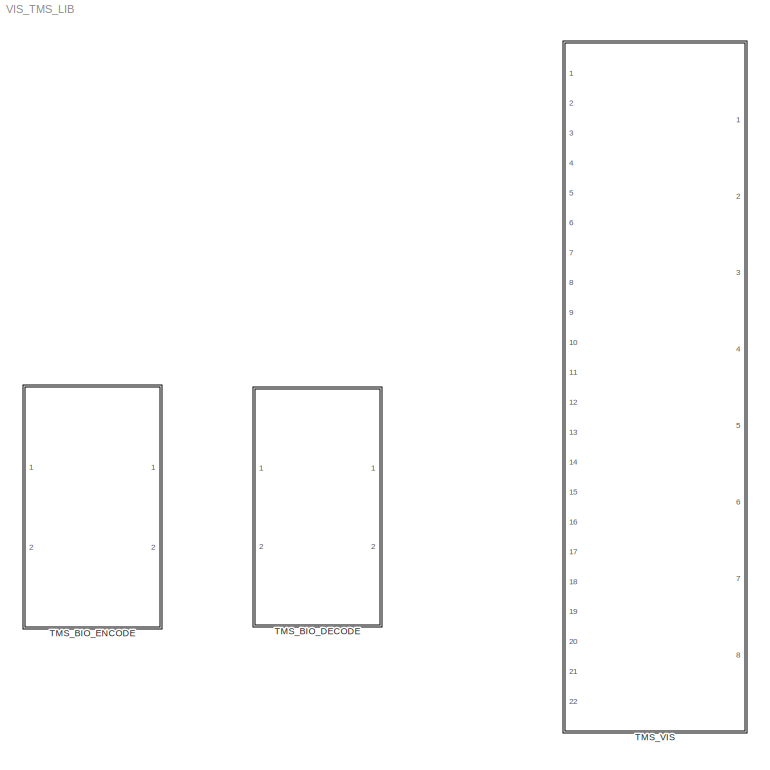
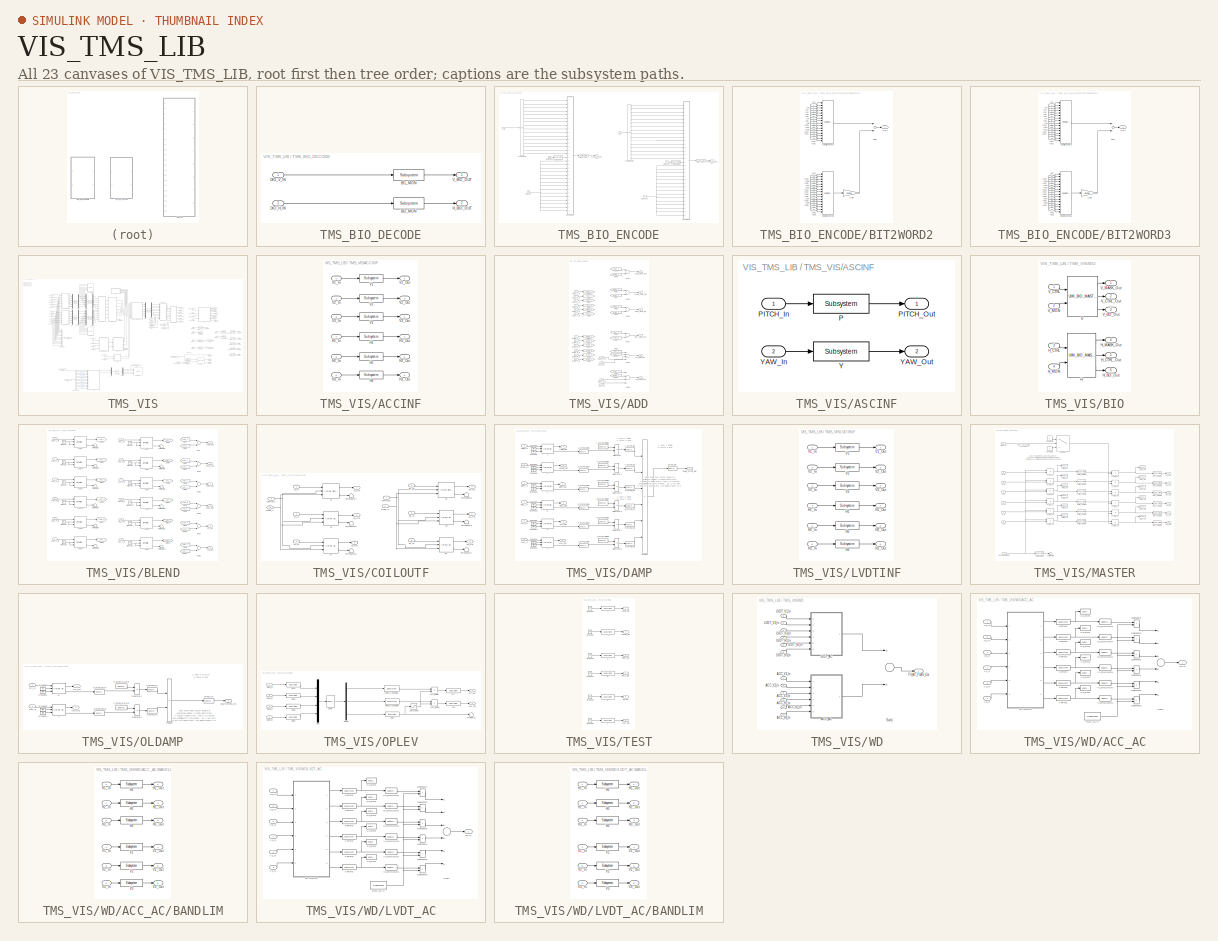
[diagram: thumbnail index - all 23 canvases of the model, root first then tree order]
MODEL VIS_TMS_LIB
KIND library
BLOCK [SubSystem] TMS_BIO_DECODE
  Ports = [2, 2]
  RequestExecContextInheritance = off
  SID = 607
  Variant = off
BLOCK [Reference] TMS_BIO_DECODE/BI1_MON  REF=cdsEpicsOut/Subsystem
  AttributesFormatString = %<Tag>
  Description = Purpose:                                          \nOutput a FE signal to an EPICS channel.           \n                                                  \nOperation:                                        \nTakes input value and passes it to EPICS record.  \n                                                  \nUsage:                                            \nName the part with the desired EPICS...<+14ch>  <repeated x50 — deduplicated; at blocks: BI1_MON, BI2_MON, DIO_0_OUT, DIO_1_OUT, DACKILL_BYPASS_TIMEMON, L_STATE_NOW, L_STATE_OK, P_STATE_NOW, P_STATE_OK, R_STATE_NOW, R_STATE_OK, STATE_OK, T_STATE_NOW, T_STATE_OK, V_STATE_NOW, V_STATE_OK, +23 more>
  Ports = [1, 1]
  SID = 611
  SourceBlock = cdsEpicsOut/Subsystem
  SourceType = SubSystem
  Tag = cdsEpicsOutput
BLOCK [Reference] TMS_BIO_DECODE/BI2_MON  REF=cdsEpicsOut/Subsystem
  AttributesFormatString = %<Tag>
  Ports = [1, 1]
  SID = 612
  SourceBlock = cdsEpicsOut/Subsystem
  SourceType = SubSystem
  Tag = cdsEpicsOutput
BLOCK [Inport] TMS_BIO_DECODE/DIO_H_IN
  IconDisplay = Port number
  Port = 2
  SID = 610
BLOCK [Inport] TMS_BIO_DECODE/DIO_V_IN
  IconDisplay = Port number
  SID = 609
BLOCK [Outport] TMS_BIO_DECODE/H_BIO_OUT
  IconDisplay = Port number
  Port = 2
  SID = 614
BLOCK [Outport] TMS_BIO_DECODE/V_BIO_OUT
  IconDisplay = Port number
  SID = 613
BLOCK [SubSystem] TMS_BIO_ENCODE
  Ports = [2, 2]
  RequestExecContextInheritance = off
  SID = 608
  Variant = off
BLOCK [SubSystem] TMS_BIO_ENCODE/BIT2WORD2
  Ports = [32, 1]
  RequestExecContextInheritance = off
  SID = 617
  Variant = off
BLOCK [Gain] TMS_BIO_ENCODE/BIT2WORD2/Gain
  Gain = 65536
  OutDataTypeStr = Inherit: Inherit via internal rule
  ParamDataTypeStr = Inherit: Inherit via internal rule
  SID = 650
  SaturateOnIntegerOverflow = off
BLOCK [Inport] TMS_BIO_ENCODE/BIT2WORD2/In1
  IconDisplay = Port number
  SID = 618
BLOCK [Inport] TMS_BIO_ENCODE/BIT2WORD2/In10
  IconDisplay = Port number
  Port = 10
  SID = 627
BLOCK [Inport] TMS_BIO_ENCODE/BIT2WORD2/In11
  IconDisplay = Port number
  Port = 11
  SID = 628
BLOCK [Inport] TMS_BIO_ENCODE/BIT2WORD2/In12
  IconDisplay = Port number
  Port = 12
  SID = 629
BLOCK [Inport] TMS_BIO_ENCODE/BIT2WORD2/In13
  IconDisplay = Port number
  Port = 13
  SID = 630
BLOCK [Inport] TMS_BIO_ENCODE/BIT2WORD2/In14
  IconDisplay = Port number
  Port = 14
  SID = 631
BLOCK [Inport] TMS_BIO_ENCODE/BIT2WORD2/In15
  IconDisplay = Port number
  Port = 15
  SID = 632
BLOCK [Inport] TMS_BIO_ENCODE/BIT2WORD2/In16
  IconDisplay = Port number
  Port = 16
  SID = 633
BLOCK [Inport] TMS_BIO_ENCODE/BIT2WORD2/In17
  IconDisplay = Port number
  Port = 17
  SID = 634
BLOCK [Inport] TMS_BIO_ENCODE/BIT2WORD2/In18
  IconDisplay = Port number
  Port = 18
  SID = 635
BLOCK [Inport] TMS_BIO_ENCODE/BIT2WORD2/In19
  IconDisplay = Port number
  Port = 19
  SID = 636
BLOCK [Inport] TMS_BIO_ENCODE/BIT2WORD2/In2
  IconDisplay = Port number
  Port = 2
  SID = 619
BLOCK [Inport] TMS_BIO_ENCODE/BIT2WORD2/In20
  IconDisplay = Port number
  Port = 20
  SID = 637
BLOCK [Inport] TMS_BIO_ENCODE/BIT2WORD2/In21
  IconDisplay = Port number
  Port = 21
  SID = 638
BLOCK [Inport] TMS_BIO_ENCODE/BIT2WORD2/In22
  IconDisplay = Port number
  Port = 22
  SID = 639
BLOCK [Inport] TMS_BIO_ENCODE/BIT2WORD2/In23
  IconDisplay = Port number
  Port = 23
  SID = 640
BLOCK [Inport] TMS_BIO_ENCODE/BIT2WORD2/In24
  IconDisplay = Port number
  Port = 24
  SID = 641
BLOCK [Inport] TMS_BIO_ENCODE/BIT2WORD2/In25
  IconDisplay = Port number
  Port = 25
  SID = 642
BLOCK [Inport] TMS_BIO_ENCODE/BIT2WORD2/In26
  IconDisplay = Port number
  Port = 26
  SID = 643
BLOCK [Inport] TMS_BIO_ENCODE/BIT2WORD2/In27
  IconDisplay = Port number
  Port = 27
  SID = 644
BLOCK [Inport] TMS_BIO_ENCODE/BIT2WORD2/In28
  IconDisplay = Port number
  Port = 28
  SID = 645
BLOCK [Inport] TMS_BIO_ENCODE/BIT2WORD2/In29
  IconDisplay = Port number
  Port = 29
  SID = 646
BLOCK [Inport] TMS_BIO_ENCODE/BIT2WORD2/In3
  IconDisplay = Port number
  Port = 3
  SID = 620
BLOCK [Inport] TMS_BIO_ENCODE/BIT2WORD2/In30
  IconDisplay = Port number
  Port = 30
  SID = 647
BLOCK [Inport] TMS_BIO_ENCODE/BIT2WORD2/In31
  IconDisplay = Port number
  Port = 31
  SID = 648
BLOCK [Inport] TMS_BIO_ENCODE/BIT2WORD2/In32
  IconDisplay = Port number
  Port = 32
  SID = 649
BLOCK [Inport] TMS_BIO_ENCODE/BIT2WORD2/In4
  IconDisplay = Port number
  Port = 4
  SID = 621
BLOCK [Inport] TMS_BIO_ENCODE/BIT2WORD2/In5
  IconDisplay = Port number
  Port = 5
  SID = 622
BLOCK [Inport] TMS_BIO_ENCODE/BIT2WORD2/In6
  IconDisplay = Port number
  Port = 6
  SID = 623
BLOCK [Inport] TMS_BIO_ENCODE/BIT2WORD2/In7
  IconDisplay = Port number
  Port = 7
  SID = 624
BLOCK [Inport] TMS_BIO_ENCODE/BIT2WORD2/In8
  IconDisplay = Port number
  Port = 8
  SID = 625
BLOCK [Inport] TMS_BIO_ENCODE/BIT2WORD2/In9
  IconDisplay = Port number
  Port = 9
  SID = 626
BLOCK [Outport] TMS_BIO_ENCODE/BIT2WORD2/Out1
  IconDisplay = Port number
  SID = 654
BLOCK [Sum] TMS_BIO_ENCODE/BIT2WORD2/Sum
  InputSameDT = off
  OutDataTypeStr = Inherit: Inherit via internal rule
  Ports = [2, 1]
  SID = 651
  SaturateOnIntegerOverflow = off
BLOCK [Reference] TMS_BIO_ENCODE/BIT2WORD2/cdsBit2Word  REF=cdsBit2Word/cdsBit2Word
  AttributesFormatString = %<Tag>
  Description = Forms single 16 bit integer from 16 0/1 inputs.
  Ports = [16, 1]
  SID = 652
  SourceBlock = cdsBit2Word/cdsBit2Word
  SourceType = SubSystem
  Tag = cdsBit2Word
BLOCK [Reference] TMS_BIO_ENCODE/BIT2WORD2/cdsBit2Word1  REF=cdsBit2Word/cdsBit2Word
  AttributesFormatString = %<Tag>
  Description = Forms single 16 bit integer from 16 0/1 inputs.
  Ports = [16, 1]
  SID = 653
  SourceBlock = cdsBit2Word/cdsBit2Word
  SourceType = SubSystem
  Tag = cdsBit2Word
BLOCK [SubSystem] TMS_BIO_ENCODE/BIT2WORD3
  Ports = [32, 1]
  RequestExecContextInheritance = off
  SID = 655
  Variant = off
BLOCK [Gain] TMS_BIO_ENCODE/BIT2WORD3/Gain
  Gain = 65536
  OutDataTypeStr = Inherit: Inherit via internal rule
  ParamDataTypeStr = Inherit: Inherit via internal rule
  SID = 688
  SaturateOnIntegerOverflow = off
BLOCK [Inport] TMS_BIO_ENCODE/BIT2WORD3/In1
  IconDisplay = Port number
  SID = 656
BLOCK [Inport] TMS_BIO_ENCODE/BIT2WORD3/In10
  IconDisplay = Port number
  Port = 10
  SID = 665
BLOCK [Inport] TMS_BIO_ENCODE/BIT2WORD3/In11
  IconDisplay = Port number
  Port = 11
  SID = 666
BLOCK [Inport] TMS_BIO_ENCODE/BIT2WORD3/In12
  IconDisplay = Port number
  Port = 12
  SID = 667
BLOCK [Inport] TMS_BIO_ENCODE/BIT2WORD3/In13
  IconDisplay = Port number
  Port = 13
  SID = 668
BLOCK [Inport] TMS_BIO_ENCODE/BIT2WORD3/In14
  IconDisplay = Port number
  Port = 14
  SID = 669
BLOCK [Inport] TMS_BIO_ENCODE/BIT2WORD3/In15
  IconDisplay = Port number
  Port = 15
  SID = 670
BLOCK [Inport] TMS_BIO_ENCODE/BIT2WORD3/In16
  IconDisplay = Port number
  Port = 16
  SID = 671
BLOCK [Inport] TMS_BIO_ENCODE/BIT2WORD3/In17
  IconDisplay = Port number
  Port = 17
  SID = 672
BLOCK [Inport] TMS_BIO_ENCODE/BIT2WORD3/In18
  IconDisplay = Port number
  Port = 18
  SID = 673
BLOCK [Inport] TMS_BIO_ENCODE/BIT2WORD3/In19
  IconDisplay = Port number
  Port = 19
  SID = 674
BLOCK [Inport] TMS_BIO_ENCODE/BIT2WORD3/In2
  IconDisplay = Port number
  Port = 2
  SID = 657
BLOCK [Inport] TMS_BIO_ENCODE/BIT2WORD3/In20
  IconDisplay = Port number
  Port = 20
  SID = 675
BLOCK [Inport] TMS_BIO_ENCODE/BIT2WORD3/In21
  IconDisplay = Port number
  Port = 21
  SID = 676
BLOCK [Inport] TMS_BIO_ENCODE/BIT2WORD3/In22
  IconDisplay = Port number
  Port = 22
  SID = 677
BLOCK [Inport] TMS_BIO_ENCODE/BIT2WORD3/In23
  IconDisplay = Port number
  Port = 23
  SID = 678
BLOCK [Inport] TMS_BIO_ENCODE/BIT2WORD3/In24
  IconDisplay = Port number
  Port = 24
  SID = 679
BLOCK [Inport] TMS_BIO_ENCODE/BIT2WORD3/In25
  IconDisplay = Port number
  Port = 25
  SID = 680
BLOCK [Inport] TMS_BIO_ENCODE/BIT2WORD3/In26
  IconDisplay = Port number
  Port = 26
  SID = 681
BLOCK [Inport] TMS_BIO_ENCODE/BIT2WORD3/In27
  IconDisplay = Port number
  Port = 27
  SID = 682
BLOCK [Inport] TMS_BIO_ENCODE/BIT2WORD3/In28
  IconDisplay = Port number
  Port = 28
  SID = 683
BLOCK [Inport] TMS_BIO_ENCODE/BIT2WORD3/In29
  IconDisplay = Port number
  Port = 29
  SID = 684
BLOCK [Inport] TMS_BIO_ENCODE/BIT2WORD3/In3
  IconDisplay = Port number
  Port = 3
  SID = 658
BLOCK [Inport] TMS_BIO_ENCODE/BIT2WORD3/In30
  IconDisplay = Port number
  Port = 30
  SID = 685
BLOCK [Inport] TMS_BIO_ENCODE/BIT2WORD3/In31
  IconDisplay = Port number
  Port = 31
  SID = 686
BLOCK [Inport] TMS_BIO_ENCODE/BIT2WORD3/In32
  IconDisplay = Port number
  Port = 32
  SID = 687
BLOCK [Inport] TMS_BIO_ENCODE/BIT2WORD3/In4
  IconDisplay = Port number
  Port = 4
  SID = 659
BLOCK [Inport] TMS_BIO_ENCODE/BIT2WORD3/In5
  IconDisplay = Port number
  Port = 5
  SID = 660
BLOCK [Inport] TMS_BIO_ENCODE/BIT2WORD3/In6
  IconDisplay = Port number
  Port = 6
  SID = 661
BLOCK [Inport] TMS_BIO_ENCODE/BIT2WORD3/In7
  IconDisplay = Port number
  Port = 7
  SID = 662
BLOCK [Inport] TMS_BIO_ENCODE/BIT2WORD3/In8
  IconDisplay = Port number
  Port = 8
  SID = 663
BLOCK [Inport] TMS_BIO_ENCODE/BIT2WORD3/In9
  IconDisplay = Port number
  Port = 9
  SID = 664
BLOCK [Outport] TMS_BIO_ENCODE/BIT2WORD3/Out1
  IconDisplay = Port number
  SID = 692
BLOCK [Sum] TMS_BIO_ENCODE/BIT2WORD3/Sum
  InputSameDT = off
  OutDataTypeStr = Inherit: Inherit via internal rule
  Ports = [2, 1]
  SID = 689
  SaturateOnIntegerOverflow = off
BLOCK [Reference] TMS_BIO_ENCODE/BIT2WORD3/cdsBit2Word  REF=cdsBit2Word/cdsBit2Word
  AttributesFormatString = %<Tag>
  Description = Forms single 16 bit integer from 16 0/1 inputs.
  Ports = [16, 1]
  SID = 690
  SourceBlock = cdsBit2Word/cdsBit2Word
  SourceType = SubSystem
  Tag = cdsBit2Word
BLOCK [Reference] TMS_BIO_ENCODE/BIT2WORD3/cdsBit2Word1  REF=cdsBit2Word/cdsBit2Word
  AttributesFormatString = %<Tag>
  Description = Forms single 16 bit integer from 16 0/1 inputs.
  Ports = [16, 1]
  SID = 691
  SourceBlock = cdsBit2Word/cdsBit2Word
  SourceType = SubSystem
  Tag = cdsBit2Word
BLOCK [Outport] TMS_BIO_ENCODE/CARD0_L32BIT_OUT
  IconDisplay = Port number
  SID = 703
BLOCK [Outport] TMS_BIO_ENCODE/CARD1_L32BIT_OUT
  IconDisplay = Port number
  Port = 2
  SID = 704
BLOCK [Reference] TMS_BIO_ENCODE/DIO_0_OUT  REF=cdsEpicsOut/Subsystem
  AttributesFormatString = %<Tag>
  Ports = [1, 1]
  SID = 693
  SourceBlock = cdsEpicsOut/Subsystem
  SourceType = SubSystem
  Tag = cdsEpicsOutput
BLOCK [Reference] TMS_BIO_ENCODE/DIO_1_OUT  REF=cdsEpicsOut/Subsystem
  AttributesFormatString = %<Tag>
  Ports = [1, 1]
  SID = 694
  SourceBlock = cdsEpicsOut/Subsystem
  SourceType = SubSystem
  Tag = cdsEpicsOutput
BLOCK [Ground] TMS_BIO_ENCODE/Ground2
  SID = 695
BLOCK [Ground] TMS_BIO_ENCODE/Ground26
  SID = 696
BLOCK [Ground] TMS_BIO_ENCODE/Ground66
  SID = 697
BLOCK [Ground] TMS_BIO_ENCODE/Ground67
  SID = 698
BLOCK [Inport] TMS_BIO_ENCODE/H_In
  IconDisplay = Port number
  Port = 2
  SID = 616
BLOCK [Reference] TMS_BIO_ENCODE/H_WD_RSET  REF=cdsEpicsBinIn/Subsystem
  AttributesFormatString = %<Tag>
  Description = Purpose:                                                                            \nCreate an EPICS binary (0 or 1) input channel to the FE realtime controls.          \n                                                                                    \nOperation:                                                                          \nOutputs value from an EPICS ai record. Value is binary i...<+252ch>  <repeated x4 — deduplicated; at blocks: H_WD_RSET, V_WD_RSET, COMMISH_STATUS, MASTERSWITCH>
  Ports = [1, 1]
  SID = 699
  SourceBlock = cdsEpicsBinIn/Subsystem
  SourceType = SubSystem
  Tag = cdsEpicsBinIn
BLOCK [Inport] TMS_BIO_ENCODE/V_In
  IconDisplay = Port number
  SID = 615
BLOCK [Reference] TMS_BIO_ENCODE/V_WD_RSET  REF=cdsEpicsBinIn/Subsystem
  AttributesFormatString = %<Tag>
  Ports = [1, 1]
  SID = 700
  SourceBlock = cdsEpicsBinIn/Subsystem
  SourceType = SubSystem
  Tag = cdsEpicsBinIn
BLOCK [Reference] TMS_BIO_ENCODE/cdsWord2Bit  REF=cdsWord2Bit/cdsWord2Bit
  AttributesFormatString = cdsWord2Bit
  Description = Generate 16 0/1 outputs from single 16-bit integer input
  Ports = [1, 16]
  SID = 701
  SourceBlock = cdsWord2Bit/cdsWord2Bit
  SourceType = SubSystem
  Tag = cdsWord2Bit
BLOCK [Reference] TMS_BIO_ENCODE/cdsWord2Bit1  REF=cdsWord2Bit/cdsWord2Bit
  AttributesFormatString = cdsWord2Bit
  Description = Generate 16 0/1 outputs from single 16-bit integer input
  Ports = [1, 16]
  SID = 702
  SourceBlock = cdsWord2Bit/cdsWord2Bit
  SourceType = SubSystem
  Tag = cdsWord2Bit
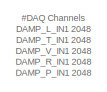
[diagram: TMS_VIS - part 1/6, top left region]
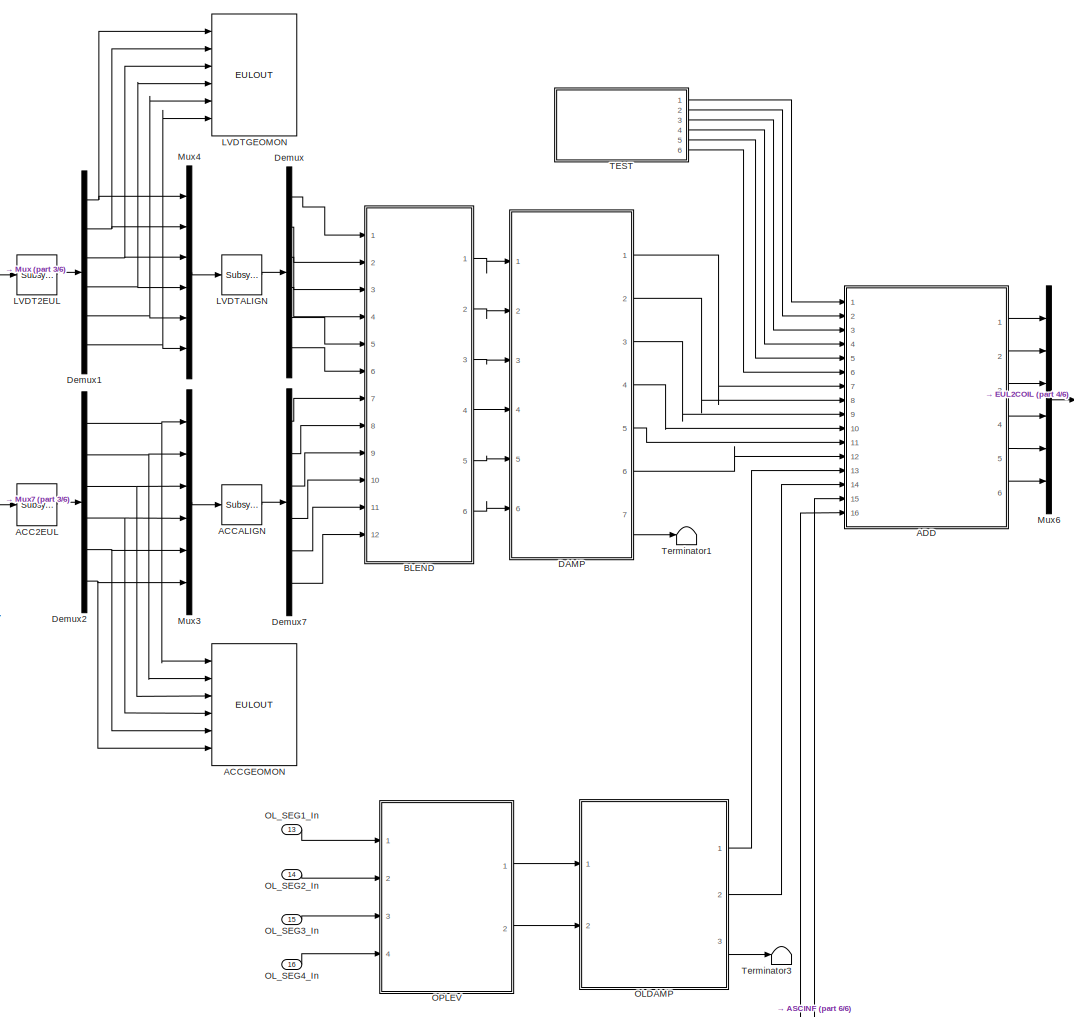
[diagram: TMS_VIS - part 2/6, central region]
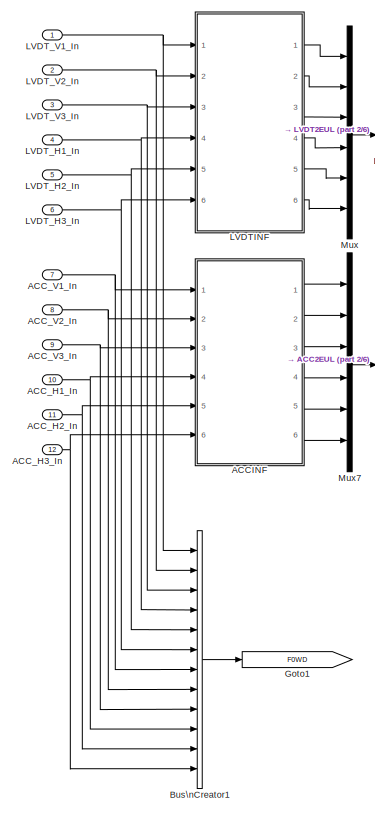
[diagram: TMS_VIS - part 3/6, middle left region]
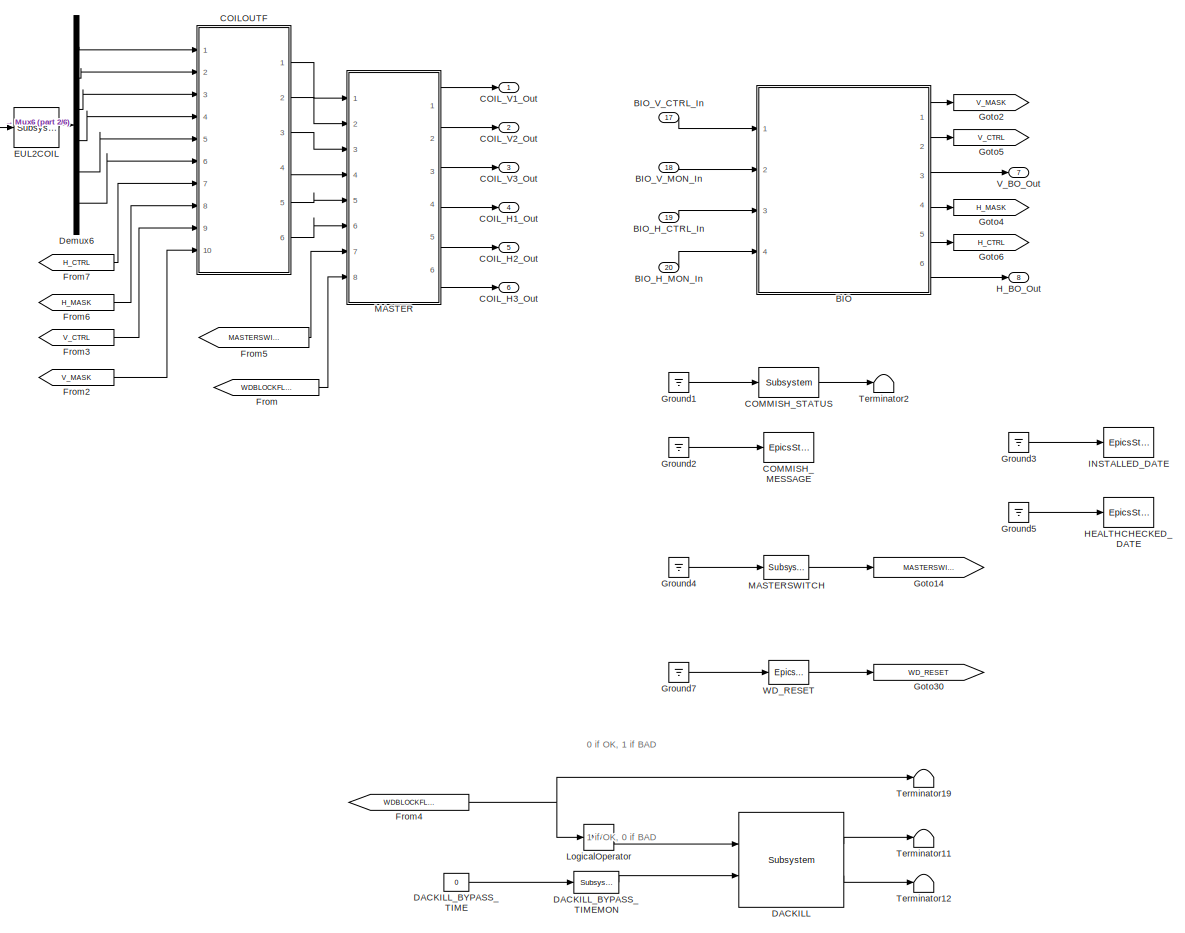
[diagram: TMS_VIS - part 4/6, middle right region]
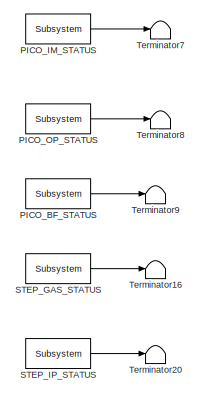
[diagram: TMS_VIS - part 5/6, middle right region]
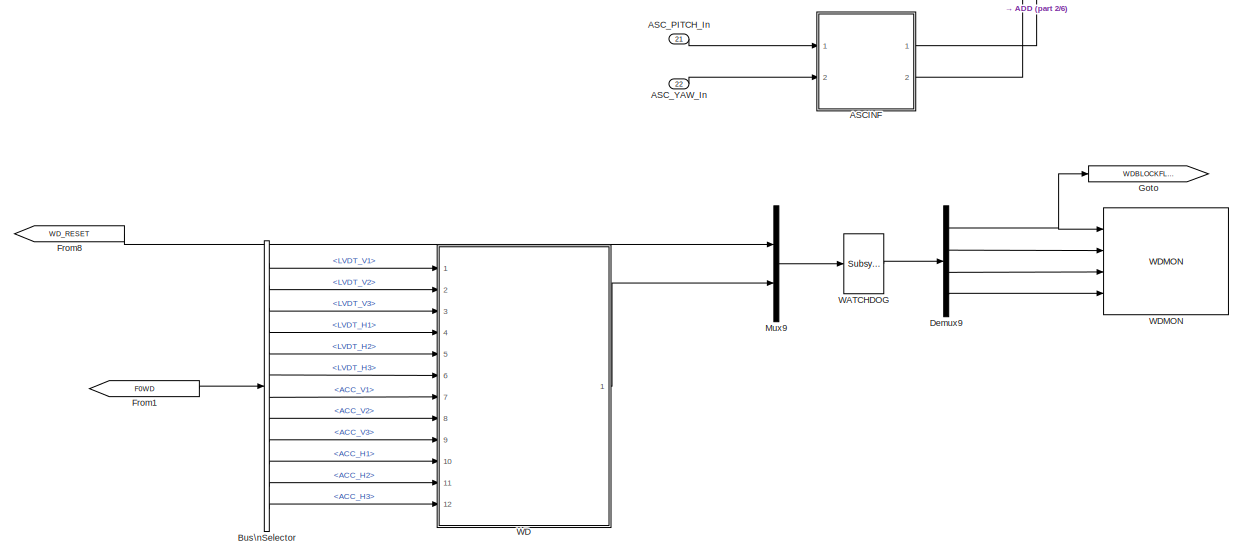
[diagram: TMS_VIS - part 6/6, bottom center region]
BLOCK [SubSystem] TMS_VIS
  Ports = [22, 8]
  RequestExecContextInheritance = off
  SID = 1
  Variant = off
BLOCK [Reference] TMS_VIS/ACC2EUL  REF=cdsMuxMatrix/Subsystem
  AttributesFormatString = %<Tag>
  Description = ADL=SUS_INMATRIX.adl \nSCRIPT=generate_KisselButton.py 4 5 #CHANNEL# > #TARGET_DIR#/#FULL_PART_NAME#_KB.adl
  Ports = [1, 1]
  SID = 22
  SourceBlock = cdsMuxMatrix/Subsystem
  SourceType = SubSystem
  Tag = cdsMuxMatrix
BLOCK [Reference] TMS_VIS/ACCALIGN  REF=cdsMuxMatrix/Subsystem
  AttributesFormatString = %<Tag>
  Description = ADL=SUS_INMATRIX.adl \nSCRIPT=generate_KisselButton.py 4 5 #CHANNEL# > #TARGET_DIR#/#FULL_PART_NAME#_KB.adl
  Ports = [1, 1]
  SID = 727
  SourceBlock = cdsMuxMatrix/Subsystem
  SourceType = SubSystem
  Tag = cdsMuxMatrix
BLOCK [Reference] TMS_VIS/ACCGEOMON  REF=VIS_LIB/EULOUT
  Ports = [6]
  SID = 729
  SourceBlock = VIS_LIB/EULOUT
  SourceType = SubSystem
BLOCK [SubSystem] TMS_VIS/ACCINF
  Ports = [6, 6]
  RequestExecContextInheritance = off
  SID = 23
  Variant = off
BLOCK [Reference] TMS_VIS/ACCINF/H1  REF=cdsFilt/Subsystem
  AttributesFormatString = %<Tag>
  Description = Purpose:                                                                                                                                                                                                                                  \nStandard CDS IIR filter module.                                                                                                                                     ...<+1302ch>  <repeated x39 — deduplicated; at blocks: H1, H2, H3, V1, V2, V3, P, Y, PIT, SEG1, SEG2, SEG3, SEG4, SUM, YAW, L, +3 more>
  Ports = [1, 1]
  SID = 30
  SourceBlock = cdsFilt/Subsystem
  SourceType = SubSystem
  Tag = cdsFilt
BLOCK [Inport] TMS_VIS/ACCINF/H1_In
  IconDisplay = Port number
  Port = 4
  SID = 27
BLOCK [Outport] TMS_VIS/ACCINF/H1_Out
  IconDisplay = Port number
  Port = 4
  SID = 39
BLOCK [Reference] TMS_VIS/ACCINF/H2  REF=cdsFilt/Subsystem
  AttributesFormatString = %<Tag>
  Ports = [1, 1]
  SID = 31
  SourceBlock = cdsFilt/Subsystem
  SourceType = SubSystem
  Tag = cdsFilt
BLOCK [Inport] TMS_VIS/ACCINF/H2_In
  IconDisplay = Port number
  Port = 5
  SID = 28
BLOCK [Outport] TMS_VIS/ACCINF/H2_Out
  IconDisplay = Port number
  Port = 5
  SID = 40
BLOCK [Reference] TMS_VIS/ACCINF/H3  REF=cdsFilt/Subsystem
  AttributesFormatString = %<Tag>
  Ports = [1, 1]
  SID = 32
  SourceBlock = cdsFilt/Subsystem
  SourceType = SubSystem
  Tag = cdsFilt
BLOCK [Inport] TMS_VIS/ACCINF/H3_In
  IconDisplay = Port number
  Port = 6
  SID = 29
BLOCK [Outport] TMS_VIS/ACCINF/H3_Out
  IconDisplay = Port number
  Port = 6
  SID = 41
BLOCK [Reference] TMS_VIS/ACCINF/V1  REF=cdsFilt/Subsystem
  AttributesFormatString = %<Tag>
  Ports = [1, 1]
  SID = 33
  SourceBlock = cdsFilt/Subsystem
  SourceType = SubSystem
  Tag = cdsFilt
BLOCK [Inport] TMS_VIS/ACCINF/V1_In
  IconDisplay = Port number
  SID = 24
BLOCK [Outport] TMS_VIS/ACCINF/V1_Out
  IconDisplay = Port number
  SID = 36
BLOCK [Reference] TMS_VIS/ACCINF/V2  REF=cdsFilt/Subsystem
  AttributesFormatString = %<Tag>
  Ports = [1, 1]
  SID = 34
  SourceBlock = cdsFilt/Subsystem
  SourceType = SubSystem
  Tag = cdsFilt
BLOCK [Inport] TMS_VIS/ACCINF/V2_In
  IconDisplay = Port number
  Port = 2
  SID = 25
BLOCK [Outport] TMS_VIS/ACCINF/V2_Out
  IconDisplay = Port number
  Port = 2
  SID = 37
BLOCK [Reference] TMS_VIS/ACCINF/V3  REF=cdsFilt/Subsystem
  AttributesFormatString = %<Tag>
  Ports = [1, 1]
  SID = 35
  SourceBlock = cdsFilt/Subsystem
  SourceType = SubSystem
  Tag = cdsFilt
BLOCK [Inport] TMS_VIS/ACCINF/V3_In
  IconDisplay = Port number
  Port = 3
  SID = 26
BLOCK [Outport] TMS_VIS/ACCINF/V3_Out
  IconDisplay = Port number
  Port = 3
  SID = 38
BLOCK [Inport] TMS_VIS/ACC_H1_In
  IconDisplay = Port number
  Port = 10
  SID = 11
BLOCK [Inport] TMS_VIS/ACC_H2_In
  IconDisplay = Port number
  Port = 11
  SID = 12
BLOCK [Inport] TMS_VIS/ACC_H3_In
  IconDisplay = Port number
  Port = 12
  SID = 13
BLOCK [Inport] TMS_VIS/ACC_V1_In
  IconDisplay = Port number
  Port = 7
  SID = 8
BLOCK [Inport] TMS_VIS/ACC_V2_In
  IconDisplay = Port number
  Port = 8
  SID = 9
BLOCK [Inport] TMS_VIS/ACC_V3_In
  IconDisplay = Port number
  Port = 9
  SID = 10
BLOCK [SubSystem] TMS_VIS/ADD
  Ports = [16, 6]
  RequestExecContextInheritance = off
  SID = 42
  Variant = off
BLOCK [Inport] TMS_VIS/ADD/DAMP_L_In
  IconDisplay = Port number
  Port = 7
  SID = 49
BLOCK [Inport] TMS_VIS/ADD/DAMP_P_In
  IconDisplay = Port number
  Port = 11
  SID = 53
BLOCK [Inport] TMS_VIS/ADD/DAMP_R_In
  IconDisplay = Port number
  Port = 10
  SID = 52
BLOCK [Inport] TMS_VIS/ADD/DAMP_T_In
  IconDisplay = Port number
  Port = 8
  SID = 50
BLOCK [Inport] TMS_VIS/ADD/DAMP_V_In
  IconDisplay = Port number
  Port = 9
  SID = 51
BLOCK [Inport] TMS_VIS/ADD/DAMP_Y_In
  IconDisplay = Port number
  Port = 12
  SID = 54
BLOCK [From] TMS_VIS/ADD/From
  GotoTag = TEST_L
  SID = 57
BLOCK [From] TMS_VIS/ADD/From1
  GotoTag = TEST_T
  SID = 58
BLOCK [From] TMS_VIS/ADD/From10
  GotoTag = DAMP_P
  SID = 59
BLOCK [From] TMS_VIS/ADD/From11
  GotoTag = DAMP_Y
  SID = 60
BLOCK [From] TMS_VIS/ADD/From2
  GotoTag = TEST_V
  SID = 61
BLOCK [From] TMS_VIS/ADD/From3
  GotoTag = TEST_R
  SID = 62
BLOCK [From] TMS_VIS/ADD/From4
  GotoTag = TEST_P
  SID = 63
BLOCK [From] TMS_VIS/ADD/From5
  GotoTag = TEST_Y
  SID = 64
BLOCK [From] TMS_VIS/ADD/From6
  GotoTag = DAMP_L
  SID = 65
BLOCK [From] TMS_VIS/ADD/From7
  GotoTag = DAMP_T
  SID = 66
BLOCK [From] TMS_VIS/ADD/From8
  GotoTag = DAMP_V
  SID = 67
BLOCK [From] TMS_VIS/ADD/From9
  GotoTag = DAMP_R
  SID = 68
BLOCK [Goto] TMS_VIS/ADD/Goto1
  GotoTag = TEST_R
  SID = 69
BLOCK [Goto] TMS_VIS/ADD/Goto12
  GotoTag = DAMP_L
  SID = 70
BLOCK [Goto] TMS_VIS/ADD/Goto14
  GotoTag = DAMP_V
  SID = 71
BLOCK [Goto] TMS_VIS/ADD/Goto15
  GotoTag = DAMP_T
  SID = 72
BLOCK [Goto] TMS_VIS/ADD/Goto2
  GotoTag = TEST_Y
  SID = 73
BLOCK [Goto] TMS_VIS/ADD/Goto3
  GotoTag = TEST_L
  SID = 74
BLOCK [Goto] TMS_VIS/ADD/Goto4
  GotoTag = TEST_P
  SID = 75
BLOCK [Goto] TMS_VIS/ADD/Goto5
  GotoTag = DAMP_R
  SID = 76
BLOCK [Goto] TMS_VIS/ADD/Goto6
  GotoTag = DAMP_Y
  SID = 77
BLOCK [Goto] TMS_VIS/ADD/Goto7
  GotoTag = TEST_V
  SID = 78
BLOCK [Goto] TMS_VIS/ADD/Goto8
  GotoTag = TEST_T
  SID = 79
BLOCK [Goto] TMS_VIS/ADD/Goto9
  GotoTag = DAMP_P
  SID = 80
BLOCK [Inport] TMS_VIS/ADD/ISC_P_In
  IconDisplay = Port number
  Port = 15
  SID = 719
BLOCK [Inport] TMS_VIS/ADD/ISC_Y_In
  IconDisplay = Port number
  Port = 16
  SID = 720
BLOCK [Outport] TMS_VIS/ADD/LONG_MAIN_Out
  IconDisplay = Port number
  SID = 87
BLOCK [Outport] TMS_VIS/ADD/PIT_MAIN_Out
  IconDisplay = Port number
  Port = 5
  SID = 91
BLOCK [Outport] TMS_VIS/ADD/ROLL_MAIN_Out
  IconDisplay = Port number
  Port = 4
  SID = 90
BLOCK [Sum] TMS_VIS/ADD/Sum1
  InputSameDT = off
  OutDataTypeStr = Inherit: Inherit via internal rule
  Ports = [2, 1]
  SID = 81
  SaturateOnIntegerOverflow = off
BLOCK [Sum] TMS_VIS/ADD/Sum2
  InputSameDT = off
  Inputs = ++++
  OutDataTypeStr = Inherit: Inherit via internal rule
  Ports = [4, 1]
  SID = 82
  SaturateOnIntegerOverflow = off
BLOCK [Sum] TMS_VIS/ADD/Sum3
  InputSameDT = off
  Inputs = ++++
  OutDataTypeStr = Inherit: Inherit via internal rule
  Ports = [4, 1]
  SID = 83
  SaturateOnIntegerOverflow = off
BLOCK [Sum] TMS_VIS/ADD/Sum4
  InputSameDT = off
  OutDataTypeStr = Inherit: Inherit via internal rule
  Ports = [2, 1]
  SID = 84
  SaturateOnIntegerOverflow = off
BLOCK [Sum] TMS_VIS/ADD/Sum5
  InputSameDT = off
  OutDataTypeStr = Inherit: Inherit via internal rule
  Ports = [2, 1]
  SID = 85
  SaturateOnIntegerOverflow = off
BLOCK [Sum] TMS_VIS/ADD/Sum6
  InputSameDT = off
  OutDataTypeStr = Inherit: Inherit via internal rule
  Ports = [2, 1]
  SID = 86
  SaturateOnIntegerOverflow = off
BLOCK [Inport] TMS_VIS/ADD/TEST_L_In
  IconDisplay = Port number
  SID = 43
BLOCK [Inport] TMS_VIS/ADD/TEST_P_In
  IconDisplay = Port number
  Port = 5
  SID = 47
BLOCK [Inport] TMS_VIS/ADD/TEST_R_In
  IconDisplay = Port number
  Port = 4
  SID = 46
BLOCK [Inport] TMS_VIS/ADD/TEST_T_In
  IconDisplay = Port number
  Port = 2
  SID = 44
BLOCK [Inport] TMS_VIS/ADD/TEST_V_In
  IconDisplay = Port number
  Port = 3
  SID = 45
BLOCK [Inport] TMS_VIS/ADD/TEST_Y_In
  IconDisplay = Port number
  Port = 6
  SID = 48
BLOCK [Outport] TMS_VIS/ADD/TRANS_MAIN_Out
  IconDisplay = Port number
  Port = 2
  SID = 88
BLOCK [Outport] TMS_VIS/ADD/VERT_MAIN_Out
  IconDisplay = Port number
  Port = 3
  SID = 89
BLOCK [Outport] TMS_VIS/ADD/YAW_MAIN_Out
  IconDisplay = Port number
  Port = 6
  SID = 92
BLOCK [Inport] TMS_VIS/ADD/oplev_P_In
  IconDisplay = Port number
  Port = 13
  SID = 55
BLOCK [Inport] TMS_VIS/ADD/oplev_Y_In
  IconDisplay = Port number
  Port = 14
  SID = 56
BLOCK [SubSystem] TMS_VIS/ASCINF
  Ports = [2, 2]
  RequestExecContextInheritance = off
  SID = 709
  Variant = off
BLOCK [Reference] TMS_VIS/ASCINF/P  REF=cdsFilt/Subsystem
  AttributesFormatString = %<Tag>
  Ports = [1, 1]
  SID = 714
  SourceBlock = cdsFilt/Subsystem
  SourceType = SubSystem
  Tag = cdsFilt
BLOCK [Inport] TMS_VIS/ASCINF/PITCH_In
  IconDisplay = Port number
  SID = 711
BLOCK [Outport] TMS_VIS/ASCINF/PITCH_Out
  IconDisplay = Port number
  SID = 717
BLOCK [Reference] TMS_VIS/ASCINF/Y  REF=cdsFilt/Subsystem
  AttributesFormatString = %<Tag>
  Ports = [1, 1]
  SID = 715
  SourceBlock = cdsFilt/Subsystem
  SourceType = SubSystem
  Tag = cdsFilt
BLOCK [Inport] TMS_VIS/ASCINF/YAW_In
  IconDisplay = Port number
  Port = 2
  SID = 712
BLOCK [Outport] TMS_VIS/ASCINF/YAW_Out
  IconDisplay = Port number
  Port = 2
  SID = 718
BLOCK [Inport] TMS_VIS/ASC_PITCH_In
  IconDisplay = Port number
  Port = 21
  SID = 707
BLOCK [Inport] TMS_VIS/ASC_YAW_In
  IconDisplay = Port number
  Port = 22
  SID = 708
BLOCK [SubSystem] TMS_VIS/BIO
  Ports = [4, 6]
  RequestExecContextInheritance = off
  SID = 94
  Variant = off
BLOCK [Reference] TMS_VIS/BIO/H  REF=STATE_BIO_MASTER/UIM_BIO_MASTER
  Ports = [2, 3]
  SID = 99
  SourceBlock = STATE_BIO_MASTER/UIM_BIO_MASTER
  SourceType = SubSystem
BLOCK [Outport] TMS_VIS/BIO/H_BO_Out
  IconDisplay = Port number
  Port = 6
  SID = 106
BLOCK [Inport] TMS_VIS/BIO/H_CTRL
  IconDisplay = Port number
  Port = 3
  SID = 97
BLOCK [Outport] TMS_VIS/BIO/H_CTRL_Out
  IconDisplay = Port number
  Port = 5
  SID = 105
BLOCK [Outport] TMS_VIS/BIO/H_MASK_Out
  IconDisplay = Port number
  Port = 4
  SID = 104
BLOCK [Inport] TMS_VIS/BIO/H_MON
  IconDisplay = Port number
  Port = 4
  SID = 98
BLOCK [Reference] TMS_VIS/BIO/V  REF=STATE_BIO_MASTER/UIM_BIO_MASTER
  Ports = [2, 3]
  SID = 100
  SourceBlock = STATE_BIO_MASTER/UIM_BIO_MASTER
  SourceType = SubSystem
BLOCK [Outport] TMS_VIS/BIO/V_BO_Out
  IconDisplay = Port number
  Port = 3
  SID = 103
BLOCK [Inport] TMS_VIS/BIO/V_CTRL
  IconDisplay = Port number
  SID = 95
BLOCK [Outport] TMS_VIS/BIO/V_CTRL_Out
  IconDisplay = Port number
  Port = 2
  SID = 102
BLOCK [Outport] TMS_VIS/BIO/V_MASK_Out
  IconDisplay = Port number
  SID = 101
BLOCK [Inport] TMS_VIS/BIO/V_MON
  IconDisplay = Port number
  Port = 2
  SID = 96
BLOCK [Inport] TMS_VIS/BIO_H_CTRL_In
  IconDisplay = Port number
  Port = 19
  SID = 20
BLOCK [Inport] TMS_VIS/BIO_H_MON_In
  IconDisplay = Port number
  Port = 20
  SID = 21
BLOCK [Inport] TMS_VIS/BIO_V_CTRL_In
  IconDisplay = Port number
  Port = 17
  SID = 18
BLOCK [Inport] TMS_VIS/BIO_V_MON_In
  IconDisplay = Port number
  Port = 18
  SID = 19
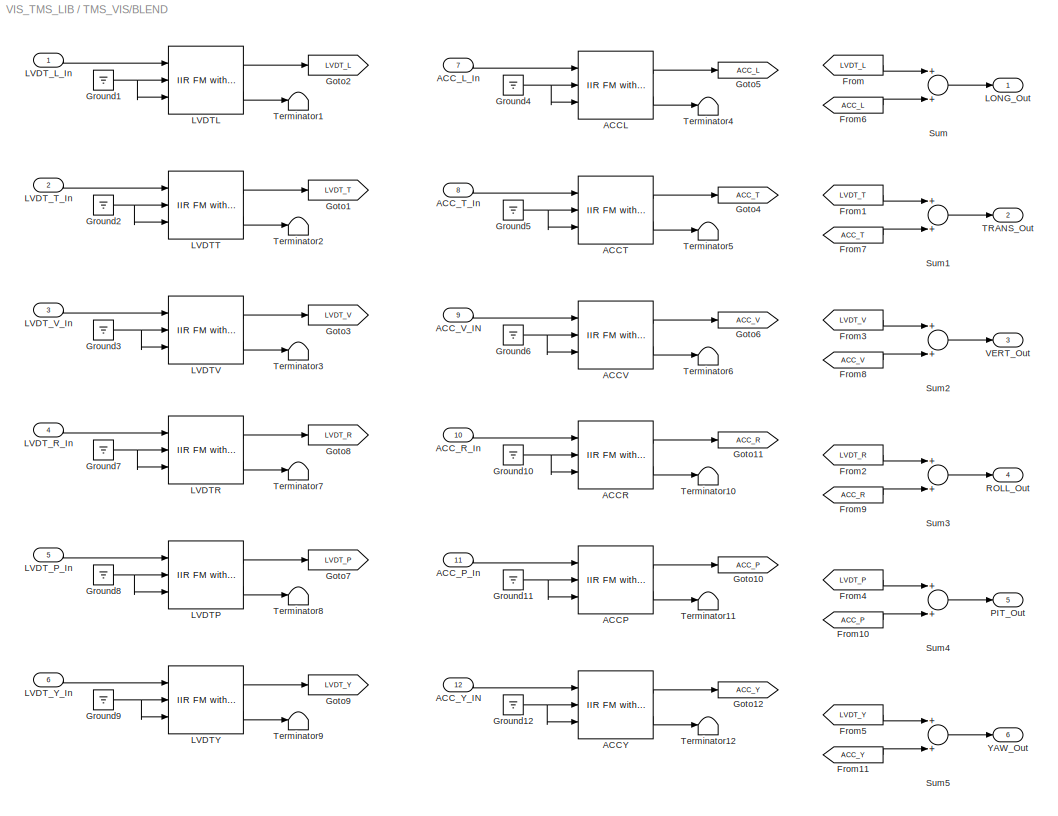
BLOCK [SubSystem] TMS_VIS/BLEND
  Ports = [12, 6]
  RequestExecContextInheritance = off
  SID = 107
  Variant = off
BLOCK [Reference] TMS_VIS/BLEND/ACCL  REF=cdsFiltCtrl/IIR FM with control
  AttributesFormatString = %<Tag>
  Description = cdsFiltCntrl is the standard IIR filter module (exactly the same as cdsFilt) but with added control data output 'Ctrl'. Filter module digital signal output appears on the first output, which is called 'Val'. 'Ctrl' output has a bit pattern encoding the state of filter's on/off switches (FM1 through FM10). The bit values are:\n                                                                        ...<+4621ch>  <repeated x26 — deduplicated; at blocks: ACCL, ACCP, ACCR, ACCT, ACCV, ACCY, LVDTL, LVDTP, LVDTR, LVDTT, LVDTV, LVDTY, H1, H2, H3, V1, +8 more>
  Ports = [3, 2]
  SID = 120
  SourceBlock = cdsFiltCtrl/IIR FM with control
  SourceType = SubSystem
  Tag = cdsFiltCtrl
BLOCK [Reference] TMS_VIS/BLEND/ACCP  REF=cdsFiltCtrl/IIR FM with control
  AttributesFormatString = %<Tag>
  Ports = [3, 2]
  SID = 121
  SourceBlock = cdsFiltCtrl/IIR FM with control
  SourceType = SubSystem
  Tag = cdsFiltCtrl
BLOCK [Reference] TMS_VIS/BLEND/ACCR  REF=cdsFiltCtrl/IIR FM with control
  AttributesFormatString = %<Tag>
  Ports = [3, 2]
  SID = 122
  SourceBlock = cdsFiltCtrl/IIR FM with control
  SourceType = SubSystem
  Tag = cdsFiltCtrl
BLOCK [Reference] TMS_VIS/BLEND/ACCT  REF=cdsFiltCtrl/IIR FM with control
  AttributesFormatString = %<Tag>
  Ports = [3, 2]
  SID = 123
  SourceBlock = cdsFiltCtrl/IIR FM with control
  SourceType = SubSystem
  Tag = cdsFiltCtrl
BLOCK [Reference] TMS_VIS/BLEND/ACCV  REF=cdsFiltCtrl/IIR FM with control
  AttributesFormatString = %<Tag>
  Ports = [3, 2]
  SID = 124
  SourceBlock = cdsFiltCtrl/IIR FM with control
  SourceType = SubSystem
  Tag = cdsFiltCtrl
BLOCK [Reference] TMS_VIS/BLEND/ACCY  REF=cdsFiltCtrl/IIR FM with control
  AttributesFormatString = %<Tag>
  Ports = [3, 2]
  SID = 125
  SourceBlock = cdsFiltCtrl/IIR FM with control
  SourceType = SubSystem
  Tag = cdsFiltCtrl
BLOCK [Inport] TMS_VIS/BLEND/ACC_L_In
  IconDisplay = Port number
  Port = 7
  SID = 114
BLOCK [Inport] TMS_VIS/BLEND/ACC_P_In
  IconDisplay = Port number
  Port = 11
  SID = 118
BLOCK [Inport] TMS_VIS/BLEND/ACC_R_In
  IconDisplay = Port number
  Port = 10
  SID = 117
BLOCK [Inport] TMS_VIS/BLEND/ACC_T_In
  IconDisplay = Port number
  Port = 8
  SID = 115
BLOCK [Inport] TMS_VIS/BLEND/ACC_V_IN
  IconDisplay = Port number
  Port = 9
  SID = 116
BLOCK [Inport] TMS_VIS/BLEND/ACC_Y_IN
  IconDisplay = Port number
  Port = 12
  SID = 119
BLOCK [From] TMS_VIS/BLEND/From
  GotoTag = LVDT_L
  SID = 126
BLOCK [From] TMS_VIS/BLEND/From1
  GotoTag = LVDT_T
  SID = 127
BLOCK [From] TMS_VIS/BLEND/From10
  GotoTag = ACC_P
  SID = 128
BLOCK [From] TMS_VIS/BLEND/From11
  GotoTag = ACC_Y
  SID = 129
BLOCK [From] TMS_VIS/BLEND/From2
  GotoTag = LVDT_R
  SID = 130
BLOCK [From] TMS_VIS/BLEND/From3
  GotoTag = LVDT_V
  SID = 131
BLOCK [From] TMS_VIS/BLEND/From4
  GotoTag = LVDT_P
  SID = 132
BLOCK [From] TMS_VIS/BLEND/From5
  GotoTag = LVDT_Y
  SID = 133
BLOCK [From] TMS_VIS/BLEND/From6
  GotoTag = ACC_L
  SID = 134
BLOCK [From] TMS_VIS/BLEND/From7
  GotoTag = ACC_T
  SID = 135
BLOCK [From] TMS_VIS/BLEND/From8
  GotoTag = ACC_V
  SID = 136
BLOCK [From] TMS_VIS/BLEND/From9
  GotoTag = ACC_R
  SID = 137
BLOCK [Goto] TMS_VIS/BLEND/Goto1
  GotoTag = LVDT_T
  SID = 138
BLOCK [Goto] TMS_VIS/BLEND/Goto10
  GotoTag = ACC_P
  SID = 139
BLOCK [Goto] TMS_VIS/BLEND/Goto11
  GotoTag = ACC_R
  SID = 140
BLOCK [Goto] TMS_VIS/BLEND/Goto12
  GotoTag = ACC_Y
  SID = 141
BLOCK [Goto] TMS_VIS/BLEND/Goto2
  GotoTag = LVDT_L
  SID = 142
BLOCK [Goto] TMS_VIS/BLEND/Goto3
  GotoTag = LVDT_V
  SID = 143
BLOCK [Goto] TMS_VIS/BLEND/Goto4
  GotoTag = ACC_T
  SID = 144
BLOCK [Goto] TMS_VIS/BLEND/Goto5
  GotoTag = ACC_L
  SID = 145
BLOCK [Goto] TMS_VIS/BLEND/Goto6
  GotoTag = ACC_V
  SID = 146
BLOCK [Goto] TMS_VIS/BLEND/Goto7
  GotoTag = LVDT_P
  SID = 147
BLOCK [Goto] TMS_VIS/BLEND/Goto8
  GotoTag = LVDT_R
  SID = 148
BLOCK [Goto] TMS_VIS/BLEND/Goto9
  GotoTag = LVDT_Y
  SID = 149
BLOCK [Ground] TMS_VIS/BLEND/Ground1
  SID = 150
BLOCK [Ground] TMS_VIS/BLEND/Ground10
  SID = 151
BLOCK [Ground] TMS_VIS/BLEND/Ground11
  SID = 152
BLOCK [Ground] TMS_VIS/BLEND/Ground12
  SID = 153
BLOCK [Ground] TMS_VIS/BLEND/Ground2
  SID = 154
BLOCK [Ground] TMS_VIS/BLEND/Ground3
  SID = 155
BLOCK [Ground] TMS_VIS/BLEND/Ground4
  SID = 156
BLOCK [Ground] TMS_VIS/BLEND/Ground5
  SID = 157
BLOCK [Ground] TMS_VIS/BLEND/Ground6
  SID = 158
BLOCK [Ground] TMS_VIS/BLEND/Ground7
  SID = 159
BLOCK [Ground] TMS_VIS/BLEND/Ground8
  SID = 160
BLOCK [Ground] TMS_VIS/BLEND/Ground9
  SID = 161
BLOCK [Outport] TMS_VIS/BLEND/LONG_Out
  IconDisplay = Port number
  SID = 186
BLOCK [Reference] TMS_VIS/BLEND/LVDTL  REF=cdsFiltCtrl/IIR FM with control
  AttributesFormatString = %<Tag>
  Ports = [3, 2]
  SID = 162
  SourceBlock = cdsFiltCtrl/IIR FM with control
  SourceType = SubSystem
  Tag = cdsFiltCtrl
BLOCK [Reference] TMS_VIS/BLEND/LVDTP  REF=cdsFiltCtrl/IIR FM with control
  AttributesFormatString = %<Tag>
  Ports = [3, 2]
  SID = 163
  SourceBlock = cdsFiltCtrl/IIR FM with control
  SourceType = SubSystem
  Tag = cdsFiltCtrl
BLOCK [Reference] TMS_VIS/BLEND/LVDTR  REF=cdsFiltCtrl/IIR FM with control
  AttributesFormatString = %<Tag>
  Ports = [3, 2]
  SID = 164
  SourceBlock = cdsFiltCtrl/IIR FM with control
  SourceType = SubSystem
  Tag = cdsFiltCtrl
BLOCK [Reference] TMS_VIS/BLEND/LVDTT  REF=cdsFiltCtrl/IIR FM with control
  AttributesFormatString = %<Tag>
  Ports = [3, 2]
  SID = 165
  SourceBlock = cdsFiltCtrl/IIR FM with control
  SourceType = SubSystem
  Tag = cdsFiltCtrl
BLOCK [Reference] TMS_VIS/BLEND/LVDTV  REF=cdsFiltCtrl/IIR FM with control
  AttributesFormatString = %<Tag>
  Ports = [3, 2]
  SID = 166
  SourceBlock = cdsFiltCtrl/IIR FM with control
  SourceType = SubSystem
  Tag = cdsFiltCtrl
BLOCK [Reference] TMS_VIS/BLEND/LVDTY  REF=cdsFiltCtrl/IIR FM with control
  AttributesFormatString = %<Tag>
  Ports = [3, 2]
  SID = 167
  SourceBlock = cdsFiltCtrl/IIR FM with control
  SourceType = SubSystem
  Tag = cdsFiltCtrl
BLOCK [Inport] TMS_VIS/BLEND/LVDT_L_In
  IconDisplay = Port number
  SID = 108
BLOCK [Inport] TMS_VIS/BLEND/LVDT_P_In
  IconDisplay = Port number
  Port = 5
  SID = 112
BLOCK [Inport] TMS_VIS/BLEND/LVDT_R_In
  IconDisplay = Port number
  Port = 4
  SID = 111
BLOCK [Inport] TMS_VIS/BLEND/LVDT_T_In
  IconDisplay = Port number
  Port = 2
  SID = 109
BLOCK [Inport] TMS_VIS/BLEND/LVDT_V_In
  IconDisplay = Port number
  Port = 3
  SID = 110
BLOCK [Inport] TMS_VIS/BLEND/LVDT_Y_In
  IconDisplay = Port number
  Port = 6
  SID = 113
BLOCK [Outport] TMS_VIS/BLEND/PIT_Out
  IconDisplay = Port number
  Port = 5
  SID = 190
BLOCK [Outport] TMS_VIS/BLEND/ROLL_Out
  IconDisplay = Port number
  Port = 4
  SID = 189
BLOCK [Sum] TMS_VIS/BLEND/Sum
  InputSameDT = off
  OutDataTypeStr = Inherit: Inherit via internal rule
  Ports = [2, 1]
  SID = 168
  SaturateOnIntegerOverflow = off
BLOCK [Sum] TMS_VIS/BLEND/Sum1
  InputSameDT = off
  OutDataTypeStr = Inherit: Inherit via internal rule
  Ports = [2, 1]
  SID = 169
  SaturateOnIntegerOverflow = off
BLOCK [Sum] TMS_VIS/BLEND/Sum2
  InputSameDT = off
  OutDataTypeStr = Inherit: Inherit via internal rule
  Ports = [2, 1]
  SID = 170
  SaturateOnIntegerOverflow = off
BLOCK [Sum] TMS_VIS/BLEND/Sum3
  InputSameDT = off
  OutDataTypeStr = Inherit: Inherit via internal rule
  Ports = [2, 1]
  SID = 171
  SaturateOnIntegerOverflow = off
BLOCK [Sum] TMS_VIS/BLEND/Sum4
  InputSameDT = off
  OutDataTypeStr = Inherit: Inherit via internal rule
  Ports = [2, 1]
  SID = 172
  SaturateOnIntegerOverflow = off
BLOCK [Sum] TMS_VIS/BLEND/Sum5
  InputSameDT = off
  OutDataTypeStr = Inherit: Inherit via internal rule
  Ports = [2, 1]
  SID = 173
  SaturateOnIntegerOverflow = off
BLOCK [Outport] TMS_VIS/BLEND/TRANS_Out
  IconDisplay = Port number
  Port = 2
  SID = 187
BLOCK [Terminator] TMS_VIS/BLEND/Terminator1
  SID = 174
BLOCK [Terminator] TMS_VIS/BLEND/Terminator10
  SID = 175
BLOCK [Terminator] TMS_VIS/BLEND/Terminator11
  SID = 176
BLOCK [Terminator] TMS_VIS/BLEND/Terminator12
  SID = 177
BLOCK [Terminator] TMS_VIS/BLEND/Terminator2
  SID = 178
BLOCK [Terminator] TMS_VIS/BLEND/Terminator3
  SID = 179
BLOCK [Terminator] TMS_VIS/BLEND/Terminator4
  SID = 180
BLOCK [Terminator] TMS_VIS/BLEND/Terminator5
  SID = 181
BLOCK [Terminator] TMS_VIS/BLEND/Terminator6
  SID = 182
BLOCK [Terminator] TMS_VIS/BLEND/Terminator7
  SID = 183
BLOCK [Terminator] TMS_VIS/BLEND/Terminator8
  SID = 184
BLOCK [Terminator] TMS_VIS/BLEND/Terminator9
  SID = 185
BLOCK [Outport] TMS_VIS/BLEND/VERT_Out
  IconDisplay = Port number
  Port = 3
  SID = 188
BLOCK [Outport] TMS_VIS/BLEND/YAW_Out
  IconDisplay = Port number
  Port = 6
  SID = 191
BLOCK [BusCreator] TMS_VIS/Bus\nCreator1
  DisplayOption = bar
  InheritFromInputs = on
  Inputs = 'LVDT_H1','LVDT_H2','LVDT_H3','LVDT_V1','LVDT_V2','LVDT_V3','ACC_H1','ACC_H2','ACC_H3','ACC_V1','ACC_V2','ACC_V3'
  Ports = [12, 1]
  SID = 192
BLOCK [BusSelector] TMS_VIS/Bus\nSelector
  OutputSignals = LVDT_V1,LVDT_V2,LVDT_V3,LVDT_H1,LVDT_H2,LVDT_H3,ACC_V1,ACC_V2,ACC_V3,ACC_H1,ACC_H2,ACC_H3
  Ports = [1, 12]
  SID = 193
BLOCK [SubSystem] TMS_VIS/COILOUTF
  Ports = [10, 6]
  RequestExecContextInheritance = off
  SID = 194
  Variant = off
BLOCK [Inport] TMS_VIS/COILOUTF/Control_H
  IconDisplay = Port number
  Port = 7
  SID = 201
BLOCK [Inport] TMS_VIS/COILOUTF/Control_V
  IconDisplay = Port number
  Port = 9
  SID = 203
BLOCK [Reference] TMS_VIS/COILOUTF/H1  REF=cdsFiltCtrl/IIR FM with control
  AttributesFormatString = %<Tag>
  Ports = [3, 2]
  SID = 205
  SourceBlock = cdsFiltCtrl/IIR FM with control
  SourceType = SubSystem
  Tag = cdsFiltCtrl
BLOCK [Inport] TMS_VIS/COILOUTF/H1_IN
  IconDisplay = Port number
  Port = 4
  SID = 198
BLOCK [Outport] TMS_VIS/COILOUTF/H1_Out
  IconDisplay = Port number
  Port = 4
  SID = 220
BLOCK [Reference] TMS_VIS/COILOUTF/H2  REF=cdsFiltCtrl/IIR FM with control
  AttributesFormatString = %<Tag>
  Ports = [3, 2]
  SID = 206
  SourceBlock = cdsFiltCtrl/IIR FM with control
  SourceType = SubSystem
  Tag = cdsFiltCtrl
BLOCK [Inport] TMS_VIS/COILOUTF/H2_IN
  IconDisplay = Port number
  Port = 5
  SID = 199
BLOCK [Outport] TMS_VIS/COILOUTF/H2_Out
  IconDisplay = Port number
  Port = 5
  SID = 221
BLOCK [Reference] TMS_VIS/COILOUTF/H3  REF=cdsFiltCtrl/IIR FM with control
  AttributesFormatString = %<Tag>
  Ports = [3, 2]
  SID = 207
  SourceBlock = cdsFiltCtrl/IIR FM with control
  SourceType = SubSystem
  Tag = cdsFiltCtrl
BLOCK [Inport] TMS_VIS/COILOUTF/H3_IN
  IconDisplay = Port number
  Port = 6
  SID = 200
BLOCK [Outport] TMS_VIS/COILOUTF/H3_Out
  IconDisplay = Port number
  Port = 6
  SID = 222
BLOCK [Inport] TMS_VIS/COILOUTF/Mask_H
  IconDisplay = Port number
  Port = 8
  SID = 202
BLOCK [Inport] TMS_VIS/COILOUTF/Mask_V
  IconDisplay = Port number
  Port = 10
  SID = 204
BLOCK [Terminator] TMS_VIS/COILOUTF/Terminator1
  SID = 208
BLOCK [Terminator] TMS_VIS/COILOUTF/Terminator2
  SID = 209
BLOCK [Terminator] TMS_VIS/COILOUTF/Terminator3
  SID = 210
BLOCK [Terminator] TMS_VIS/COILOUTF/Terminator4
  SID = 211
BLOCK [Terminator] TMS_VIS/COILOUTF/Terminator5
  SID = 212
BLOCK [Terminator] TMS_VIS/COILOUTF/Terminator6
  SID = 213
BLOCK [Reference] TMS_VIS/COILOUTF/V1  REF=cdsFiltCtrl/IIR FM with control
  AttributesFormatString = %<Tag>
  Ports = [3, 2]
  SID = 214
  SourceBlock = cdsFiltCtrl/IIR FM with control
  SourceType = SubSystem
  Tag = cdsFiltCtrl
BLOCK [Inport] TMS_VIS/COILOUTF/V1_IN
  IconDisplay = Port number
  SID = 195
BLOCK [Outport] TMS_VIS/COILOUTF/V1_Out
  IconDisplay = Port number
  SID = 217
BLOCK [Reference] TMS_VIS/COILOUTF/V2  REF=cdsFiltCtrl/IIR FM with control
  AttributesFormatString = %<Tag>
  Ports = [3, 2]
  SID = 215
  SourceBlock = cdsFiltCtrl/IIR FM with control
  SourceType = SubSystem
  Tag = cdsFiltCtrl
BLOCK [Inport] TMS_VIS/COILOUTF/V2_IN
  IconDisplay = Port number
  Port = 2
  SID = 196
BLOCK [Outport] TMS_VIS/COILOUTF/V2_Out
  IconDisplay = Port number
  Port = 2
  SID = 218
BLOCK [Reference] TMS_VIS/COILOUTF/V3  REF=cdsFiltCtrl/IIR FM with control
  AttributesFormatString = %<Tag>
  Ports = [3, 2]
  SID = 216
  SourceBlock = cdsFiltCtrl/IIR FM with control
  SourceType = SubSystem
  Tag = cdsFiltCtrl
BLOCK [Inport] TMS_VIS/COILOUTF/V3_IN
  IconDisplay = Port number
  Port = 3
  SID = 197
BLOCK [Outport] TMS_VIS/COILOUTF/V3_Out
  IconDisplay = Port number
  Port = 3
  SID = 219
BLOCK [Outport] TMS_VIS/COIL_H1_Out
  IconDisplay = Port number
  Port = 4
  SID = 599
BLOCK [Outport] TMS_VIS/COIL_H2_Out
  IconDisplay = Port number
  Port = 5
  SID = 600
BLOCK [Outport] TMS_VIS/COIL_H3_Out
  IconDisplay = Port number
  Port = 6
  SID = 601
BLOCK [Outport] TMS_VIS/COIL_V1_Out
  IconDisplay = Port number
  SID = 596
BLOCK [Outport] TMS_VIS/COIL_V2_Out
  IconDisplay = Port number
  Port = 2
  SID = 597
BLOCK [Outport] TMS_VIS/COIL_V3_Out
  IconDisplay = Port number
  Port = 3
  SID = 598
BLOCK [Reference] TMS_VIS/COMMISH_MESSAGE  REF=cdsEpicsStringIn/EpicsStringIn
  AttributesFormatString = %<Tag>
  Description = cdsEpicsStringIn
  Ports = [1]
  SID = 223
  SourceBlock = cdsEpicsStringIn/EpicsStringIn
  SourceType = SubSystem
  Tag = cdsEpicsStringIn
BLOCK [Reference] TMS_VIS/COMMISH_STATUS  REF=cdsEpicsBinIn/Subsystem
  AttributesFormatString = %<Tag>
  Ports = [1, 1]
  SID = 224
  SourceBlock = cdsEpicsBinIn/Subsystem
  SourceType = SubSystem
  Tag = cdsEpicsBinIn
BLOCK [Reference] TMS_VIS/DACKILL  REF=cdsDacKill/Subsystem
  AttributesFormatString = %<Description>
  Description = cdsDacKill
  Ports = [2, 2]
  SID = 225
  SourceBlock = cdsDacKill/Subsystem
  SourceType = SubSystem
BLOCK [Constant] TMS_VIS/DACKILL_BYPASS_TIME
  SID = 226
  Value = 0
BLOCK [Reference] TMS_VIS/DACKILL_BYPASS_TIMEMON  REF=cdsEpicsOut/Subsystem
  AttributesFormatString = %<Tag>
  Ports = [1, 1]
  SID = 227
  SourceBlock = cdsEpicsOut/Subsystem
  SourceType = SubSystem
  Tag = cdsEpicsOutput
BLOCK [SubSystem] TMS_VIS/DAMP
  Ports = [6, 7]
  RequestExecContextInheritance = off
  SID = 228
  Variant = off
BLOCK [Outport] TMS_VIS/DAMP/DAMP_STATE_Out
  IconDisplay = Port number
  Port = 7
  SID = 285
BLOCK [Ground] TMS_VIS/DAMP/Ground1
  SID = 235
BLOCK [Ground] TMS_VIS/DAMP/Ground10
  SID = 236
BLOCK [Ground] TMS_VIS/DAMP/Ground11
  SID = 237
BLOCK [Ground] TMS_VIS/DAMP/Ground12
  SID = 238
BLOCK [Ground] TMS_VIS/DAMP/Ground2
  SID = 239
BLOCK [Ground] TMS_VIS/DAMP/Ground3
  SID = 240
BLOCK [Ground] TMS_VIS/DAMP/Ground4
  SID = 241
BLOCK [Ground] TMS_VIS/DAMP/Ground5
  SID = 242
BLOCK [Ground] TMS_VIS/DAMP/Ground6
  SID = 243
BLOCK [Ground] TMS_VIS/DAMP/Ground7
  SID = 244
BLOCK [Ground] TMS_VIS/DAMP/Ground8
  SID = 245
BLOCK [Ground] TMS_VIS/DAMP/Ground9
  SID = 246
BLOCK [Reference] TMS_VIS/DAMP/L  REF=cdsFiltCtrl/IIR FM with control
  AttributesFormatString = %<Tag>
  Ports = [3, 2]
  SID = 247
  SourceBlock = cdsFiltCtrl/IIR FM with control
  SourceType = SubSystem
  Tag = cdsFiltCtrl
BLOCK [Inport] TMS_VIS/DAMP/LONG_In
  IconDisplay = Port number
  SID = 229
BLOCK [Outport] TMS_VIS/DAMP/LONG_Out
  IconDisplay = Port number
  SID = 279
BLOCK [Reference] TMS_VIS/DAMP/L_STATE_GOOD  REF=cdsEpicsIn/Subsystem
  AttributesFormatString = %<Tag>
  Description = Purpose:                                                                              \nCreate an EPICS input channel connection to the FE realtime controls.                 \n                                                                                      \nOperation:                                                                            \nOutputs value from an EPICS ai record. Value is ...<+266ch>  <repeated x15 — deduplicated; at blocks: L_STATE_GOOD, P_STATE_GOOD, R_STATE_GOOD, T_STATE_GOOD, V_STATE_GOOD, Y_STATE_GOOD, PICO_BF_STATUS, PICO_IM_STATUS, PICO_OP_STATUS, STEP_GAS_STATUS, STEP_IP_STATUS, RMS_MAX>
  Ports = [0, 1]
  SID = 248
  SourceBlock = cdsEpicsIn/Subsystem
  SourceType = SubSystem
  Tag = cdsEpicsIn
BLOCK [Reference] TMS_VIS/DAMP/L_STATE_NOW  REF=cdsEpicsOut/Subsystem
  AttributesFormatString = %<Tag>
  Ports = [1, 1]
  SID = 249
  SourceBlock = cdsEpicsOut/Subsystem
  SourceType = SubSystem
  Tag = cdsEpicsOutput
BLOCK [Reference] TMS_VIS/DAMP/L_STATE_OK  REF=cdsEpicsOut/Subsystem
  AttributesFormatString = %<Tag>
  Ports = [1, 1]
  SID = 250
  SourceBlock = cdsEpicsOut/Subsystem
  SourceType = SubSystem
  Tag = cdsEpicsOutput
BLOCK [RelationalOperator] TMS_VIS/DAMP/Operator
  InputSameDT = off
  Operator = ==
  OutDataTypeStr = boolean
  Ports = [2, 1]
  SID = 251
BLOCK [RelationalOperator] TMS_VIS/DAMP/Operator1
  InputSameDT = off
  Operator = ==
  OutDataTypeStr = boolean
  Ports = [2, 1]
  SID = 252
BLOCK [RelationalOperator] TMS_VIS/DAMP/Operator2
  InputSameDT = off
  Operator = ==
  OutDataTypeStr = boolean
  Ports = [2, 1]
  SID = 253
BLOCK [RelationalOperator] TMS_VIS/DAMP/Operator3
  InputSameDT = off
  Operator = ==
  OutDataTypeStr = boolean
  Ports = [2, 1]
  SID = 254
BLOCK [RelationalOperator] TMS_VIS/DAMP/Operator4
  InputSameDT = off
  Operator = ==
  OutDataTypeStr = boolean
  Ports = [2, 1]
  SID = 255
BLOCK [RelationalOperator] TMS_VIS/DAMP/Operator5
  InputSameDT = off
  Operator = ==
  OutDataTypeStr = boolean
  Ports = [2, 1]
  SID = 256
BLOCK [Reference] TMS_VIS/DAMP/P  REF=cdsFiltCtrl/IIR FM with control
  AttributesFormatString = %<Tag>
  Ports = [3, 2]
  SID = 257
  SourceBlock = cdsFiltCtrl/IIR FM with control
  SourceType = SubSystem
  Tag = cdsFiltCtrl
BLOCK [Inport] TMS_VIS/DAMP/PIT_In
  IconDisplay = Port number
  Port = 5
  SID = 233
BLOCK [Outport] TMS_VIS/DAMP/PIT_Out
  IconDisplay = Port number
  Port = 5
  SID = 283
BLOCK [Reference] TMS_VIS/DAMP/P_STATE_GOOD  REF=cdsEpicsIn/Subsystem
  AttributesFormatString = %<Tag>
  Ports = [0, 1]
  SID = 258
  SourceBlock = cdsEpicsIn/Subsystem
  SourceType = SubSystem
  Tag = cdsEpicsIn
BLOCK [Reference] TMS_VIS/DAMP/P_STATE_NOW  REF=cdsEpicsOut/Subsystem
  AttributesFormatString = %<Tag>
  Ports = [1, 1]
  SID = 259
  SourceBlock = cdsEpicsOut/Subsystem
  SourceType = SubSystem
  Tag = cdsEpicsOutput
BLOCK [Reference] TMS_VIS/DAMP/P_STATE_OK  REF=cdsEpicsOut/Subsystem
  AttributesFormatString = %<Tag>
  Ports = [1, 1]
  SID = 260
  SourceBlock = cdsEpicsOut/Subsystem
  SourceType = SubSystem
  Tag = cdsEpicsOutput
BLOCK [Product] TMS_VIS/DAMP/Product
  InputSameDT = off
  Inputs = 6
  OutDataTypeStr = Inherit: Inherit via internal rule
  Ports = [6, 1]
  SID = 261
  SaturateOnIntegerOverflow = off
BLOCK [Reference] TMS_VIS/DAMP/R  REF=cdsFiltCtrl/IIR FM with control
  AttributesFormatString = %<Tag>
  Ports = [3, 2]
  SID = 262
  SourceBlock = cdsFiltCtrl/IIR FM with control
  SourceType = SubSystem
  Tag = cdsFiltCtrl
BLOCK [Inport] TMS_VIS/DAMP/ROLL_In
  IconDisplay = Port number
  Port = 4
  SID = 232
BLOCK [Outport] TMS_VIS/DAMP/ROLL_Out
  IconDisplay = Port number
  Port = 4
  SID = 282
BLOCK [Reference] TMS_VIS/DAMP/R_STATE_GOOD  REF=cdsEpicsIn/Subsystem
  AttributesFormatString = %<Tag>
  Ports = [0, 1]
  SID = 263
  SourceBlock = cdsEpicsIn/Subsystem
  SourceType = SubSystem
  Tag = cdsEpicsIn
BLOCK [Reference] TMS_VIS/DAMP/R_STATE_NOW  REF=cdsEpicsOut/Subsystem
  AttributesFormatString = %<Tag>
  Ports = [1, 1]
  SID = 264
  SourceBlock = cdsEpicsOut/Subsystem
  SourceType = SubSystem
  Tag = cdsEpicsOutput
BLOCK [Reference] TMS_VIS/DAMP/R_STATE_OK  REF=cdsEpicsOut/Subsystem
  AttributesFormatString = %<Tag>
  Ports = [1, 1]
  SID = 265
  SourceBlock = cdsEpicsOut/Subsystem
  SourceType = SubSystem
  Tag = cdsEpicsOutput
BLOCK [Reference] TMS_VIS/DAMP/STATE_OK  REF=cdsEpicsOut/Subsystem
  AttributesFormatString = %<Tag>
  Ports = [1, 1]
  SID = 266
  SourceBlock = cdsEpicsOut/Subsystem
  SourceType = SubSystem
  Tag = cdsEpicsOutput
BLOCK [Reference] TMS_VIS/DAMP/T  REF=cdsFiltCtrl/IIR FM with control
  AttributesFormatString = %<Tag>
  Ports = [3, 2]
  SID = 267
  SourceBlock = cdsFiltCtrl/IIR FM with control
  SourceType = SubSystem
  Tag = cdsFiltCtrl
BLOCK [Inport] TMS_VIS/DAMP/TRANS_In
  IconDisplay = Port number
  Port = 2
  SID = 230
BLOCK [Outport] TMS_VIS/DAMP/TRANS_Out
  IconDisplay = Port number
  Port = 2
  SID = 280
BLOCK [Reference] TMS_VIS/DAMP/T_STATE_GOOD  REF=cdsEpicsIn/Subsystem
  AttributesFormatString = %<Tag>
  Ports = [0, 1]
  SID = 268
  SourceBlock = cdsEpicsIn/Subsystem
  SourceType = SubSystem
  Tag = cdsEpicsIn
BLOCK [Reference] TMS_VIS/DAMP/T_STATE_NOW  REF=cdsEpicsOut/Subsystem
  AttributesFormatString = %<Tag>
  Ports = [1, 1]
  SID = 269
  SourceBlock = cdsEpicsOut/Subsystem
  SourceType = SubSystem
  Tag = cdsEpicsOutput
BLOCK [Reference] TMS_VIS/DAMP/T_STATE_OK  REF=cdsEpicsOut/Subsystem
  AttributesFormatString = %<Tag>
  Ports = [1, 1]
  SID = 270
  SourceBlock = cdsEpicsOut/Subsystem
  SourceType = SubSystem
  Tag = cdsEpicsOutput
BLOCK [Reference] TMS_VIS/DAMP/V  REF=cdsFiltCtrl/IIR FM with control
  AttributesFormatString = %<Tag>
  Ports = [3, 2]
  SID = 271
  SourceBlock = cdsFiltCtrl/IIR FM with control
  SourceType = SubSystem
  Tag = cdsFiltCtrl
BLOCK [Inport] TMS_VIS/DAMP/VERT_In
  IconDisplay = Port number
  Port = 3
  SID = 231
BLOCK [Outport] TMS_VIS/DAMP/VERT_Out
  IconDisplay = Port number
  Port = 3
  SID = 281
BLOCK [Reference] TMS_VIS/DAMP/V_STATE_GOOD  REF=cdsEpicsIn/Subsystem
  AttributesFormatString = %<Tag>
  Ports = [0, 1]
  SID = 272
  SourceBlock = cdsEpicsIn/Subsystem
  SourceType = SubSystem
  Tag = cdsEpicsIn
BLOCK [Reference] TMS_VIS/DAMP/V_STATE_NOW  REF=cdsEpicsOut/Subsystem
  AttributesFormatString = %<Tag>
  Ports = [1, 1]
  SID = 273
  SourceBlock = cdsEpicsOut/Subsystem
  SourceType = SubSystem
  Tag = cdsEpicsOutput
BLOCK [Reference] TMS_VIS/DAMP/V_STATE_OK  REF=cdsEpicsOut/Subsystem
  AttributesFormatString = %<Tag>
  Ports = [1, 1]
  SID = 274
  SourceBlock = cdsEpicsOut/Subsystem
  SourceType = SubSystem
  Tag = cdsEpicsOutput
BLOCK [Reference] TMS_VIS/DAMP/Y  REF=cdsFiltCtrl/IIR FM with control
  AttributesFormatString = %<Tag>
  Ports = [3, 2]
  SID = 275
  SourceBlock = cdsFiltCtrl/IIR FM with control
  SourceType = SubSystem
  Tag = cdsFiltCtrl
BLOCK [Inport] TMS_VIS/DAMP/YAW_In
  IconDisplay = Port number
  Port = 6
  SID = 234
BLOCK [Outport] TMS_VIS/DAMP/YAW_Out
  IconDisplay = Port number
  Port = 6
  SID = 284
BLOCK [Reference] TMS_VIS/DAMP/Y_STATE_GOOD  REF=cdsEpicsIn/Subsystem
  AttributesFormatString = %<Tag>
  Ports = [0, 1]
  SID = 276
  SourceBlock = cdsEpicsIn/Subsystem
  SourceType = SubSystem
  Tag = cdsEpicsIn
BLOCK [Reference] TMS_VIS/DAMP/Y_STATE_NOW  REF=cdsEpicsOut/Subsystem
  AttributesFormatString = %<Tag>
  Ports = [1, 1]
  SID = 277
  SourceBlock = cdsEpicsOut/Subsystem
  SourceType = SubSystem
  Tag = cdsEpicsOutput
BLOCK [Reference] TMS_VIS/DAMP/Y_STATE_OK  REF=cdsEpicsOut/Subsystem
  AttributesFormatString = %<Tag>
  Ports = [1, 1]
  SID = 278
  SourceBlock = cdsEpicsOut/Subsystem
  SourceType = SubSystem
  Tag = cdsEpicsOutput
BLOCK [Demux] TMS_VIS/Demux
  DisplayOption = bar
  Outputs = 6
  Ports = [1, 6]
  SID = 290
BLOCK [Demux] TMS_VIS/Demux1
  DisplayOption = bar
  Outputs = 6
  Ports = [1, 6]
  SID = 732
BLOCK [Demux] TMS_VIS/Demux2
  DisplayOption = bar
  Outputs = 6
  Ports = [1, 6]
  SID = 733
BLOCK [Demux] TMS_VIS/Demux6
  DisplayOption = bar
  Outputs = 6
  Ports = [1, 6]
  SID = 291
BLOCK [Demux] TMS_VIS/Demux7
  DisplayOption = bar
  Outputs = 6
  Ports = [1, 6]
  SID = 292
BLOCK [Demux] TMS_VIS/Demux9
  DisplayOption = bar
  Ports = [1, 4]
  SID = 293
BLOCK [Reference] TMS_VIS/EUL2COIL  REF=cdsMuxMatrix/Subsystem
  AttributesFormatString = %<Tag>
  Description = ADL=SUS_INMATRIX.adl \nSCRIPT=generate_KisselButton.py 4 5 #CHANNEL# > #TARGET_DIR#/#FULL_PART_NAME#_KB.adl
  Ports = [1, 1]
  SID = 294
  SourceBlock = cdsMuxMatrix/Subsystem
  SourceType = SubSystem
  Tag = cdsMuxMatrix
BLOCK [From] TMS_VIS/From
  GotoTag = WDBLOCKFLAG
  SID = 295
BLOCK [From] TMS_VIS/From1
  GotoTag = F0WD
  SID = 296
BLOCK [From] TMS_VIS/From2
  GotoTag = V_MASK
  SID = 297
BLOCK [From] TMS_VIS/From3
  GotoTag = V_CTRL
  SID = 298
BLOCK [From] TMS_VIS/From4
  CloseFcn = tagdialog Close
  GotoTag = WDBLOCKFLAG
  SID = 299
BLOCK [From] TMS_VIS/From5
  GotoTag = MASTERSWITCH
  SID = 300
BLOCK [From] TMS_VIS/From6
  GotoTag = H_MASK
  SID = 301
BLOCK [From] TMS_VIS/From7
  GotoTag = H_CTRL
  SID = 302
BLOCK [From] TMS_VIS/From8
  GotoTag = WD_RESET
  SID = 303
BLOCK [Goto] TMS_VIS/Goto
  GotoTag = WDBLOCKFLAG
  SID = 304
BLOCK [Goto] TMS_VIS/Goto1
  GotoTag = F0WD
  SID = 305
BLOCK [Goto] TMS_VIS/Goto14
  GotoTag = MASTERSWITCH
  SID = 306
BLOCK [Goto] TMS_VIS/Goto2
  GotoTag = V_MASK
  SID = 307
BLOCK [Goto] TMS_VIS/Goto30
  GotoTag = WD_RESET
  SID = 308
BLOCK [Goto] TMS_VIS/Goto4
  GotoTag = H_MASK
  SID = 309
BLOCK [Goto] TMS_VIS/Goto5
  GotoTag = V_CTRL
  SID = 310
BLOCK [Goto] TMS_VIS/Goto6
  GotoTag = H_CTRL
  SID = 311
BLOCK [Ground] TMS_VIS/Ground1
  SID = 312
BLOCK [Ground] TMS_VIS/Ground2
  SID = 313
BLOCK [Ground] TMS_VIS/Ground3
  SID = 736
BLOCK [Ground] TMS_VIS/Ground4
  SID = 314
BLOCK [Ground] TMS_VIS/Ground5
  SID = 738
BLOCK [Ground] TMS_VIS/Ground7
  SID = 315
BLOCK [Reference] TMS_VIS/HEALTHCHECKED_DATE  REF=cdsEpicsStringIn/EpicsStringIn
  AttributesFormatString = %<Tag>
  Description = cdsEpicsStringIn
  Ports = [1]
  SID = 737
  SourceBlock = cdsEpicsStringIn/EpicsStringIn
  SourceType = SubSystem
  Tag = cdsEpicsStringIn
BLOCK [Outport] TMS_VIS/H_BO_Out
  IconDisplay = Port number
  Port = 8
  SID = 603
BLOCK [Reference] TMS_VIS/INSTALLED_DATE  REF=cdsEpicsStringIn/EpicsStringIn
  AttributesFormatString = %<Tag>
  Description = cdsEpicsStringIn
  Ports = [1]
  SID = 735
  SourceBlock = cdsEpicsStringIn/EpicsStringIn
  SourceType = SubSystem
  Tag = cdsEpicsStringIn
BLOCK [Reference] TMS_VIS/LVDT2EUL  REF=cdsMuxMatrix/Subsystem
  AttributesFormatString = %<Tag>
  Description = ADL=SUS_INMATRIX.adl \nSCRIPT=generate_KisselButton.py 4 5 #CHANNEL# > #TARGET_DIR#/#FULL_PART_NAME#_KB.adl
  Ports = [1, 1]
  SID = 316
  SourceBlock = cdsMuxMatrix/Subsystem
  SourceType = SubSystem
  Tag = cdsMuxMatrix
BLOCK [Reference] TMS_VIS/LVDTALIGN  REF=cdsMuxMatrix/Subsystem
  AttributesFormatString = %<Tag>
  Description = ADL=SUS_INMATRIX.adl \nSCRIPT=generate_KisselButton.py 4 5 #CHANNEL# > #TARGET_DIR#/#FULL_PART_NAME#_KB.adl
  Ports = [1, 1]
  SID = 728
  SourceBlock = cdsMuxMatrix/Subsystem
  SourceType = SubSystem
  Tag = cdsMuxMatrix
BLOCK [Reference] TMS_VIS/LVDTGEOMON  REF=VIS_LIB/EULOUT
  Ports = [6]
  SID = 734
  SourceBlock = VIS_LIB/EULOUT
  SourceType = SubSystem
BLOCK [SubSystem] TMS_VIS/LVDTINF
  Ports = [6, 6]
  RequestExecContextInheritance = off
  SID = 317
  Variant = off
BLOCK [Reference] TMS_VIS/LVDTINF/H1  REF=cdsFilt/Subsystem
  AttributesFormatString = %<Tag>
  Ports = [1, 1]
  SID = 324
  SourceBlock = cdsFilt/Subsystem
  SourceType = SubSystem
  Tag = cdsFilt
BLOCK [Inport] TMS_VIS/LVDTINF/H1_In
  IconDisplay = Port number
  Port = 4
  SID = 321
BLOCK [Outport] TMS_VIS/LVDTINF/H1_Out
  IconDisplay = Port number
  Port = 4
  SID = 333
BLOCK [Reference] TMS_VIS/LVDTINF/H2  REF=cdsFilt/Subsystem
  AttributesFormatString = %<Tag>
  Ports = [1, 1]
  SID = 325
  SourceBlock = cdsFilt/Subsystem
  SourceType = SubSystem
  Tag = cdsFilt
BLOCK [Inport] TMS_VIS/LVDTINF/H2_In
  IconDisplay = Port number
  Port = 5
  SID = 322
BLOCK [Outport] TMS_VIS/LVDTINF/H2_Out
  IconDisplay = Port number
  Port = 5
  SID = 334
BLOCK [Reference] TMS_VIS/LVDTINF/H3  REF=cdsFilt/Subsystem
  AttributesFormatString = %<Tag>
  Ports = [1, 1]
  SID = 326
  SourceBlock = cdsFilt/Subsystem
  SourceType = SubSystem
  Tag = cdsFilt
BLOCK [Inport] TMS_VIS/LVDTINF/H3_In
  IconDisplay = Port number
  Port = 6
  SID = 323
BLOCK [Outport] TMS_VIS/LVDTINF/H3_Out
  IconDisplay = Port number
  Port = 6
  SID = 335
BLOCK [Reference] TMS_VIS/LVDTINF/V1  REF=cdsFilt/Subsystem
  AttributesFormatString = %<Tag>
  Ports = [1, 1]
  SID = 327
  SourceBlock = cdsFilt/Subsystem
  SourceType = SubSystem
  Tag = cdsFilt
BLOCK [Inport] TMS_VIS/LVDTINF/V1_In
  IconDisplay = Port number
  SID = 318
BLOCK [Outport] TMS_VIS/LVDTINF/V1_Out
  IconDisplay = Port number
  SID = 330
BLOCK [Reference] TMS_VIS/LVDTINF/V2  REF=cdsFilt/Subsystem
  AttributesFormatString = %<Tag>
  Ports = [1, 1]
  SID = 328
  SourceBlock = cdsFilt/Subsystem
  SourceType = SubSystem
  Tag = cdsFilt
BLOCK [Inport] TMS_VIS/LVDTINF/V2_In
  IconDisplay = Port number
  Port = 2
  SID = 319
BLOCK [Outport] TMS_VIS/LVDTINF/V2_Out
  IconDisplay = Port number
  Port = 2
  SID = 331
BLOCK [Reference] TMS_VIS/LVDTINF/V3  REF=cdsFilt/Subsystem
  AttributesFormatString = %<Tag>
  Ports = [1, 1]
  SID = 329
  SourceBlock = cdsFilt/Subsystem
  SourceType = SubSystem
  Tag = cdsFilt
BLOCK [Inport] TMS_VIS/LVDTINF/V3_In
  IconDisplay = Port number
  Port = 3
  SID = 320
BLOCK [Outport] TMS_VIS/LVDTINF/V3_Out
  IconDisplay = Port number
  Port = 3
  SID = 332
BLOCK [Inport] TMS_VIS/LVDT_H1_In
  IconDisplay = Port number
  Port = 4
  SID = 5
BLOCK [Inport] TMS_VIS/LVDT_H2_In
  IconDisplay = Port number
  Port = 5
  SID = 6
BLOCK [Inport] TMS_VIS/LVDT_H3_In
  IconDisplay = Port number
  Port = 6
  SID = 7
BLOCK [Inport] TMS_VIS/LVDT_V1_In
  IconDisplay = Port number
  SID = 2
BLOCK [Inport] TMS_VIS/LVDT_V2_In
  IconDisplay = Port number
  Port = 2
  SID = 3
BLOCK [Inport] TMS_VIS/LVDT_V3_In
  IconDisplay = Port number
  Port = 3
  SID = 4
BLOCK [Logic] TMS_VIS/LogicalOperator
  AllPortsSameDT = off
  Operator = NOT
  OutDataTypeStr = boolean
  Ports = [1, 1]
  SID = 336
BLOCK [SubSystem] TMS_VIS/MASTER
  Ports = [8, 6]
  RequestExecContextInheritance = off
  SID = 337
  Variant = off
BLOCK [Switch] TMS_VIS/MASTER/Choice1
  Criteria = u2 ~= 0
  InputSameDT = off
  SID = 346
  SaturateOnIntegerOverflow = off
  Threshold = 0.5
BLOCK [Constant] TMS_VIS/MASTER/Constant0
  SID = 347
  Value = 0
BLOCK [Constant] TMS_VIS/MASTER/Constant1
  SID = 348
BLOCK [Inport] TMS_VIS/MASTER/H1_In
  IconDisplay = Port number
  Port = 4
  SID = 341
BLOCK [Outport] TMS_VIS/MASTER/H1_Out
  IconDisplay = Port number
  Port = 4
  SID = 390
BLOCK [Inport] TMS_VIS/MASTER/H2_In
  IconDisplay = Port number
  Port = 5
  SID = 342
BLOCK [Outport] TMS_VIS/MASTER/H2_Out
  IconDisplay = Port number
  Port = 5
  SID = 391
BLOCK [Inport] TMS_VIS/MASTER/H3_In
  IconDisplay = Port number
  Port = 6
  SID = 343
BLOCK [Outport] TMS_VIS/MASTER/H3_Out
  IconDisplay = Port number
  Port = 6
  SID = 392
BLOCK [Inport] TMS_VIS/MASTER/MASTERSWITCH
  IconDisplay = Port number
  Port = 7
  SID = 344
BLOCK [Reference] TMS_VIS/MASTER/OUT_H1  REF=cdsTP/Subsystem
  AttributesFormatString = %<Tag>
  Ports = [1]
  SID = 349
  SourceBlock = cdsTP/Subsystem
  SourceType = SubSystem
  Tag = Test Point
BLOCK [Reference] TMS_VIS/MASTER/OUT_H1MON  REF=cdsEpicsOut/Subsystem
  AttributesFormatString = %<Tag>
  Ports = [1, 1]
  SID = 350
  SourceBlock = cdsEpicsOut/Subsystem
  SourceType = SubSystem
  Tag = cdsEpicsOutput
BLOCK [Reference] TMS_VIS/MASTER/OUT_H2  REF=cdsTP/Subsystem
  AttributesFormatString = %<Tag>
  Ports = [1]
  SID = 351
  SourceBlock = cdsTP/Subsystem
  SourceType = SubSystem
  Tag = Test Point
BLOCK [Reference] TMS_VIS/MASTER/OUT_H2MON  REF=cdsEpicsOut/Subsystem
  AttributesFormatString = %<Tag>
  Ports = [1, 1]
  SID = 352
  SourceBlock = cdsEpicsOut/Subsystem
  SourceType = SubSystem
  Tag = cdsEpicsOutput
BLOCK [Reference] TMS_VIS/MASTER/OUT_H3  REF=cdsTP/Subsystem
  AttributesFormatString = %<Tag>
  Ports = [1]
  SID = 353
  SourceBlock = cdsTP/Subsystem
  SourceType = SubSystem
  Tag = Test Point
BLOCK [Reference] TMS_VIS/MASTER/OUT_H3MON  REF=cdsEpicsOut/Subsystem
  AttributesFormatString = %<Tag>
  Ports = [1, 1]
  SID = 354
  SourceBlock = cdsEpicsOut/Subsystem
  SourceType = SubSystem
  Tag = cdsEpicsOutput
BLOCK [Reference] TMS_VIS/MASTER/OUT_V1  REF=cdsTP/Subsystem
  AttributesFormatString = %<Tag>
  Ports = [1]
  SID = 355
  SourceBlock = cdsTP/Subsystem
  SourceType = SubSystem
  Tag = Test Point
BLOCK [Reference] TMS_VIS/MASTER/OUT_V1MON  REF=cdsEpicsOut/Subsystem
  AttributesFormatString = %<Tag>
  Ports = [1, 1]
  SID = 356
  SourceBlock = cdsEpicsOut/Subsystem
  SourceType = SubSystem
  Tag = cdsEpicsOutput
BLOCK [Reference] TMS_VIS/MASTER/OUT_V2  REF=cdsTP/Subsystem
  AttributesFormatString = %<Tag>
  Ports = [1]
  SID = 357
  SourceBlock = cdsTP/Subsystem
  SourceType = SubSystem
  Tag = Test Point
BLOCK [Reference] TMS_VIS/MASTER/OUT_V2MON  REF=cdsEpicsOut/Subsystem
  AttributesFormatString = %<Tag>
  Ports = [1, 1]
  SID = 358
  SourceBlock = cdsEpicsOut/Subsystem
  SourceType = SubSystem
  Tag = cdsEpicsOutput
BLOCK [Reference] TMS_VIS/MASTER/OUT_V3  REF=cdsTP/Subsystem
  AttributesFormatString = %<Tag>
  Ports = [1]
  SID = 359
  SourceBlock = cdsTP/Subsystem
  SourceType = SubSystem
  Tag = Test Point
BLOCK [Reference] TMS_VIS/MASTER/OUT_V3MON  REF=cdsEpicsOut/Subsystem
  AttributesFormatString = %<Tag>
  Ports = [1, 1]
  SID = 360
  SourceBlock = cdsEpicsOut/Subsystem
  SourceType = SubSystem
  Tag = cdsEpicsOutput
BLOCK [Reference] TMS_VIS/MASTER/PWD_H1  REF=cdsTP/Subsystem
  AttributesFormatString = %<Tag>
  Ports = [1]
  SID = 361
  SourceBlock = cdsTP/Subsystem
  SourceType = SubSystem
  Tag = Test Point
BLOCK [Reference] TMS_VIS/MASTER/PWD_H1MON  REF=cdsEpicsOut/Subsystem
  AttributesFormatString = %<Tag>
  Ports = [1, 1]
  SID = 362
  SourceBlock = cdsEpicsOut/Subsystem
  SourceType = SubSystem
  Tag = cdsEpicsOutput
BLOCK [Reference] TMS_VIS/MASTER/PWD_H2  REF=cdsTP/Subsystem
  AttributesFormatString = %<Tag>
  Ports = [1]
  SID = 363
  SourceBlock = cdsTP/Subsystem
  SourceType = SubSystem
  Tag = Test Point
BLOCK [Reference] TMS_VIS/MASTER/PWD_H2MON  REF=cdsEpicsOut/Subsystem
  AttributesFormatString = %<Tag>
  Ports = [1, 1]
  SID = 364
  SourceBlock = cdsEpicsOut/Subsystem
  SourceType = SubSystem
  Tag = cdsEpicsOutput
BLOCK [Reference] TMS_VIS/MASTER/PWD_H3  REF=cdsTP/Subsystem
  AttributesFormatString = %<Tag>
  Ports = [1]
  SID = 365
  SourceBlock = cdsTP/Subsystem
  SourceType = SubSystem
  Tag = Test Point
BLOCK [Reference] TMS_VIS/MASTER/PWD_H3MON  REF=cdsEpicsOut/Subsystem
  AttributesFormatString = %<Tag>
  Ports = [1, 1]
  SID = 366
  SourceBlock = cdsEpicsOut/Subsystem
  SourceType = SubSystem
  Tag = cdsEpicsOutput
BLOCK [Reference] TMS_VIS/MASTER/PWD_V1  REF=cdsTP/Subsystem
  AttributesFormatString = %<Tag>
  Ports = [1]
  SID = 367
  SourceBlock = cdsTP/Subsystem
  SourceType = SubSystem
  Tag = Test Point
BLOCK [Reference] TMS_VIS/MASTER/PWD_V1MON  REF=cdsEpicsOut/Subsystem
  AttributesFormatString = %<Tag>
  Ports = [1, 1]
  SID = 368
  SourceBlock = cdsEpicsOut/Subsystem
  SourceType = SubSystem
  Tag = cdsEpicsOutput
BLOCK [Reference] TMS_VIS/MASTER/PWD_V2  REF=cdsTP/Subsystem
  AttributesFormatString = %<Tag>
  Ports = [1]
  SID = 369
  SourceBlock = cdsTP/Subsystem
  SourceType = SubSystem
  Tag = Test Point
BLOCK [Reference] TMS_VIS/MASTER/PWD_V2MON  REF=cdsEpicsOut/Subsystem
  AttributesFormatString = %<Tag>
  Ports = [1, 1]
  SID = 370
  SourceBlock = cdsEpicsOut/Subsystem
  SourceType = SubSystem
  Tag = cdsEpicsOutput
BLOCK [Reference] TMS_VIS/MASTER/PWD_V3  REF=cdsTP/Subsystem
  AttributesFormatString = %<Tag>
  Ports = [1]
  SID = 371
  SourceBlock = cdsTP/Subsystem
  SourceType = SubSystem
  Tag = Test Point
BLOCK [Reference] TMS_VIS/MASTER/PWD_V3MON  REF=cdsEpicsOut/Subsystem
  AttributesFormatString = %<Tag>
  Ports = [1, 1]
  SID = 372
  SourceBlock = cdsEpicsOut/Subsystem
  SourceType = SubSystem
  Tag = cdsEpicsOutput
BLOCK [Product] TMS_VIS/MASTER/P_MS_H1
  InputSameDT = off
  OutDataTypeStr = Inherit: Inherit via internal rule
  Ports = [2, 1]
  SID = 373
  SaturateOnIntegerOverflow = off
BLOCK [Product] TMS_VIS/MASTER/P_MS_H2
  InputSameDT = off
  OutDataTypeStr = Inherit: Inherit via internal rule
  Ports = [2, 1]
  SID = 374
  SaturateOnIntegerOverflow = off
BLOCK [Product] TMS_VIS/MASTER/P_MS_H3
  InputSameDT = off
  OutDataTypeStr = Inherit: Inherit via internal rule
  Ports = [2, 1]
  SID = 375
  SaturateOnIntegerOverflow = off
BLOCK [Product] TMS_VIS/MASTER/P_MS_V1
  InputSameDT = off
  OutDataTypeStr = Inherit: Inherit via internal rule
  Ports = [2, 1]
  SID = 376
  SaturateOnIntegerOverflow = off
BLOCK [Product] TMS_VIS/MASTER/P_MS_V2
  InputSameDT = off
  OutDataTypeStr = Inherit: Inherit via internal rule
  Ports = [2, 1]
  SID = 377
  SaturateOnIntegerOverflow = off
BLOCK [Product] TMS_VIS/MASTER/P_MS_V3
  InputSameDT = off
  OutDataTypeStr = Inherit: Inherit via internal rule
  Ports = [2, 1]
  SID = 378
  SaturateOnIntegerOverflow = off
BLOCK [Product] TMS_VIS/MASTER/P_WD_H1
  InputSameDT = off
  OutDataTypeStr = Inherit: Inherit via internal rule
  Ports = [2, 1]
  SID = 379
  SaturateOnIntegerOverflow = off
BLOCK [Product] TMS_VIS/MASTER/P_WD_H2
  InputSameDT = off
  OutDataTypeStr = Inherit: Inherit via internal rule
  Ports = [2, 1]
  SID = 380
  SaturateOnIntegerOverflow = off
BLOCK [Product] TMS_VIS/MASTER/P_WD_H3
  InputSameDT = off
  OutDataTypeStr = Inherit: Inherit via internal rule
  Ports = [2, 1]
  SID = 381
  SaturateOnIntegerOverflow = off
BLOCK [Product] TMS_VIS/MASTER/P_WD_V1
  InputSameDT = off
  OutDataTypeStr = Inherit: Inherit via internal rule
  Ports = [2, 1]
  SID = 382
  SaturateOnIntegerOverflow = off
BLOCK [Product] TMS_VIS/MASTER/P_WD_V2
  InputSameDT = off
  OutDataTypeStr = Inherit: Inherit via internal rule
  Ports = [2, 1]
  SID = 383
  SaturateOnIntegerOverflow = off
BLOCK [Product] TMS_VIS/MASTER/P_WD_V3
  InputSameDT = off
  OutDataTypeStr = Inherit: Inherit via internal rule
  Ports = [2, 1]
  SID = 384
  SaturateOnIntegerOverflow = off
BLOCK [Reference] TMS_VIS/MASTER/SWITCHMON  REF=cdsEpicsOut/Subsystem
  AttributesFormatString = %<Tag>
  Ports = [1, 1]
  SID = 385
  SourceBlock = cdsEpicsOut/Subsystem
  SourceType = SubSystem
  Tag = cdsEpicsOutput
BLOCK [Terminator] TMS_VIS/MASTER/Terminator2
  SID = 386
BLOCK [Inport] TMS_VIS/MASTER/V1_In
  IconDisplay = Port number
  SID = 338
BLOCK [Outport] TMS_VIS/MASTER/V1_Out
  IconDisplay = Port number
  SID = 387
BLOCK [Inport] TMS_VIS/MASTER/V2_In
  IconDisplay = Port number
  Port = 2
  SID = 339
BLOCK [Outport] TMS_VIS/MASTER/V2_Out
  IconDisplay = Port number
  Port = 2
  SID = 388
BLOCK [Inport] TMS_VIS/MASTER/V3_In
  IconDisplay = Port number
  Port = 3
  SID = 340
BLOCK [Outport] TMS_VIS/MASTER/V3_Out
  IconDisplay = Port number
  Port = 3
  SID = 389
BLOCK [Inport] TMS_VIS/MASTER/WDFLAG
  IconDisplay = Port number
  Port = 8
  SID = 345
BLOCK [Reference] TMS_VIS/MASTERSWITCH  REF=cdsEpicsBinIn/Subsystem
  AttributesFormatString = %<Tag>
  Ports = [1, 1]
  SID = 395
  SourceBlock = cdsEpicsBinIn/Subsystem
  SourceType = SubSystem
  Tag = cdsEpicsBinIn
BLOCK [Mux] TMS_VIS/Mux
  DisplayOption = bar
  Inputs = 6
  Ports = [6, 1]
  SID = 396
BLOCK [Mux] TMS_VIS/Mux3
  DisplayOption = bar
  Inputs = 6
  Ports = [6, 1]
  SID = 725
BLOCK [Mux] TMS_VIS/Mux4
  DisplayOption = bar
  Inputs = 6
  Ports = [6, 1]
  SID = 726
BLOCK [Mux] TMS_VIS/Mux6
  DisplayOption = bar
  Inputs = 6
  Ports = [6, 1]
  SID = 397
BLOCK [Mux] TMS_VIS/Mux7
  DisplayOption = bar
  Inputs = 6
  Ports = [6, 1]
  SID = 398
BLOCK [Mux] TMS_VIS/Mux9
  DisplayOption = bar
  Inputs = 2
  Ports = [2, 1]
  SID = 399
BLOCK [SubSystem] TMS_VIS/OLDAMP
  Ports = [2, 3]
  RequestExecContextInheritance = off
  SID = 400
  Variant = off
BLOCK [Outport] TMS_VIS/OLDAMP/DAMP_STATE_Out
  IconDisplay = Port number
  Port = 3
  SID = 421
BLOCK [Ground] TMS_VIS/OLDAMP/Ground1
  SID = 403
BLOCK [Ground] TMS_VIS/OLDAMP/Ground11
  SID = 404
BLOCK [Ground] TMS_VIS/OLDAMP/Ground2
  SID = 405
BLOCK [Ground] TMS_VIS/OLDAMP/Ground3
  SID = 406
BLOCK [RelationalOperator] TMS_VIS/OLDAMP/Operator4
  InputSameDT = off
  Operator = ==
  OutDataTypeStr = boolean
  Ports = [2, 1]
  SID = 407
BLOCK [RelationalOperator] TMS_VIS/OLDAMP/Operator5
  InputSameDT = off
  Operator = ==
  OutDataTypeStr = boolean
  Ports = [2, 1]
  SID = 408
BLOCK [Reference] TMS_VIS/OLDAMP/P  REF=cdsFiltCtrl/IIR FM with control
  AttributesFormatString = %<Tag>
  Ports = [3, 2]
  SID = 409
  SourceBlock = cdsFiltCtrl/IIR FM with control
  SourceType = SubSystem
  Tag = cdsFiltCtrl
BLOCK [Inport] TMS_VIS/OLDAMP/PIT_In
  IconDisplay = Port number
  SID = 401
BLOCK [Outport] TMS_VIS/OLDAMP/PIT_Out
  IconDisplay = Port number
  SID = 419
BLOCK [Reference] TMS_VIS/OLDAMP/P_STATE_GOOD  REF=cdsEpicsIn/Subsystem
  AttributesFormatString = %<Tag>
  Ports = [0, 1]
  SID = 410
  SourceBlock = cdsEpicsIn/Subsystem
  SourceType = SubSystem
  Tag = cdsEpicsIn
BLOCK [Reference] TMS_VIS/OLDAMP/P_STATE_NOW  REF=cdsEpicsOut/Subsystem
  AttributesFormatString = %<Tag>
  Ports = [1, 1]
  SID = 411
  SourceBlock = cdsEpicsOut/Subsystem
  SourceType = SubSystem
  Tag = cdsEpicsOutput
BLOCK [Reference] TMS_VIS/OLDAMP/P_STATE_OK  REF=cdsEpicsOut/Subsystem
  AttributesFormatString = %<Tag>
  Ports = [1, 1]
  SID = 412
  SourceBlock = cdsEpicsOut/Subsystem
  SourceType = SubSystem
  Tag = cdsEpicsOutput
BLOCK [Product] TMS_VIS/OLDAMP/Product
  InputSameDT = off
  OutDataTypeStr = Inherit: Inherit via internal rule
  Ports = [2, 1]
  SID = 413
  SaturateOnIntegerOverflow = off
BLOCK [Reference] TMS_VIS/OLDAMP/STATE_OK  REF=cdsEpicsOut/Subsystem
  AttributesFormatString = %<Tag>
  Ports = [1, 1]
  SID = 414
  SourceBlock = cdsEpicsOut/Subsystem
  SourceType = SubSystem
  Tag = cdsEpicsOutput
BLOCK [Reference] TMS_VIS/OLDAMP/Y  REF=cdsFiltCtrl/IIR FM with control
  AttributesFormatString = %<Tag>
  Ports = [3, 2]
  SID = 415
  SourceBlock = cdsFiltCtrl/IIR FM with control
  SourceType = SubSystem
  Tag = cdsFiltCtrl
BLOCK [Inport] TMS_VIS/OLDAMP/YAW_In
  IconDisplay = Port number
  Port = 2
  SID = 402
BLOCK [Outport] TMS_VIS/OLDAMP/YAW_Out
  IconDisplay = Port number
  Port = 2
  SID = 420
BLOCK [Reference] TMS_VIS/OLDAMP/Y_STATE_GOOD  REF=cdsEpicsIn/Subsystem
  AttributesFormatString = %<Tag>
  Ports = [0, 1]
  SID = 416
  SourceBlock = cdsEpicsIn/Subsystem
  SourceType = SubSystem
  Tag = cdsEpicsIn
BLOCK [Reference] TMS_VIS/OLDAMP/Y_STATE_NOW  REF=cdsEpicsOut/Subsystem
  AttributesFormatString = %<Tag>
  Ports = [1, 1]
  SID = 417
  SourceBlock = cdsEpicsOut/Subsystem
  SourceType = SubSystem
  Tag = cdsEpicsOutput
BLOCK [Reference] TMS_VIS/OLDAMP/Y_STATE_OK  REF=cdsEpicsOut/Subsystem
  AttributesFormatString = %<Tag>
  Ports = [1, 1]
  SID = 418
  SourceBlock = cdsEpicsOut/Subsystem
  SourceType = SubSystem
  Tag = cdsEpicsOutput
BLOCK [Inport] TMS_VIS/OL_SEG1_In
  IconDisplay = Port number
  Port = 13
  SID = 14
BLOCK [Inport] TMS_VIS/OL_SEG2_In
  IconDisplay = Port number
  Port = 14
  SID = 15
BLOCK [Inport] TMS_VIS/OL_SEG3_In
  IconDisplay = Port number
  Port = 15
  SID = 16
BLOCK [Inport] TMS_VIS/OL_SEG4_In
  IconDisplay = Port number
  Port = 16
  SID = 17
BLOCK [SubSystem] TMS_VIS/OPLEV
  Ports = [4, 2]
  RequestExecContextInheritance = off
  SID = 424
  Variant = off
BLOCK [Demux] TMS_VIS/OPLEV/Demux
  DisplayOption = bar
  Outputs = 3
  Ports = [1, 3]
  SID = 429
BLOCK [Reference] TMS_VIS/OPLEV/MTRX  REF=cdsMuxMatrix/Subsystem
  AttributesFormatString = %<Tag>
  Description = Any size matrix. Inputs and outputs must be connected using Mux and Demux parts.
  Ports = [1, 1]
  SID = 430
  SourceBlock = cdsMuxMatrix/Subsystem
  SourceType = SubSystem
  Tag = cdsMuxMatrix
BLOCK [Reference] TMS_VIS/OPLEV/MTRX_P_OUTMON  REF=cdsEpicsOut/Subsystem
  AttributesFormatString = %<Tag>
  Ports = [1, 1]
  SID = 431
  SourceBlock = cdsEpicsOut/Subsystem
  SourceType = SubSystem
  Tag = cdsEpicsOutput
BLOCK [Reference] TMS_VIS/OPLEV/MTRX_Y_OUTMON  REF=cdsEpicsOut/Subsystem
  AttributesFormatString = %<Tag>
  Ports = [1, 1]
  SID = 432
  SourceBlock = cdsEpicsOut/Subsystem
  SourceType = SubSystem
  Tag = cdsEpicsOutput
BLOCK [Mux] TMS_VIS/OPLEV/Mux
  DisplayOption = bar
  Ports = [4, 1]
  SID = 433
BLOCK [Reference] TMS_VIS/OPLEV/PIT  REF=cdsFilt/Subsystem
  AttributesFormatString = %<Tag>
  Ports = [1, 1]
  SID = 434
  SourceBlock = cdsFilt/Subsystem
  SourceType = SubSystem
  Tag = cdsFilt
BLOCK [Product] TMS_VIS/OPLEV/PIT_NORM
  InputSameDT = off
  Inputs = */
  OutDataTypeStr = Inherit: Inherit via internal rule
  Ports = [2, 1]
  RndMeth = Floor
  SID = 435
  SaturateOnIntegerOverflow = off
BLOCK [Outport] TMS_VIS/OPLEV/PIT_out
  IconDisplay = Port number
  SID = 445
BLOCK [Reference] TMS_VIS/OPLEV/SEG1  REF=cdsFilt/Subsystem
  AttributesFormatString = %<Tag>
  Ports = [1, 1]
  SID = 436
  SourceBlock = cdsFilt/Subsystem
  SourceType = SubSystem
  Tag = cdsFilt
BLOCK [Inport] TMS_VIS/OPLEV/SEG1_in
  IconDisplay = Port number
  SID = 425
BLOCK [Reference] TMS_VIS/OPLEV/SEG2  REF=cdsFilt/Subsystem
  AttributesFormatString = %<Tag>
  Ports = [1, 1]
  SID = 437
  SourceBlock = cdsFilt/Subsystem
  SourceType = SubSystem
  Tag = cdsFilt
BLOCK [Inport] TMS_VIS/OPLEV/SEG2_in
  IconDisplay = Port number
  Port = 2
  SID = 426
BLOCK [Reference] TMS_VIS/OPLEV/SEG3  REF=cdsFilt/Subsystem
  AttributesFormatString = %<Tag>
  Ports = [1, 1]
  SID = 438
  SourceBlock = cdsFilt/Subsystem
  SourceType = SubSystem
  Tag = cdsFilt
BLOCK [Inport] TMS_VIS/OPLEV/SEG3_in
  IconDisplay = Port number
  Port = 3
  SID = 427
BLOCK [Reference] TMS_VIS/OPLEV/SEG4  REF=cdsFilt/Subsystem
  AttributesFormatString = %<Tag>
  Ports = [1, 1]
  SID = 439
  SourceBlock = cdsFilt/Subsystem
  SourceType = SubSystem
  Tag = cdsFilt
BLOCK [Inport] TMS_VIS/OPLEV/SEG4_in
  IconDisplay = Port number
  Port = 4
  SID = 428
BLOCK [Reference] TMS_VIS/OPLEV/SUM  REF=cdsFilt/Subsystem
  AttributesFormatString = %<Tag>
  Ports = [1, 1]
  SID = 440
  SourceBlock = cdsFilt/Subsystem
  SourceType = SubSystem
  Tag = cdsFilt
BLOCK [Saturate] TMS_VIS/OPLEV/Saturation
  InputPortMap = u0
  LowerLimit = 1e-6
  Ports = [1, 1]
  SID = 441
  UpperLimit = 1e12
BLOCK [Terminator] TMS_VIS/OPLEV/Terminator
  SID = 442
BLOCK [Reference] TMS_VIS/OPLEV/YAW  REF=cdsFilt/Subsystem
  AttributesFormatString = %<Tag>
  Ports = [1, 1]
  SID = 443
  SourceBlock = cdsFilt/Subsystem
  SourceType = SubSystem
  Tag = cdsFilt
BLOCK [Product] TMS_VIS/OPLEV/YAW_NORM
  InputSameDT = off
  Inputs = */
  OutDataTypeStr = Inherit: Inherit via internal rule
  Ports = [2, 1]
  RndMeth = Floor
  SID = 444
  SaturateOnIntegerOverflow = off
BLOCK [Outport] TMS_VIS/OPLEV/YAW_out
  IconDisplay = Port number
  Port = 2
  SID = 446
BLOCK [Reference] TMS_VIS/PICO_BF_STATUS  REF=cdsEpicsIn/Subsystem
  AttributesFormatString = %<Tag>
  Ports = [0, 1]
  SID = 739
  SourceBlock = cdsEpicsIn/Subsystem
  SourceType = SubSystem
  Tag = cdsEpicsIn
BLOCK [Reference] TMS_VIS/PICO_IM_STATUS  REF=cdsEpicsIn/Subsystem
  AttributesFormatString = %<Tag>
  Ports = [0, 1]
  SID = 740
  SourceBlock = cdsEpicsIn/Subsystem
  SourceType = SubSystem
  Tag = cdsEpicsIn
BLOCK [Reference] TMS_VIS/PICO_OP_STATUS  REF=cdsEpicsIn/Subsystem
  AttributesFormatString = %<Tag>
  Ports = [0, 1]
  SID = 741
  SourceBlock = cdsEpicsIn/Subsystem
  SourceType = SubSystem
  Tag = cdsEpicsIn
BLOCK [Reference] TMS_VIS/STEP_GAS_STATUS  REF=cdsEpicsIn/Subsystem
  AttributesFormatString = %<Tag>
  Ports = [0, 1]
  SID = 742
  SourceBlock = cdsEpicsIn/Subsystem
  SourceType = SubSystem
  Tag = cdsEpicsIn
BLOCK [Reference] TMS_VIS/STEP_IP_STATUS  REF=cdsEpicsIn/Subsystem
  AttributesFormatString = %<Tag>
  Ports = [0, 1]
  SID = 743
  SourceBlock = cdsEpicsIn/Subsystem
  SourceType = SubSystem
  Tag = cdsEpicsIn
BLOCK [SubSystem] TMS_VIS/TEST
  Ports = [0, 6]
  RequestExecContextInheritance = off
  SID = 447
  Variant = off
BLOCK [Ground] TMS_VIS/TEST/Ground1
  SID = 448
BLOCK [Ground] TMS_VIS/TEST/Ground2
  SID = 449
BLOCK [Ground] TMS_VIS/TEST/Ground3
  SID = 450
BLOCK [Ground] TMS_VIS/TEST/Ground4
  SID = 451
BLOCK [Ground] TMS_VIS/TEST/Ground5
  SID = 452
BLOCK [Ground] TMS_VIS/TEST/Ground6
  SID = 453
BLOCK [Reference] TMS_VIS/TEST/L  REF=cdsFilt/Subsystem
  AttributesFormatString = %<Tag>
  Ports = [1, 1]
  SID = 454
  SourceBlock = cdsFilt/Subsystem
  SourceType = SubSystem
  Tag = cdsFilt
BLOCK [Outport] TMS_VIS/TEST/LONG_Out
  IconDisplay = Port number
  SID = 460
BLOCK [Reference] TMS_VIS/TEST/P  REF=cdsFilt/Subsystem
  AttributesFormatString = %<Tag>
  Ports = [1, 1]
  SID = 455
  SourceBlock = cdsFilt/Subsystem
  SourceType = SubSystem
  Tag = cdsFilt
BLOCK [Outport] TMS_VIS/TEST/PIT_Out
  IconDisplay = Port number
  Port = 5
  SID = 464
BLOCK [Reference] TMS_VIS/TEST/R  REF=cdsFilt/Subsystem
  AttributesFormatString = %<Tag>
  Ports = [1, 1]
  SID = 456
  SourceBlock = cdsFilt/Subsystem
  SourceType = SubSystem
  Tag = cdsFilt
BLOCK [Outport] TMS_VIS/TEST/ROLL_Out
  IconDisplay = Port number
  Port = 4
  SID = 463
BLOCK [Reference] TMS_VIS/TEST/T  REF=cdsFilt/Subsystem
  AttributesFormatString = %<Tag>
  Ports = [1, 1]
  SID = 457
  SourceBlock = cdsFilt/Subsystem
  SourceType = SubSystem
  Tag = cdsFilt
BLOCK [Outport] TMS_VIS/TEST/TRANS_Out
  IconDisplay = Port number
  Port = 2
  SID = 461
BLOCK [Reference] TMS_VIS/TEST/V  REF=cdsFilt/Subsystem
  AttributesFormatString = %<Tag>
  Ports = [1, 1]
  SID = 458
  SourceBlock = cdsFilt/Subsystem
  SourceType = SubSystem
  Tag = cdsFilt
BLOCK [Outport] TMS_VIS/TEST/VERT_Out
  IconDisplay = Port number
  Port = 3
  SID = 462
BLOCK [Reference] TMS_VIS/TEST/Y  REF=cdsFilt/Subsystem
  AttributesFormatString = %<Tag>
  Ports = [1, 1]
  SID = 459
  SourceBlock = cdsFilt/Subsystem
  SourceType = SubSystem
  Tag = cdsFilt
BLOCK [Outport] TMS_VIS/TEST/YAW_Out
  IconDisplay = Port number
  Port = 6
  SID = 465
BLOCK [Terminator] TMS_VIS/Terminator1
  SID = 466
BLOCK [Terminator] TMS_VIS/Terminator11
  SID = 467
BLOCK [Terminator] TMS_VIS/Terminator12
  SID = 468
BLOCK [Terminator] TMS_VIS/Terminator16
  SID = 744
BLOCK [Terminator] TMS_VIS/Terminator19
  SID = 469
BLOCK [Terminator] TMS_VIS/Terminator2
  SID = 470
BLOCK [Terminator] TMS_VIS/Terminator20
  SID = 745
BLOCK [Terminator] TMS_VIS/Terminator3
  SID = 471
BLOCK [Terminator] TMS_VIS/Terminator7
  SID = 746
BLOCK [Terminator] TMS_VIS/Terminator8
  SID = 747
BLOCK [Terminator] TMS_VIS/Terminator9
  SID = 748
BLOCK [Outport] TMS_VIS/V_BO_Out
  IconDisplay = Port number
  Port = 7
  SID = 602
BLOCK [Reference] TMS_VIS/WATCHDOG  REF=cdsFunctionCall/Subsystem
  AttributesFormatString = %<Tag>\\n%<Description>
  Description = inline OSEMWATCHDOG <path>
  Ports = [1, 1]
  SID = 472
  SourceBlock = cdsFunctionCall/Subsystem
  SourceType = SubSystem
  Tag = cdsFunctionCall
BLOCK [SubSystem] TMS_VIS/WD
  Ports = [12, 1]
  RequestExecContextInheritance = off
  SID = 473
  Variant = off
BLOCK [SubSystem] TMS_VIS/WD/ACC_AC
  Ports = [6, 1]
  RequestExecContextInheritance = off
  SID = 486
  Variant = off
BLOCK [SubSystem] TMS_VIS/WD/ACC_AC/BANDLIM
  Ports = [6, 6]
  RequestExecContextInheritance = off
  SID = 493
  Variant = off
BLOCK [Reference] TMS_VIS/WD/ACC_AC/BANDLIM/H1  REF=cdsFilt/Subsystem
  AttributesFormatString = %<Tag>
  Ports = [1, 1]
  SID = 500
  SourceBlock = cdsFilt/Subsystem
  SourceType = SubSystem
  Tag = cdsFilt
BLOCK [Inport] TMS_VIS/WD/ACC_AC/BANDLIM/H1_In
  IconDisplay = Port number
  SID = 494
BLOCK [Outport] TMS_VIS/WD/ACC_AC/BANDLIM/H1_Out
  IconDisplay = Port number
  SID = 506
BLOCK [Reference] TMS_VIS/WD/ACC_AC/BANDLIM/H2  REF=cdsFilt/Subsystem
  AttributesFormatString = %<Tag>
  Ports = [1, 1]
  SID = 501
  SourceBlock = cdsFilt/Subsystem
  SourceType = SubSystem
  Tag = cdsFilt
BLOCK [Inport] TMS_VIS/WD/ACC_AC/BANDLIM/H2_In
  IconDisplay = Port number
  Port = 2
  SID = 495
BLOCK [Outport] TMS_VIS/WD/ACC_AC/BANDLIM/H2_Out
  IconDisplay = Port number
  Port = 2
  SID = 507
BLOCK [Reference] TMS_VIS/WD/ACC_AC/BANDLIM/H3  REF=cdsFilt/Subsystem
  AttributesFormatString = %<Tag>
  Ports = [1, 1]
  SID = 502
  SourceBlock = cdsFilt/Subsystem
  SourceType = SubSystem
  Tag = cdsFilt
BLOCK [Inport] TMS_VIS/WD/ACC_AC/BANDLIM/H3_In
  IconDisplay = Port number
  Port = 3
  SID = 496
BLOCK [Outport] TMS_VIS/WD/ACC_AC/BANDLIM/H3_Out
  IconDisplay = Port number
  Port = 3
  SID = 508
BLOCK [Reference] TMS_VIS/WD/ACC_AC/BANDLIM/V1  REF=cdsFilt/Subsystem
  AttributesFormatString = %<Tag>
  Ports = [1, 1]
  SID = 503
  SourceBlock = cdsFilt/Subsystem
  SourceType = SubSystem
  Tag = cdsFilt
BLOCK [Inport] TMS_VIS/WD/ACC_AC/BANDLIM/V1_In
  IconDisplay = Port number
  Port = 4
  SID = 497
BLOCK [Outport] TMS_VIS/WD/ACC_AC/BANDLIM/V1_Out
  IconDisplay = Port number
  Port = 4
  SID = 509
BLOCK [Reference] TMS_VIS/WD/ACC_AC/BANDLIM/V2  REF=cdsFilt/Subsystem
  AttributesFormatString = %<Tag>
  Ports = [1, 1]
  SID = 504
  SourceBlock = cdsFilt/Subsystem
  SourceType = SubSystem
  Tag = cdsFilt
BLOCK [Inport] TMS_VIS/WD/ACC_AC/BANDLIM/V2_In
  IconDisplay = Port number
  Port = 5
  SID = 498
BLOCK [Outport] TMS_VIS/WD/ACC_AC/BANDLIM/V2_Out
  IconDisplay = Port number
  Port = 5
  SID = 510
BLOCK [Reference] TMS_VIS/WD/ACC_AC/BANDLIM/V3  REF=cdsFilt/Subsystem
  AttributesFormatString = %<Tag>
  Ports = [1, 1]
  SID = 505
  SourceBlock = cdsFilt/Subsystem
  SourceType = SubSystem
  Tag = cdsFilt
BLOCK [Inport] TMS_VIS/WD/ACC_AC/BANDLIM/V3_In
  IconDisplay = Port number
  Port = 6
  SID = 499
BLOCK [Outport] TMS_VIS/WD/ACC_AC/BANDLIM/V3_Out
  IconDisplay = Port number
  Port = 6
  SID = 511
BLOCK [Outport] TMS_VIS/WD/ACC_AC/FLAG
  IconDisplay = Port number
  SID = 538
BLOCK [Reference] TMS_VIS/WD/ACC_AC/H1RMS  REF=cdsRms/Subsystem
  AttributesFormatString = %<Tag>
  Description = Purpose:                                   \nCalculate an RMS based on the input signal.
  Ports = [1, 1]
  SID = 512
  SourceBlock = cdsRms/Subsystem
  SourceType = SubSystem
  Tag = cdsRms
BLOCK [Inport] TMS_VIS/WD/ACC_AC/H1_In
  IconDisplay = Port number
  Port = 4
  SID = 490
BLOCK [Reference] TMS_VIS/WD/ACC_AC/H1_RMS  REF=cdsTP/Subsystem
  AttributesFormatString = %<Tag>
  Ports = [1]
  SID = 513
  SourceBlock = cdsTP/Subsystem
  SourceType = SubSystem
  Tag = Test Point
BLOCK [Reference] TMS_VIS/WD/ACC_AC/H1_RMSMON  REF=cdsEpicsOut/Subsystem
  AttributesFormatString = %<Tag>
  Ports = [1, 1]
  SID = 514
  SourceBlock = cdsEpicsOut/Subsystem
  SourceType = SubSystem
  Tag = cdsEpicsOutput
BLOCK [Reference] TMS_VIS/WD/ACC_AC/H2RMS  REF=cdsRms/Subsystem
  AttributesFormatString = %<Tag>
  Description = Purpose:                                   \nCalculate an RMS based on the input signal.
  Ports = [1, 1]
  SID = 515
  SourceBlock = cdsRms/Subsystem
  SourceType = SubSystem
  Tag = cdsRms
BLOCK [Inport] TMS_VIS/WD/ACC_AC/H2_In
  IconDisplay = Port number
  Port = 5
  SID = 491
BLOCK [Reference] TMS_VIS/WD/ACC_AC/H2_RMS  REF=cdsTP/Subsystem
  AttributesFormatString = %<Tag>
  Ports = [1]
  SID = 516
  SourceBlock = cdsTP/Subsystem
  SourceType = SubSystem
  Tag = Test Point
BLOCK [Reference] TMS_VIS/WD/ACC_AC/H2_RMSMON  REF=cdsEpicsOut/Subsystem
  AttributesFormatString = %<Tag>
  Ports = [1, 1]
  SID = 517
  SourceBlock = cdsEpicsOut/Subsystem
  SourceType = SubSystem
  Tag = cdsEpicsOutput
BLOCK [Reference] TMS_VIS/WD/ACC_AC/H3RMS  REF=cdsRms/Subsystem
  AttributesFormatString = %<Tag>
  Description = Purpose:                                   \nCalculate an RMS based on the input signal.
  Ports = [1, 1]
  SID = 518
  SourceBlock = cdsRms/Subsystem
  SourceType = SubSystem
  Tag = cdsRms
BLOCK [Inport] TMS_VIS/WD/ACC_AC/H3_In
  IconDisplay = Port number
  Port = 6
  SID = 492
BLOCK [Reference] TMS_VIS/WD/ACC_AC/H3_RMS  REF=cdsTP/Subsystem
  AttributesFormatString = %<Tag>
  Ports = [1]
  SID = 519
  SourceBlock = cdsTP/Subsystem
  SourceType = SubSystem
  Tag = Test Point
BLOCK [Reference] TMS_VIS/WD/ACC_AC/H3_RMSMON  REF=cdsEpicsOut/Subsystem
  AttributesFormatString = %<Tag>
  Ports = [1, 1]
  SID = 520
  SourceBlock = cdsEpicsOut/Subsystem
  SourceType = SubSystem
  Tag = cdsEpicsOutput
BLOCK [RelationalOperator] TMS_VIS/WD/ACC_AC/Operator1
  InputSameDT = off
  Operator = >
  OutDataTypeStr = boolean
  Ports = [2, 1]
  SID = 521
BLOCK [RelationalOperator] TMS_VIS/WD/ACC_AC/Operator2
  InputSameDT = off
  Operator = >
  OutDataTypeStr = boolean
  Ports = [2, 1]
  SID = 522
  ZeroCross = off
BLOCK [RelationalOperator] TMS_VIS/WD/ACC_AC/Operator3
  InputSameDT = off
  Operator = >
  OutDataTypeStr = boolean
  Ports = [2, 1]
  SID = 523
BLOCK [RelationalOperator] TMS_VIS/WD/ACC_AC/Operator4
  InputSameDT = off
  Operator = >
  OutDataTypeStr = boolean
  Ports = [2, 1]
  SID = 524
BLOCK [RelationalOperator] TMS_VIS/WD/ACC_AC/Operator5
  InputSameDT = off
  Operator = >
  OutDataTypeStr = boolean
  Ports = [2, 1]
  SID = 525
BLOCK [RelationalOperator] TMS_VIS/WD/ACC_AC/Operator6
  InputSameDT = off
  Operator = >
  OutDataTypeStr = boolean
  Ports = [2, 1]
  SID = 526
BLOCK [Reference] TMS_VIS/WD/ACC_AC/RMS_MAX  REF=cdsEpicsIn/Subsystem
  AttributesFormatString = %<Tag>
  Ports = [0, 1]
  SID = 527
  SourceBlock = cdsEpicsIn/Subsystem
  SourceType = SubSystem
  Tag = cdsEpicsIn
BLOCK [Sum] TMS_VIS/WD/ACC_AC/Sum1
  InputSameDT = off
  Inputs = ++++++
  OutDataTypeStr = Inherit: Inherit via internal rule
  Ports = [6, 1]
  SID = 528
  SaturateOnIntegerOverflow = off
BLOCK [Reference] TMS_VIS/WD/ACC_AC/V1RMS  REF=cdsRms/Subsystem
  AttributesFormatString = %<Tag>
  Description = Purpose:                                   \nCalculate an RMS based on the input signal.
  Ports = [1, 1]
  SID = 529
  SourceBlock = cdsRms/Subsystem
  SourceType = SubSystem
  Tag = cdsRms
BLOCK [Inport] TMS_VIS/WD/ACC_AC/V1_In
  IconDisplay = Port number
  SID = 487
BLOCK [Reference] TMS_VIS/WD/ACC_AC/V1_RMS  REF=cdsTP/Subsystem
  AttributesFormatString = %<Tag>
  Ports = [1]
  SID = 530
  SourceBlock = cdsTP/Subsystem
  SourceType = SubSystem
  Tag = Test Point
BLOCK [Reference] TMS_VIS/WD/ACC_AC/V1_RMSMON  REF=cdsEpicsOut/Subsystem
  AttributesFormatString = %<Tag>
  Ports = [1, 1]
  SID = 531
  SourceBlock = cdsEpicsOut/Subsystem
  SourceType = SubSystem
  Tag = cdsEpicsOutput
BLOCK [Reference] TMS_VIS/WD/ACC_AC/V2RMS  REF=cdsRms/Subsystem
  AttributesFormatString = %<Tag>
  Description = Purpose:                                   \nCalculate an RMS based on the input signal.
  Ports = [1, 1]
  SID = 532
  SourceBlock = cdsRms/Subsystem
  SourceType = SubSystem
  Tag = cdsRms
BLOCK [Inport] TMS_VIS/WD/ACC_AC/V2_In
  IconDisplay = Port number
  Port = 2
  SID = 488
BLOCK [Reference] TMS_VIS/WD/ACC_AC/V2_RMS  REF=cdsTP/Subsystem
  AttributesFormatString = %<Tag>
  Ports = [1]
  SID = 533
  SourceBlock = cdsTP/Subsystem
  SourceType = SubSystem
  Tag = Test Point
BLOCK [Reference] TMS_VIS/WD/ACC_AC/V2_RMSMON  REF=cdsEpicsOut/Subsystem
  AttributesFormatString = %<Tag>
  Ports = [1, 1]
  SID = 534
  SourceBlock = cdsEpicsOut/Subsystem
  SourceType = SubSystem
  Tag = cdsEpicsOutput
BLOCK [Reference] TMS_VIS/WD/ACC_AC/V3RMS  REF=cdsRms/Subsystem
  AttributesFormatString = %<Tag>
  Description = Purpose:                                   \nCalculate an RMS based on the input signal.
  Ports = [1, 1]
  SID = 535
  SourceBlock = cdsRms/Subsystem
  SourceType = SubSystem
  Tag = cdsRms
BLOCK [Inport] TMS_VIS/WD/ACC_AC/V3_In
  IconDisplay = Port number
  Port = 3
  SID = 489
BLOCK [Reference] TMS_VIS/WD/ACC_AC/V3_RMS  REF=cdsTP/Subsystem
  AttributesFormatString = %<Tag>
  Ports = [1]
  SID = 536
  SourceBlock = cdsTP/Subsystem
  SourceType = SubSystem
  Tag = Test Point
BLOCK [Reference] TMS_VIS/WD/ACC_AC/V3_RMSMON  REF=cdsEpicsOut/Subsystem
  AttributesFormatString = %<Tag>
  Ports = [1, 1]
  SID = 537
  SourceBlock = cdsEpicsOut/Subsystem
  SourceType = SubSystem
  Tag = cdsEpicsOutput
BLOCK [Inport] TMS_VIS/WD/ACC_H1_In
  IconDisplay = Port number
  Port = 10
  SID = 483
BLOCK [Inport] TMS_VIS/WD/ACC_H2_In
  IconDisplay = Port number
  Port = 11
  SID = 484
BLOCK [Inport] TMS_VIS/WD/ACC_H3_In
  IconDisplay = Port number
  Port = 12
  SID = 485
BLOCK [Inport] TMS_VIS/WD/ACC_V1_In
  IconDisplay = Port number
  Port = 7
  SID = 480
BLOCK [Inport] TMS_VIS/WD/ACC_V2_In
  IconDisplay = Port number
  Port = 8
  SID = 481
BLOCK [Inport] TMS_VIS/WD/ACC_V3_In
  IconDisplay = Port number
  Port = 9
  SID = 482
BLOCK [Outport] TMS_VIS/WD/F0_AC_FLAG_Out
  IconDisplay = Port number
  SID = 593
BLOCK [SubSystem] TMS_VIS/WD/LVDT_AC
  Ports = [6, 1]
  RequestExecContextInheritance = off
  SID = 539
  Variant = off
BLOCK [SubSystem] TMS_VIS/WD/LVDT_AC/BANDLIM
  Ports = [6, 6]
  RequestExecContextInheritance = off
  SID = 546
  Variant = off
BLOCK [Reference] TMS_VIS/WD/LVDT_AC/BANDLIM/H1  REF=cdsFilt/Subsystem
  AttributesFormatString = %<Tag>
  Ports = [1, 1]
  SID = 553
  SourceBlock = cdsFilt/Subsystem
  SourceType = SubSystem
  Tag = cdsFilt
BLOCK [Inport] TMS_VIS/WD/LVDT_AC/BANDLIM/H1_In
  IconDisplay = Port number
  SID = 547
BLOCK [Outport] TMS_VIS/WD/LVDT_AC/BANDLIM/H1_Out
  IconDisplay = Port number
  SID = 559
BLOCK [Reference] TMS_VIS/WD/LVDT_AC/BANDLIM/H2  REF=cdsFilt/Subsystem
  AttributesFormatString = %<Tag>
  Ports = [1, 1]
  SID = 554
  SourceBlock = cdsFilt/Subsystem
  SourceType = SubSystem
  Tag = cdsFilt
BLOCK [Inport] TMS_VIS/WD/LVDT_AC/BANDLIM/H2_In
  IconDisplay = Port number
  Port = 2
  SID = 548
BLOCK [Outport] TMS_VIS/WD/LVDT_AC/BANDLIM/H2_Out
  IconDisplay = Port number
  Port = 2
  SID = 560
BLOCK [Reference] TMS_VIS/WD/LVDT_AC/BANDLIM/H3  REF=cdsFilt/Subsystem
  AttributesFormatString = %<Tag>
  Ports = [1, 1]
  SID = 555
  SourceBlock = cdsFilt/Subsystem
  SourceType = SubSystem
  Tag = cdsFilt
BLOCK [Inport] TMS_VIS/WD/LVDT_AC/BANDLIM/H3_In
  IconDisplay = Port number
  Port = 3
  SID = 549
BLOCK [Outport] TMS_VIS/WD/LVDT_AC/BANDLIM/H3_Out
  IconDisplay = Port number
  Port = 3
  SID = 561
BLOCK [Reference] TMS_VIS/WD/LVDT_AC/BANDLIM/V1  REF=cdsFilt/Subsystem
  AttributesFormatString = %<Tag>
  Ports = [1, 1]
  SID = 556
  SourceBlock = cdsFilt/Subsystem
  SourceType = SubSystem
  Tag = cdsFilt
BLOCK [Inport] TMS_VIS/WD/LVDT_AC/BANDLIM/V1_In
  IconDisplay = Port number
  Port = 4
  SID = 550
BLOCK [Outport] TMS_VIS/WD/LVDT_AC/BANDLIM/V1_Out
  IconDisplay = Port number
  Port = 4
  SID = 562
BLOCK [Reference] TMS_VIS/WD/LVDT_AC/BANDLIM/V2  REF=cdsFilt/Subsystem
  AttributesFormatString = %<Tag>
  Ports = [1, 1]
  SID = 557
  SourceBlock = cdsFilt/Subsystem
  SourceType = SubSystem
  Tag = cdsFilt
BLOCK [Inport] TMS_VIS/WD/LVDT_AC/BANDLIM/V2_In
  IconDisplay = Port number
  Port = 5
  SID = 551
BLOCK [Outport] TMS_VIS/WD/LVDT_AC/BANDLIM/V2_Out
  IconDisplay = Port number
  Port = 5
  SID = 563
BLOCK [Reference] TMS_VIS/WD/LVDT_AC/BANDLIM/V3  REF=cdsFilt/Subsystem
  AttributesFormatString = %<Tag>
  Ports = [1, 1]
  SID = 558
  SourceBlock = cdsFilt/Subsystem
  SourceType = SubSystem
  Tag = cdsFilt
BLOCK [Inport] TMS_VIS/WD/LVDT_AC/BANDLIM/V3_In
  IconDisplay = Port number
  Port = 6
  SID = 552
BLOCK [Outport] TMS_VIS/WD/LVDT_AC/BANDLIM/V3_Out
  IconDisplay = Port number
  Port = 6
  SID = 564
BLOCK [Outport] TMS_VIS/WD/LVDT_AC/FLAG
  IconDisplay = Port number
  SID = 591
BLOCK [Reference] TMS_VIS/WD/LVDT_AC/H1RMS  REF=cdsRms/Subsystem
  AttributesFormatString = %<Tag>
  Description = Purpose:                                   \nCalculate an RMS based on the input signal.
  Ports = [1, 1]
  SID = 565
  SourceBlock = cdsRms/Subsystem
  SourceType = SubSystem
  Tag = cdsRms
BLOCK [Inport] TMS_VIS/WD/LVDT_AC/H1_In
  IconDisplay = Port number
  Port = 4
  SID = 543
BLOCK [Reference] TMS_VIS/WD/LVDT_AC/H1_RMS  REF=cdsTP/Subsystem
  AttributesFormatString = %<Tag>
  Ports = [1]
  SID = 566
  SourceBlock = cdsTP/Subsystem
  SourceType = SubSystem
  Tag = Test Point
BLOCK [Reference] TMS_VIS/WD/LVDT_AC/H1_RMSMON  REF=cdsEpicsOut/Subsystem
  AttributesFormatString = %<Tag>
  Ports = [1, 1]
  SID = 567
  SourceBlock = cdsEpicsOut/Subsystem
  SourceType = SubSystem
  Tag = cdsEpicsOutput
BLOCK [Reference] TMS_VIS/WD/LVDT_AC/H2RMS  REF=cdsRms/Subsystem
  AttributesFormatString = %<Tag>
  Description = Purpose:                                   \nCalculate an RMS based on the input signal.
  Ports = [1, 1]
  SID = 568
  SourceBlock = cdsRms/Subsystem
  SourceType = SubSystem
  Tag = cdsRms
BLOCK [Inport] TMS_VIS/WD/LVDT_AC/H2_In
  IconDisplay = Port number
  Port = 5
  SID = 544
BLOCK [Reference] TMS_VIS/WD/LVDT_AC/H2_RMS  REF=cdsTP/Subsystem
  AttributesFormatString = %<Tag>
  Ports = [1]
  SID = 569
  SourceBlock = cdsTP/Subsystem
  SourceType = SubSystem
  Tag = Test Point
BLOCK [Reference] TMS_VIS/WD/LVDT_AC/H2_RMSMON  REF=cdsEpicsOut/Subsystem
  AttributesFormatString = %<Tag>
  Ports = [1, 1]
  SID = 570
  SourceBlock = cdsEpicsOut/Subsystem
  SourceType = SubSystem
  Tag = cdsEpicsOutput
BLOCK [Reference] TMS_VIS/WD/LVDT_AC/H3RMS  REF=cdsRms/Subsystem
  AttributesFormatString = %<Tag>
  Description = Purpose:                                   \nCalculate an RMS based on the input signal.
  Ports = [1, 1]
  SID = 571
  SourceBlock = cdsRms/Subsystem
  SourceType = SubSystem
  Tag = cdsRms
BLOCK [Inport] TMS_VIS/WD/LVDT_AC/H3_In
  IconDisplay = Port number
  Port = 6
  SID = 545
BLOCK [Reference] TMS_VIS/WD/LVDT_AC/H3_RMS  REF=cdsTP/Subsystem
  AttributesFormatString = %<Tag>
  Ports = [1]
  SID = 572
  SourceBlock = cdsTP/Subsystem
  SourceType = SubSystem
  Tag = Test Point
BLOCK [Reference] TMS_VIS/WD/LVDT_AC/H3_RMSMON  REF=cdsEpicsOut/Subsystem
  AttributesFormatString = %<Tag>
  Ports = [1, 1]
  SID = 573
  SourceBlock = cdsEpicsOut/Subsystem
  SourceType = SubSystem
  Tag = cdsEpicsOutput
BLOCK [RelationalOperator] TMS_VIS/WD/LVDT_AC/Operator1
  InputSameDT = off
  Operator = >
  OutDataTypeStr = boolean
  Ports = [2, 1]
  SID = 574
BLOCK [RelationalOperator] TMS_VIS/WD/LVDT_AC/Operator2
  InputSameDT = off
  Operator = >
  OutDataTypeStr = boolean
  Ports = [2, 1]
  SID = 575
  ZeroCross = off
BLOCK [RelationalOperator] TMS_VIS/WD/LVDT_AC/Operator3
  InputSameDT = off
  Operator = >
  OutDataTypeStr = boolean
  Ports = [2, 1]
  SID = 576
BLOCK [RelationalOperator] TMS_VIS/WD/LVDT_AC/Operator4
  InputSameDT = off
  Operator = >
  OutDataTypeStr = boolean
  Ports = [2, 1]
  SID = 577
BLOCK [RelationalOperator] TMS_VIS/WD/LVDT_AC/Operator5
  InputSameDT = off
  Operator = >
  OutDataTypeStr = boolean
  Ports = [2, 1]
  SID = 578
BLOCK [RelationalOperator] TMS_VIS/WD/LVDT_AC/Operator6
  InputSameDT = off
  Operator = >
  OutDataTypeStr = boolean
  Ports = [2, 1]
  SID = 579
BLOCK [Reference] TMS_VIS/WD/LVDT_AC/RMS_MAX  REF=cdsEpicsIn/Subsystem
  AttributesFormatString = %<Tag>
  Ports = [0, 1]
  SID = 580
  SourceBlock = cdsEpicsIn/Subsystem
  SourceType = SubSystem
  Tag = cdsEpicsIn
BLOCK [Sum] TMS_VIS/WD/LVDT_AC/Sum1
  InputSameDT = off
  Inputs = ++++++
  OutDataTypeStr = Inherit: Inherit via internal rule
  Ports = [6, 1]
  SID = 581
  SaturateOnIntegerOverflow = off
BLOCK [Reference] TMS_VIS/WD/LVDT_AC/V1RMS  REF=cdsRms/Subsystem
  AttributesFormatString = %<Tag>
  Description = Purpose:                                   \nCalculate an RMS based on the input signal.
  Ports = [1, 1]
  SID = 582
  SourceBlock = cdsRms/Subsystem
  SourceType = SubSystem
  Tag = cdsRms
BLOCK [Inport] TMS_VIS/WD/LVDT_AC/V1_In
  IconDisplay = Port number
  SID = 540
BLOCK [Reference] TMS_VIS/WD/LVDT_AC/V1_RMS  REF=cdsTP/Subsystem
  AttributesFormatString = %<Tag>
  Ports = [1]
  SID = 583
  SourceBlock = cdsTP/Subsystem
  SourceType = SubSystem
  Tag = Test Point
BLOCK [Reference] TMS_VIS/WD/LVDT_AC/V1_RMSMON  REF=cdsEpicsOut/Subsystem
  AttributesFormatString = %<Tag>
  Ports = [1, 1]
  SID = 584
  SourceBlock = cdsEpicsOut/Subsystem
  SourceType = SubSystem
  Tag = cdsEpicsOutput
BLOCK [Reference] TMS_VIS/WD/LVDT_AC/V2RMS  REF=cdsRms/Subsystem
  AttributesFormatString = %<Tag>
  Description = Purpose:                                   \nCalculate an RMS based on the input signal.
  Ports = [1, 1]
  SID = 585
  SourceBlock = cdsRms/Subsystem
  SourceType = SubSystem
  Tag = cdsRms
BLOCK [Inport] TMS_VIS/WD/LVDT_AC/V2_In
  IconDisplay = Port number
  Port = 2
  SID = 541
BLOCK [Reference] TMS_VIS/WD/LVDT_AC/V2_RMS  REF=cdsTP/Subsystem
  AttributesFormatString = %<Tag>
  Ports = [1]
  SID = 586
  SourceBlock = cdsTP/Subsystem
  SourceType = SubSystem
  Tag = Test Point
BLOCK [Reference] TMS_VIS/WD/LVDT_AC/V2_RMSMON  REF=cdsEpicsOut/Subsystem
  AttributesFormatString = %<Tag>
  Ports = [1, 1]
  SID = 587
  SourceBlock = cdsEpicsOut/Subsystem
  SourceType = SubSystem
  Tag = cdsEpicsOutput
BLOCK [Reference] TMS_VIS/WD/LVDT_AC/V3RMS  REF=cdsRms/Subsystem
  AttributesFormatString = %<Tag>
  Description = Purpose:                                   \nCalculate an RMS based on the input signal.
  Ports = [1, 1]
  SID = 588
  SourceBlock = cdsRms/Subsystem
  SourceType = SubSystem
  Tag = cdsRms
BLOCK [Inport] TMS_VIS/WD/LVDT_AC/V3_In
  IconDisplay = Port number
  Port = 3
  SID = 542
BLOCK [Reference] TMS_VIS/WD/LVDT_AC/V3_RMS  REF=cdsTP/Subsystem
  AttributesFormatString = %<Tag>
  Ports = [1]
  SID = 589
  SourceBlock = cdsTP/Subsystem
  SourceType = SubSystem
  Tag = Test Point
BLOCK [Reference] TMS_VIS/WD/LVDT_AC/V3_RMSMON  REF=cdsEpicsOut/Subsystem
  AttributesFormatString = %<Tag>
  Ports = [1, 1]
  SID = 590
  SourceBlock = cdsEpicsOut/Subsystem
  SourceType = SubSystem
  Tag = cdsEpicsOutput
BLOCK [Inport] TMS_VIS/WD/LVDT_H1_In
  IconDisplay = Port number
  Port = 4
  SID = 477
BLOCK [Inport] TMS_VIS/WD/LVDT_H2_In
  IconDisplay = Port number
  Port = 5
  SID = 478
BLOCK [Inport] TMS_VIS/WD/LVDT_H3_In
  IconDisplay = Port number
  Port = 6
  SID = 479
BLOCK [Inport] TMS_VIS/WD/LVDT_V1_In
  IconDisplay = Port number
  SID = 474
BLOCK [Inport] TMS_VIS/WD/LVDT_V2_In
  IconDisplay = Port number
  Port = 2
  SID = 475
BLOCK [Inport] TMS_VIS/WD/LVDT_V3_In
  IconDisplay = Port number
  Port = 3
  SID = 476
BLOCK [Sum] TMS_VIS/WD/Sum1
  InputSameDT = off
  OutDataTypeStr = Inherit: Inherit via internal rule
  Ports = [2, 1]
  SID = 592
  SaturateOnIntegerOverflow = off
BLOCK [Reference] TMS_VIS/WDMON  REF=SIXOSEM_F_STAGE_MASTER/SIXOSEM_F_STAGE_MASTER/WDMON
  Ports = [4]
  SID = 594
  SourceBlock = SIXOSEM_F_STAGE_MASTER/SIXOSEM_F_STAGE_MASTER/WDMON
  SourceType = SubSystem
BLOCK [Reference] TMS_VIS/WD_RESET  REF=cdsEpicsMomentary/EpicsMomentary
  AttributesFormatString = %<Tag>
  Ports = [1, 1]
  SID = 595
  SourceBlock = cdsEpicsMomentary/EpicsMomentary
  SourceType = SubSystem
  Tag = cdsEpicsMomentary
ANNOTATION TMS_VIS: #DAQ Channels\nDAMP_L_IN1 2048\nDAMP_T_IN1 2048\nDAMP_V_IN1 2048\nDAMP_R_IN1 2048\nDAMP_P_IN1 2048\nDAMP_Y_IN1 2048\nBLEND_ACCL_IN1 2048\nBLEND_ACCT_IN1 2048\nBLEND_ACCV_IN1 2048\nBLEND_ACCR_IN1 2048\nBLEND_ACCP_IN1 2048\nBLEND_ACCY_IN1 2048\nBLEND_LVDTL_IN1 2048\nBLEND_LVDTT_IN1 2048\nBLEND_LVDTV_IN1 2048\nBLEND_LVDTR_IN1 2048\nBLEND_LVDTP_IN1 2048\nBLEND_LVDTY_IN1 2048\n
ANNOTATION TMS_VIS: 0 if OK, 1 if BAD
ANNOTATION TMS_VIS: 1 if OK, 0 if BAD
ANNOTATION TMS_VIS/ADD: 3\n\n
ANNOTATION TMS_VIS/DAMP: 1 (one) if GOOD\n0 (zero) if BAD
ANNOTATION TMS_VIS/DAMP: Each DAMP filter output bitword is \ncompared against a known good state.\nIf equal to good state, then a 1 is output \nand multiplied into the product. So, if any DOF\nis not in its good state, the whole product is 0.
ANNOTATION TMS_VIS/MASTER: If second input (WDFLAG) is not equal to zero, \nthen pass out first argument (Constant 0 -- Block Output), \notherwise pass out third argument (Constant 1 -- Pass Output)
ANNOTATION TMS_VIS/MASTER: WDFLAG is 0 (zero) if OK,\nNon-zero if BAD
ANNOTATION TMS_VIS/OLDAMP: 1 (one) if GOOD\n0 (zero) if BAD
ANNOTATION TMS_VIS/OLDAMP: Each DAMP filter output bitword is \ncompared against a known good state.\nIf equal to good state, then a 1 is output \nand multiplied into the product. So, if any DOF\nis not in its good state, the whole product is 0.
LINE TMS_BIO_DECODE/BI1_MON:1 -> TMS_BIO_DECODE/V_BIO_OUT:1
LINE TMS_BIO_DECODE/BI2_MON:1 -> TMS_BIO_DECODE/H_BIO_OUT:1
LINE TMS_BIO_DECODE/DIO_H_IN:1 -> TMS_BIO_DECODE/BI2_MON:1
LINE TMS_BIO_DECODE/DIO_V_IN:1 -> TMS_BIO_DECODE/BI1_MON:1
LINE TMS_BIO_ENCODE/BIT2WORD2/Gain:1 -> TMS_BIO_ENCODE/BIT2WORD2/Sum:2
LINE TMS_BIO_ENCODE/BIT2WORD2/In10:1 -> TMS_BIO_ENCODE/BIT2WORD2/cdsBit2Word:10
LINE TMS_BIO_ENCODE/BIT2WORD2/In11:1 -> TMS_BIO_ENCODE/BIT2WORD2/cdsBit2Word:11
LINE TMS_BIO_ENCODE/BIT2WORD2/In12:1 -> TMS_BIO_ENCODE/BIT2WORD2/cdsBit2Word:12
LINE TMS_BIO_ENCODE/BIT2WORD2/In13:1 -> TMS_BIO_ENCODE/BIT2WORD2/cdsBit2Word:13
LINE TMS_BIO_ENCODE/BIT2WORD2/In14:1 -> TMS_BIO_ENCODE/BIT2WORD2/cdsBit2Word:14
LINE TMS_BIO_ENCODE/BIT2WORD2/In15:1 -> TMS_BIO_ENCODE/BIT2WORD2/cdsBit2Word:15
LINE TMS_BIO_ENCODE/BIT2WORD2/In16:1 -> TMS_BIO_ENCODE/BIT2WORD2/cdsBit2Word:16
LINE TMS_BIO_ENCODE/BIT2WORD2/In17:1 -> TMS_BIO_ENCODE/BIT2WORD2/cdsBit2Word1:1
LINE TMS_BIO_ENCODE/BIT2WORD2/In18:1 -> TMS_BIO_ENCODE/BIT2WORD2/cdsBit2Word1:2
LINE TMS_BIO_ENCODE/BIT2WORD2/In19:1 -> TMS_BIO_ENCODE/BIT2WORD2/cdsBit2Word1:3
LINE TMS_BIO_ENCODE/BIT2WORD2/In1:1 -> TMS_BIO_ENCODE/BIT2WORD2/cdsBit2Word:1
LINE TMS_BIO_ENCODE/BIT2WORD2/In20:1 -> TMS_BIO_ENCODE/BIT2WORD2/cdsBit2Word1:4
LINE TMS_BIO_ENCODE/BIT2WORD2/In21:1 -> TMS_BIO_ENCODE/BIT2WORD2/cdsBit2Word1:5
LINE TMS_BIO_ENCODE/BIT2WORD2/In22:1 -> TMS_BIO_ENCODE/BIT2WORD2/cdsBit2Word1:6
LINE TMS_BIO_ENCODE/BIT2WORD2/In23:1 -> TMS_BIO_ENCODE/BIT2WORD2/cdsBit2Word1:7
LINE TMS_BIO_ENCODE/BIT2WORD2/In24:1 -> TMS_BIO_ENCODE/BIT2WORD2/cdsBit2Word1:8
LINE TMS_BIO_ENCODE/BIT2WORD2/In25:1 -> TMS_BIO_ENCODE/BIT2WORD2/cdsBit2Word1:9
LINE TMS_BIO_ENCODE/BIT2WORD2/In26:1 -> TMS_BIO_ENCODE/BIT2WORD2/cdsBit2Word1:10
LINE TMS_BIO_ENCODE/BIT2WORD2/In27:1 -> TMS_BIO_ENCODE/BIT2WORD2/cdsBit2Word1:11
LINE TMS_BIO_ENCODE/BIT2WORD2/In28:1 -> TMS_BIO_ENCODE/BIT2WORD2/cdsBit2Word1:12
LINE TMS_BIO_ENCODE/BIT2WORD2/In29:1 -> TMS_BIO_ENCODE/BIT2WORD2/cdsBit2Word1:13
LINE TMS_BIO_ENCODE/BIT2WORD2/In2:1 -> TMS_BIO_ENCODE/BIT2WORD2/cdsBit2Word:2
LINE TMS_BIO_ENCODE/BIT2WORD2/In30:1 -> TMS_BIO_ENCODE/BIT2WORD2/cdsBit2Word1:14
LINE TMS_BIO_ENCODE/BIT2WORD2/In31:1 -> TMS_BIO_ENCODE/BIT2WORD2/cdsBit2Word1:15
LINE TMS_BIO_ENCODE/BIT2WORD2/In32:1 -> TMS_BIO_ENCODE/BIT2WORD2/cdsBit2Word1:16
LINE TMS_BIO_ENCODE/BIT2WORD2/In3:1 -> TMS_BIO_ENCODE/BIT2WORD2/cdsBit2Word:3
LINE TMS_BIO_ENCODE/BIT2WORD2/In4:1 -> TMS_BIO_ENCODE/BIT2WORD2/cdsBit2Word:4
LINE TMS_BIO_ENCODE/BIT2WORD2/In5:1 -> TMS_BIO_ENCODE/BIT2WORD2/cdsBit2Word:5
LINE TMS_BIO_ENCODE/BIT2WORD2/In6:1 -> TMS_BIO_ENCODE/BIT2WORD2/cdsBit2Word:6
LINE TMS_BIO_ENCODE/BIT2WORD2/In7:1 -> TMS_BIO_ENCODE/BIT2WORD2/cdsBit2Word:7
LINE TMS_BIO_ENCODE/BIT2WORD2/In8:1 -> TMS_BIO_ENCODE/BIT2WORD2/cdsBit2Word:8
LINE TMS_BIO_ENCODE/BIT2WORD2/In9:1 -> TMS_BIO_ENCODE/BIT2WORD2/cdsBit2Word:9
LINE TMS_BIO_ENCODE/BIT2WORD2/Sum:1 -> TMS_BIO_ENCODE/BIT2WORD2/Out1:1
LINE TMS_BIO_ENCODE/BIT2WORD2/cdsBit2Word1:1 -> TMS_BIO_ENCODE/BIT2WORD2/Gain:1
LINE TMS_BIO_ENCODE/BIT2WORD2/cdsBit2Word:1 -> TMS_BIO_ENCODE/BIT2WORD2/Sum:1
LINE TMS_BIO_ENCODE/BIT2WORD2:1 -> TMS_BIO_ENCODE/DIO_0_OUT:1
LINE TMS_BIO_ENCODE/BIT2WORD3/Gain:1 -> TMS_BIO_ENCODE/BIT2WORD3/Sum:2
LINE TMS_BIO_ENCODE/BIT2WORD3/In10:1 -> TMS_BIO_ENCODE/BIT2WORD3/cdsBit2Word:10
LINE TMS_BIO_ENCODE/BIT2WORD3/In11:1 -> TMS_BIO_ENCODE/BIT2WORD3/cdsBit2Word:11
LINE TMS_BIO_ENCODE/BIT2WORD3/In12:1 -> TMS_BIO_ENCODE/BIT2WORD3/cdsBit2Word:12
LINE TMS_BIO_ENCODE/BIT2WORD3/In13:1 -> TMS_BIO_ENCODE/BIT2WORD3/cdsBit2Word:13
LINE TMS_BIO_ENCODE/BIT2WORD3/In14:1 -> TMS_BIO_ENCODE/BIT2WORD3/cdsBit2Word:14
LINE TMS_BIO_ENCODE/BIT2WORD3/In15:1 -> TMS_BIO_ENCODE/BIT2WORD3/cdsBit2Word:15
LINE TMS_BIO_ENCODE/BIT2WORD3/In16:1 -> TMS_BIO_ENCODE/BIT2WORD3/cdsBit2Word:16
LINE TMS_BIO_ENCODE/BIT2WORD3/In17:1 -> TMS_BIO_ENCODE/BIT2WORD3/cdsBit2Word1:1
LINE TMS_BIO_ENCODE/BIT2WORD3/In18:1 -> TMS_BIO_ENCODE/BIT2WORD3/cdsBit2Word1:2
LINE TMS_BIO_ENCODE/BIT2WORD3/In19:1 -> TMS_BIO_ENCODE/BIT2WORD3/cdsBit2Word1:3
LINE TMS_BIO_ENCODE/BIT2WORD3/In1:1 -> TMS_BIO_ENCODE/BIT2WORD3/cdsBit2Word:1
LINE TMS_BIO_ENCODE/BIT2WORD3/In20:1 -> TMS_BIO_ENCODE/BIT2WORD3/cdsBit2Word1:4
LINE TMS_BIO_ENCODE/BIT2WORD3/In21:1 -> TMS_BIO_ENCODE/BIT2WORD3/cdsBit2Word1:5
LINE TMS_BIO_ENCODE/BIT2WORD3/In22:1 -> TMS_BIO_ENCODE/BIT2WORD3/cdsBit2Word1:6
LINE TMS_BIO_ENCODE/BIT2WORD3/In23:1 -> TMS_BIO_ENCODE/BIT2WORD3/cdsBit2Word1:7
LINE TMS_BIO_ENCODE/BIT2WORD3/In24:1 -> TMS_BIO_ENCODE/BIT2WORD3/cdsBit2Word1:8
LINE TMS_BIO_ENCODE/BIT2WORD3/In25:1 -> TMS_BIO_ENCODE/BIT2WORD3/cdsBit2Word1:9
LINE TMS_BIO_ENCODE/BIT2WORD3/In26:1 -> TMS_BIO_ENCODE/BIT2WORD3/cdsBit2Word1:10
LINE TMS_BIO_ENCODE/BIT2WORD3/In27:1 -> TMS_BIO_ENCODE/BIT2WORD3/cdsBit2Word1:11
LINE TMS_BIO_ENCODE/BIT2WORD3/In28:1 -> TMS_BIO_ENCODE/BIT2WORD3/cdsBit2Word1:12
LINE TMS_BIO_ENCODE/BIT2WORD3/In29:1 -> TMS_BIO_ENCODE/BIT2WORD3/cdsBit2Word1:13
LINE TMS_BIO_ENCODE/BIT2WORD3/In2:1 -> TMS_BIO_ENCODE/BIT2WORD3/cdsBit2Word:2
LINE TMS_BIO_ENCODE/BIT2WORD3/In30:1 -> TMS_BIO_ENCODE/BIT2WORD3/cdsBit2Word1:14
LINE TMS_BIO_ENCODE/BIT2WORD3/In31:1 -> TMS_BIO_ENCODE/BIT2WORD3/cdsBit2Word1:15
LINE TMS_BIO_ENCODE/BIT2WORD3/In32:1 -> TMS_BIO_ENCODE/BIT2WORD3/cdsBit2Word1:16
LINE TMS_BIO_ENCODE/BIT2WORD3/In3:1 -> TMS_BIO_ENCODE/BIT2WORD3/cdsBit2Word:3
LINE TMS_BIO_ENCODE/BIT2WORD3/In4:1 -> TMS_BIO_ENCODE/BIT2WORD3/cdsBit2Word:4
LINE TMS_BIO_ENCODE/BIT2WORD3/In5:1 -> TMS_BIO_ENCODE/BIT2WORD3/cdsBit2Word:5
LINE TMS_BIO_ENCODE/BIT2WORD3/In6:1 -> TMS_BIO_ENCODE/BIT2WORD3/cdsBit2Word:6
LINE TMS_BIO_ENCODE/BIT2WORD3/In7:1 -> TMS_BIO_ENCODE/BIT2WORD3/cdsBit2Word:7
LINE TMS_BIO_ENCODE/BIT2WORD3/In8:1 -> TMS_BIO_ENCODE/BIT2WORD3/cdsBit2Word:8
LINE TMS_BIO_ENCODE/BIT2WORD3/In9:1 -> TMS_BIO_ENCODE/BIT2WORD3/cdsBit2Word:9
LINE TMS_BIO_ENCODE/BIT2WORD3/Sum:1 -> TMS_BIO_ENCODE/BIT2WORD3/Out1:1
LINE TMS_BIO_ENCODE/BIT2WORD3/cdsBit2Word1:1 -> TMS_BIO_ENCODE/BIT2WORD3/Gain:1
LINE TMS_BIO_ENCODE/BIT2WORD3/cdsBit2Word:1 -> TMS_BIO_ENCODE/BIT2WORD3/Sum:1
LINE TMS_BIO_ENCODE/BIT2WORD3:1 -> TMS_BIO_ENCODE/DIO_1_OUT:1
LINE TMS_BIO_ENCODE/DIO_0_OUT:1 -> TMS_BIO_ENCODE/CARD0_L32BIT_OUT:1
LINE TMS_BIO_ENCODE/DIO_1_OUT:1 -> TMS_BIO_ENCODE/CARD1_L32BIT_OUT:1
NET TMS_BIO_ENCODE/Ground26:1 -> TMS_BIO_ENCODE/BIT2WORD3:18, TMS_BIO_ENCODE/BIT2WORD3:19, TMS_BIO_ENCODE/BIT2WORD3:20, TMS_BIO_ENCODE/BIT2WORD3:21, TMS_BIO_ENCODE/BIT2WORD3:22, TMS_BIO_ENCODE/BIT2WORD3:23, TMS_BIO_ENCODE/BIT2WORD3:24, TMS_BIO_ENCODE/BIT2WORD3:25, TMS_BIO_ENCODE/BIT2WORD3:26, TMS_BIO_ENCODE/BIT2WORD3:27, TMS_BIO_ENCODE/BIT2WORD3:28, TMS_BIO_ENCODE/BIT2WORD3:29, TMS_BIO_ENCODE/BIT2WORD3:30, TMS_BIO_ENCODE/BIT2WORD3:31, TMS_BIO_ENCODE/BIT2WORD3:32
NET TMS_BIO_ENCODE/Ground2:1 -> TMS_BIO_ENCODE/BIT2WORD2:18, TMS_BIO_ENCODE/BIT2WORD2:19, TMS_BIO_ENCODE/BIT2WORD2:20, TMS_BIO_ENCODE/BIT2WORD2:21, TMS_BIO_ENCODE/BIT2WORD2:22, TMS_BIO_ENCODE/BIT2WORD2:23, TMS_BIO_ENCODE/BIT2WORD2:24, TMS_BIO_ENCODE/BIT2WORD2:25, TMS_BIO_ENCODE/BIT2WORD2:26, TMS_BIO_ENCODE/BIT2WORD2:27, TMS_BIO_ENCODE/BIT2WORD2:28, TMS_BIO_ENCODE/BIT2WORD2:29, TMS_BIO_ENCODE/BIT2WORD2:30, TMS_BIO_ENCODE/BIT2WORD2:31, TMS_BIO_ENCODE/BIT2WORD2:32
LINE TMS_BIO_ENCODE/Ground66:1 -> TMS_BIO_ENCODE/H_WD_RSET:1
LINE TMS_BIO_ENCODE/Ground67:1 -> TMS_BIO_ENCODE/V_WD_RSET:1
LINE TMS_BIO_ENCODE/H_In:1 -> TMS_BIO_ENCODE/cdsWord2Bit1:1
LINE TMS_BIO_ENCODE/H_WD_RSET:1 -> TMS_BIO_ENCODE/BIT2WORD2:17
LINE TMS_BIO_ENCODE/V_In:1 -> TMS_BIO_ENCODE/cdsWord2Bit:1
LINE TMS_BIO_ENCODE/V_WD_RSET:1 -> TMS_BIO_ENCODE/BIT2WORD3:17
LINE TMS_BIO_ENCODE/cdsWord2Bit1:1 -> TMS_BIO_ENCODE/BIT2WORD3:1
LINE TMS_BIO_ENCODE/cdsWord2Bit1:10 -> TMS_BIO_ENCODE/BIT2WORD3:10
LINE TMS_BIO_ENCODE/cdsWord2Bit1:11 -> TMS_BIO_ENCODE/BIT2WORD3:11
LINE TMS_BIO_ENCODE/cdsWord2Bit1:12 -> TMS_BIO_ENCODE/BIT2WORD3:12
LINE TMS_BIO_ENCODE/cdsWord2Bit1:13 -> TMS_BIO_ENCODE/BIT2WORD3:13
LINE TMS_BIO_ENCODE/cdsWord2Bit1:14 -> TMS_BIO_ENCODE/BIT2WORD3:14
LINE TMS_BIO_ENCODE/cdsWord2Bit1:15 -> TMS_BIO_ENCODE/BIT2WORD3:15
LINE TMS_BIO_ENCODE/cdsWord2Bit1:16 -> TMS_BIO_ENCODE/BIT2WORD3:16
LINE TMS_BIO_ENCODE/cdsWord2Bit1:2 -> TMS_BIO_ENCODE/BIT2WORD3:2
LINE TMS_BIO_ENCODE/cdsWord2Bit1:3 -> TMS_BIO_ENCODE/BIT2WORD3:3
LINE TMS_BIO_ENCODE/cdsWord2Bit1:4 -> TMS_BIO_ENCODE/BIT2WORD3:4
LINE TMS_BIO_ENCODE/cdsWord2Bit1:5 -> TMS_BIO_ENCODE/BIT2WORD3:5
LINE TMS_BIO_ENCODE/cdsWord2Bit1:6 -> TMS_BIO_ENCODE/BIT2WORD3:6
LINE TMS_BIO_ENCODE/cdsWord2Bit1:7 -> TMS_BIO_ENCODE/BIT2WORD3:7
LINE TMS_BIO_ENCODE/cdsWord2Bit1:8 -> TMS_BIO_ENCODE/BIT2WORD3:8
LINE TMS_BIO_ENCODE/cdsWord2Bit1:9 -> TMS_BIO_ENCODE/BIT2WORD3:9
LINE TMS_BIO_ENCODE/cdsWord2Bit:1 -> TMS_BIO_ENCODE/BIT2WORD2:1
LINE TMS_BIO_ENCODE/cdsWord2Bit:10 -> TMS_BIO_ENCODE/BIT2WORD2:10
LINE TMS_BIO_ENCODE/cdsWord2Bit:11 -> TMS_BIO_ENCODE/BIT2WORD2:11
LINE TMS_BIO_ENCODE/cdsWord2Bit:12 -> TMS_BIO_ENCODE/BIT2WORD2:12
LINE TMS_BIO_ENCODE/cdsWord2Bit:13 -> TMS_BIO_ENCODE/BIT2WORD2:13
LINE TMS_BIO_ENCODE/cdsWord2Bit:14 -> TMS_BIO_ENCODE/BIT2WORD2:14
LINE TMS_BIO_ENCODE/cdsWord2Bit:15 -> TMS_BIO_ENCODE/BIT2WORD2:15
LINE TMS_BIO_ENCODE/cdsWord2Bit:16 -> TMS_BIO_ENCODE/BIT2WORD2:16
LINE TMS_BIO_ENCODE/cdsWord2Bit:2 -> TMS_BIO_ENCODE/BIT2WORD2:2
LINE TMS_BIO_ENCODE/cdsWord2Bit:3 -> TMS_BIO_ENCODE/BIT2WORD2:3
LINE TMS_BIO_ENCODE/cdsWord2Bit:4 -> TMS_BIO_ENCODE/BIT2WORD2:4
LINE TMS_BIO_ENCODE/cdsWord2Bit:5 -> TMS_BIO_ENCODE/BIT2WORD2:5
LINE TMS_BIO_ENCODE/cdsWord2Bit:6 -> TMS_BIO_ENCODE/BIT2WORD2:6
LINE TMS_BIO_ENCODE/cdsWord2Bit:7 -> TMS_BIO_ENCODE/BIT2WORD2:7
LINE TMS_BIO_ENCODE/cdsWord2Bit:8 -> TMS_BIO_ENCODE/BIT2WORD2:8
LINE TMS_BIO_ENCODE/cdsWord2Bit:9 -> TMS_BIO_ENCODE/BIT2WORD2:9
LINE TMS_VIS/ACC2EUL:1 -> TMS_VIS/Demux2:1
LINE TMS_VIS/ACCALIGN:1 -> TMS_VIS/Demux7:1
LINE TMS_VIS/ACCINF/H1:1 -> TMS_VIS/ACCINF/H1_Out:1
LINE TMS_VIS/ACCINF/H1_In:1 -> TMS_VIS/ACCINF/H1:1
LINE TMS_VIS/ACCINF/H2:1 -> TMS_VIS/ACCINF/H2_Out:1
LINE TMS_VIS/ACCINF/H2_In:1 -> TMS_VIS/ACCINF/H2:1
LINE TMS_VIS/ACCINF/H3:1 -> TMS_VIS/ACCINF/H3_Out:1
LINE TMS_VIS/ACCINF/H3_In:1 -> TMS_VIS/ACCINF/H3:1
LINE TMS_VIS/ACCINF/V1:1 -> TMS_VIS/ACCINF/V1_Out:1
LINE TMS_VIS/ACCINF/V1_In:1 -> TMS_VIS/ACCINF/V1:1
LINE TMS_VIS/ACCINF/V2:1 -> TMS_VIS/ACCINF/V2_Out:1
LINE TMS_VIS/ACCINF/V2_In:1 -> TMS_VIS/ACCINF/V2:1
LINE TMS_VIS/ACCINF/V3:1 -> TMS_VIS/ACCINF/V3_Out:1
LINE TMS_VIS/ACCINF/V3_In:1 -> TMS_VIS/ACCINF/V3:1
LINE TMS_VIS/ACCINF:1 -> TMS_VIS/Mux7:1
LINE TMS_VIS/ACCINF:2 -> TMS_VIS/Mux7:2
LINE TMS_VIS/ACCINF:3 -> TMS_VIS/Mux7:3
LINE TMS_VIS/ACCINF:4 -> TMS_VIS/Mux7:4
LINE TMS_VIS/ACCINF:5 -> TMS_VIS/Mux7:5
LINE TMS_VIS/ACCINF:6 -> TMS_VIS/Mux7:6
NET TMS_VIS/ACC_H1_In:1 -> TMS_VIS/ACCINF:4, TMS_VIS/Bus\nCreator1:10
NET TMS_VIS/ACC_H2_In:1 -> TMS_VIS/ACCINF:5, TMS_VIS/Bus\nCreator1:11
NET TMS_VIS/ACC_H3_In:1 -> TMS_VIS/ACCINF:6, TMS_VIS/Bus\nCreator1:12
NET TMS_VIS/ACC_V1_In:1 -> TMS_VIS/ACCINF:1, TMS_VIS/Bus\nCreator1:7
NET TMS_VIS/ACC_V2_In:1 -> TMS_VIS/ACCINF:2, TMS_VIS/Bus\nCreator1:8
NET TMS_VIS/ACC_V3_In:1 -> TMS_VIS/ACCINF:3, TMS_VIS/Bus\nCreator1:9
LINE TMS_VIS/ADD/DAMP_L_In:1 -> TMS_VIS/ADD/Goto12:1
LINE TMS_VIS/ADD/DAMP_P_In:1 -> TMS_VIS/ADD/Goto9:1
LINE TMS_VIS/ADD/DAMP_R_In:1 -> TMS_VIS/ADD/Goto5:1
LINE TMS_VIS/ADD/DAMP_T_In:1 -> TMS_VIS/ADD/Goto15:1
LINE TMS_VIS/ADD/DAMP_V_In:1 -> TMS_VIS/ADD/Goto14:1
LINE TMS_VIS/ADD/DAMP_Y_In:1 -> TMS_VIS/ADD/Goto6:1
LINE TMS_VIS/ADD/From10:1 -> TMS_VIS/ADD/Sum2:2
LINE TMS_VIS/ADD/From11:1 -> TMS_VIS/ADD/Sum3:2
LINE TMS_VIS/ADD/From1:1 -> TMS_VIS/ADD/Sum5:1
LINE TMS_VIS/ADD/From2:1 -> TMS_VIS/ADD/Sum6:1
LINE TMS_VIS/ADD/From3:1 -> TMS_VIS/ADD/Sum1:1
LINE TMS_VIS/ADD/From4:1 -> TMS_VIS/ADD/Sum2:1
LINE TMS_VIS/ADD/From5:1 -> TMS_VIS/ADD/Sum3:1
LINE TMS_VIS/ADD/From6:1 -> TMS_VIS/ADD/Sum4:2
LINE TMS_VIS/ADD/From7:1 -> TMS_VIS/ADD/Sum5:2
LINE TMS_VIS/ADD/From8:1 -> TMS_VIS/ADD/Sum6:2
LINE TMS_VIS/ADD/From9:1 -> TMS_VIS/ADD/Sum1:2
LINE TMS_VIS/ADD/From:1 -> TMS_VIS/ADD/Sum4:1
LINE TMS_VIS/ADD/ISC_P_In:1 -> TMS_VIS/ADD/Sum2:4
LINE TMS_VIS/ADD/ISC_Y_In:1 -> TMS_VIS/ADD/Sum3:4
LINE TMS_VIS/ADD/Sum1:1 -> TMS_VIS/ADD/ROLL_MAIN_Out:1
LINE TMS_VIS/ADD/Sum2:1 -> TMS_VIS/ADD/PIT_MAIN_Out:1
LINE TMS_VIS/ADD/Sum3:1 -> TMS_VIS/ADD/YAW_MAIN_Out:1
LINE TMS_VIS/ADD/Sum4:1 -> TMS_VIS/ADD/LONG_MAIN_Out:1
LINE TMS_VIS/ADD/Sum5:1 -> TMS_VIS/ADD/TRANS_MAIN_Out:1
LINE TMS_VIS/ADD/Sum6:1 -> TMS_VIS/ADD/VERT_MAIN_Out:1
LINE TMS_VIS/ADD/TEST_L_In:1 -> TMS_VIS/ADD/Goto3:1
LINE TMS_VIS/ADD/TEST_P_In:1 -> TMS_VIS/ADD/Goto4:1
LINE TMS_VIS/ADD/TEST_R_In:1 -> TMS_VIS/ADD/Goto1:1
LINE TMS_VIS/ADD/TEST_T_In:1 -> TMS_VIS/ADD/Goto8:1
LINE TMS_VIS/ADD/TEST_V_In:1 -> TMS_VIS/ADD/Goto7:1
LINE TMS_VIS/ADD/TEST_Y_In:1 -> TMS_VIS/ADD/Goto2:1
LINE TMS_VIS/ADD/oplev_P_In:1 -> TMS_VIS/ADD/Sum2:3
LINE TMS_VIS/ADD/oplev_Y_In:1 -> TMS_VIS/ADD/Sum3:3
LINE TMS_VIS/ADD:1 -> TMS_VIS/Mux6:1
LINE TMS_VIS/ADD:2 -> TMS_VIS/Mux6:2
LINE TMS_VIS/ADD:3 -> TMS_VIS/Mux6:3
LINE TMS_VIS/ADD:4 -> TMS_VIS/Mux6:4
LINE TMS_VIS/ADD:5 -> TMS_VIS/Mux6:5
LINE TMS_VIS/ADD:6 -> TMS_VIS/Mux6:6
LINE TMS_VIS/ASCINF/P:1 -> TMS_VIS/ASCINF/PITCH_Out:1
LINE TMS_VIS/ASCINF/PITCH_In:1 -> TMS_VIS/ASCINF/P:1
LINE TMS_VIS/ASCINF/Y:1 -> TMS_VIS/ASCINF/YAW_Out:1
LINE TMS_VIS/ASCINF/YAW_In:1 -> TMS_VIS/ASCINF/Y:1
LINE TMS_VIS/ASCINF:1 -> TMS_VIS/ADD:15
LINE TMS_VIS/ASCINF:2 -> TMS_VIS/ADD:16
LINE TMS_VIS/ASC_PITCH_In:1 -> TMS_VIS/ASCINF:1
LINE TMS_VIS/ASC_YAW_In:1 -> TMS_VIS/ASCINF:2
LINE TMS_VIS/BIO/H:1 -> TMS_VIS/BIO/H_MASK_Out:1
LINE TMS_VIS/BIO/H:2 -> TMS_VIS/BIO/H_CTRL_Out:1
LINE TMS_VIS/BIO/H:3 -> TMS_VIS/BIO/H_BO_Out:1
LINE TMS_VIS/BIO/H_CTRL:1 -> TMS_VIS/BIO/H:1
LINE TMS_VIS/BIO/H_MON:1 -> TMS_VIS/BIO/H:2
LINE TMS_VIS/BIO/V:1 -> TMS_VIS/BIO/V_MASK_Out:1
LINE TMS_VIS/BIO/V:2 -> TMS_VIS/BIO/V_CTRL_Out:1
LINE TMS_VIS/BIO/V:3 -> TMS_VIS/BIO/V_BO_Out:1
LINE TMS_VIS/BIO/V_CTRL:1 -> TMS_VIS/BIO/V:1
LINE TMS_VIS/BIO/V_MON:1 -> TMS_VIS/BIO/V:2
LINE TMS_VIS/BIO:1 -> TMS_VIS/Goto2:1
LINE TMS_VIS/BIO:2 -> TMS_VIS/Goto5:1
LINE TMS_VIS/BIO:3 -> TMS_VIS/V_BO_Out:1
LINE TMS_VIS/BIO:4 -> TMS_VIS/Goto4:1
LINE TMS_VIS/BIO:5 -> TMS_VIS/Goto6:1
LINE TMS_VIS/BIO:6 -> TMS_VIS/H_BO_Out:1
LINE TMS_VIS/BIO_H_CTRL_In:1 -> TMS_VIS/BIO:3
LINE TMS_VIS/BIO_H_MON_In:1 -> TMS_VIS/BIO:4
LINE TMS_VIS/BIO_V_CTRL_In:1 -> TMS_VIS/BIO:1
LINE TMS_VIS/BIO_V_MON_In:1 -> TMS_VIS/BIO:2
LINE TMS_VIS/BLEND/ACCL:1 -> TMS_VIS/BLEND/Goto5:1
LINE TMS_VIS/BLEND/ACCL:2 -> TMS_VIS/BLEND/Terminator4:1
LINE TMS_VIS/BLEND/ACCP:1 -> TMS_VIS/BLEND/Goto10:1
LINE TMS_VIS/BLEND/ACCP:2 -> TMS_VIS/BLEND/Terminator11:1
LINE TMS_VIS/BLEND/ACCR:1 -> TMS_VIS/BLEND/Goto11:1
LINE TMS_VIS/BLEND/ACCR:2 -> TMS_VIS/BLEND/Terminator10:1
LINE TMS_VIS/BLEND/ACCT:1 -> TMS_VIS/BLEND/Goto4:1
LINE TMS_VIS/BLEND/ACCT:2 -> TMS_VIS/BLEND/Terminator5:1
LINE TMS_VIS/BLEND/ACCV:1 -> TMS_VIS/BLEND/Goto6:1
LINE TMS_VIS/BLEND/ACCV:2 -> TMS_VIS/BLEND/Terminator6:1
LINE TMS_VIS/BLEND/ACCY:1 -> TMS_VIS/BLEND/Goto12:1
LINE TMS_VIS/BLEND/ACCY:2 -> TMS_VIS/BLEND/Terminator12:1
LINE TMS_VIS/BLEND/ACC_L_In:1 -> TMS_VIS/BLEND/ACCL:1
LINE TMS_VIS/BLEND/ACC_P_In:1 -> TMS_VIS/BLEND/ACCP:1
LINE TMS_VIS/BLEND/ACC_R_In:1 -> TMS_VIS/BLEND/ACCR:1
LINE TMS_VIS/BLEND/ACC_T_In:1 -> TMS_VIS/BLEND/ACCT:1
LINE TMS_VIS/BLEND/ACC_V_IN:1 -> TMS_VIS/BLEND/ACCV:1
LINE TMS_VIS/BLEND/ACC_Y_IN:1 -> TMS_VIS/BLEND/ACCY:1
LINE TMS_VIS/BLEND/From10:1 -> TMS_VIS/BLEND/Sum4:2
LINE TMS_VIS/BLEND/From11:1 -> TMS_VIS/BLEND/Sum5:2
LINE TMS_VIS/BLEND/From1:1 -> TMS_VIS/BLEND/Sum1:1
LINE TMS_VIS/BLEND/From2:1 -> TMS_VIS/BLEND/Sum3:1
LINE TMS_VIS/BLEND/From3:1 -> TMS_VIS/BLEND/Sum2:1
LINE TMS_VIS/BLEND/From4:1 -> TMS_VIS/BLEND/Sum4:1
LINE TMS_VIS/BLEND/From5:1 -> TMS_VIS/BLEND/Sum5:1
LINE TMS_VIS/BLEND/From6:1 -> TMS_VIS/BLEND/Sum:2
LINE TMS_VIS/BLEND/From7:1 -> TMS_VIS/BLEND/Sum1:2
LINE TMS_VIS/BLEND/From8:1 -> TMS_VIS/BLEND/Sum2:2
LINE TMS_VIS/BLEND/From9:1 -> TMS_VIS/BLEND/Sum3:2
LINE TMS_VIS/BLEND/From:1 -> TMS_VIS/BLEND/Sum:1
NET TMS_VIS/BLEND/Ground10:1 -> TMS_VIS/BLEND/ACCR:2, TMS_VIS/BLEND/ACCR:3
NET TMS_VIS/BLEND/Ground11:1 -> TMS_VIS/BLEND/ACCP:2, TMS_VIS/BLEND/ACCP:3
NET TMS_VIS/BLEND/Ground12:1 -> TMS_VIS/BLEND/ACCY:2, TMS_VIS/BLEND/ACCY:3
NET TMS_VIS/BLEND/Ground1:1 -> TMS_VIS/BLEND/LVDTL:2, TMS_VIS/BLEND/LVDTL:3
NET TMS_VIS/BLEND/Ground2:1 -> TMS_VIS/BLEND/LVDTT:2, TMS_VIS/BLEND/LVDTT:3
NET TMS_VIS/BLEND/Ground3:1 -> TMS_VIS/BLEND/LVDTV:2, TMS_VIS/BLEND/LVDTV:3
NET TMS_VIS/BLEND/Ground4:1 -> TMS_VIS/BLEND/ACCL:2, TMS_VIS/BLEND/ACCL:3
NET TMS_VIS/BLEND/Ground5:1 -> TMS_VIS/BLEND/ACCT:2, TMS_VIS/BLEND/ACCT:3
NET TMS_VIS/BLEND/Ground6:1 -> TMS_VIS/BLEND/ACCV:2, TMS_VIS/BLEND/ACCV:3
NET TMS_VIS/BLEND/Ground7:1 -> TMS_VIS/BLEND/LVDTR:2, TMS_VIS/BLEND/LVDTR:3
NET TMS_VIS/BLEND/Ground8:1 -> TMS_VIS/BLEND/LVDTP:2, TMS_VIS/BLEND/LVDTP:3
NET TMS_VIS/BLEND/Ground9:1 -> TMS_VIS/BLEND/LVDTY:2, TMS_VIS/BLEND/LVDTY:3
LINE TMS_VIS/BLEND/LVDTL:1 -> TMS_VIS/BLEND/Goto2:1
LINE TMS_VIS/BLEND/LVDTL:2 -> TMS_VIS/BLEND/Terminator1:1
LINE TMS_VIS/BLEND/LVDTP:1 -> TMS_VIS/BLEND/Goto7:1
LINE TMS_VIS/BLEND/LVDTP:2 -> TMS_VIS/BLEND/Terminator8:1
LINE TMS_VIS/BLEND/LVDTR:1 -> TMS_VIS/BLEND/Goto8:1
LINE TMS_VIS/BLEND/LVDTR:2 -> TMS_VIS/BLEND/Terminator7:1
LINE TMS_VIS/BLEND/LVDTT:1 -> TMS_VIS/BLEND/Goto1:1
LINE TMS_VIS/BLEND/LVDTT:2 -> TMS_VIS/BLEND/Terminator2:1
LINE TMS_VIS/BLEND/LVDTV:1 -> TMS_VIS/BLEND/Goto3:1
LINE TMS_VIS/BLEND/LVDTV:2 -> TMS_VIS/BLEND/Terminator3:1
LINE TMS_VIS/BLEND/LVDTY:1 -> TMS_VIS/BLEND/Goto9:1
LINE TMS_VIS/BLEND/LVDTY:2 -> TMS_VIS/BLEND/Terminator9:1
LINE TMS_VIS/BLEND/LVDT_L_In:1 -> TMS_VIS/BLEND/LVDTL:1
LINE TMS_VIS/BLEND/LVDT_P_In:1 -> TMS_VIS/BLEND/LVDTP:1
LINE TMS_VIS/BLEND/LVDT_R_In:1 -> TMS_VIS/BLEND/LVDTR:1
LINE TMS_VIS/BLEND/LVDT_T_In:1 -> TMS_VIS/BLEND/LVDTT:1
LINE TMS_VIS/BLEND/LVDT_V_In:1 -> TMS_VIS/BLEND/LVDTV:1
LINE TMS_VIS/BLEND/LVDT_Y_In:1 -> TMS_VIS/BLEND/LVDTY:1
LINE TMS_VIS/BLEND/Sum1:1 -> TMS_VIS/BLEND/TRANS_Out:1
LINE TMS_VIS/BLEND/Sum2:1 -> TMS_VIS/BLEND/VERT_Out:1
LINE TMS_VIS/BLEND/Sum3:1 -> TMS_VIS/BLEND/ROLL_Out:1
LINE TMS_VIS/BLEND/Sum4:1 -> TMS_VIS/BLEND/PIT_Out:1
LINE TMS_VIS/BLEND/Sum5:1 -> TMS_VIS/BLEND/YAW_Out:1
LINE TMS_VIS/BLEND/Sum:1 -> TMS_VIS/BLEND/LONG_Out:1
LINE TMS_VIS/BLEND:1 -> TMS_VIS/DAMP:1
LINE TMS_VIS/BLEND:2 -> TMS_VIS/DAMP:2
LINE TMS_VIS/BLEND:3 -> TMS_VIS/DAMP:3
LINE TMS_VIS/BLEND:4 -> TMS_VIS/DAMP:4
LINE TMS_VIS/BLEND:5 -> TMS_VIS/DAMP:5
LINE TMS_VIS/BLEND:6 -> TMS_VIS/DAMP:6
LINE TMS_VIS/Bus\nCreator1:1 -> TMS_VIS/Goto1:1
LINE TMS_VIS/Bus\nSelector:1 -> TMS_VIS/WD:1
LINE TMS_VIS/Bus\nSelector:10 -> TMS_VIS/WD:10
LINE TMS_VIS/Bus\nSelector:11 -> TMS_VIS/WD:11
LINE TMS_VIS/Bus\nSelector:12 -> TMS_VIS/WD:12
LINE TMS_VIS/Bus\nSelector:2 -> TMS_VIS/WD:2
LINE TMS_VIS/Bus\nSelector:3 -> TMS_VIS/WD:3
LINE TMS_VIS/Bus\nSelector:4 -> TMS_VIS/WD:4
LINE TMS_VIS/Bus\nSelector:5 -> TMS_VIS/WD:5
LINE TMS_VIS/Bus\nSelector:6 -> TMS_VIS/WD:6
LINE TMS_VIS/Bus\nSelector:7 -> TMS_VIS/WD:7
LINE TMS_VIS/Bus\nSelector:8 -> TMS_VIS/WD:8
LINE TMS_VIS/Bus\nSelector:9 -> TMS_VIS/WD:9
NET TMS_VIS/COILOUTF/Control_H:1 -> TMS_VIS/COILOUTF/H1:2, TMS_VIS/COILOUTF/H2:2, TMS_VIS/COILOUTF/H3:2
NET TMS_VIS/COILOUTF/Control_V:1 -> TMS_VIS/COILOUTF/V1:2, TMS_VIS/COILOUTF/V2:2, TMS_VIS/COILOUTF/V3:2
LINE TMS_VIS/COILOUTF/H1:1 -> TMS_VIS/COILOUTF/H1_Out:1
LINE TMS_VIS/COILOUTF/H1:2 -> TMS_VIS/COILOUTF/Terminator1:1
LINE TMS_VIS/COILOUTF/H1_IN:1 -> TMS_VIS/COILOUTF/H1:1
LINE TMS_VIS/COILOUTF/H2:1 -> TMS_VIS/COILOUTF/H2_Out:1
LINE TMS_VIS/COILOUTF/H2:2 -> TMS_VIS/COILOUTF/Terminator2:1
LINE TMS_VIS/COILOUTF/H2_IN:1 -> TMS_VIS/COILOUTF/H2:1
LINE TMS_VIS/COILOUTF/H3:1 -> TMS_VIS/COILOUTF/H3_Out:1
LINE TMS_VIS/COILOUTF/H3:2 -> TMS_VIS/COILOUTF/Terminator3:1
LINE TMS_VIS/COILOUTF/H3_IN:1 -> TMS_VIS/COILOUTF/H3:1
NET TMS_VIS/COILOUTF/Mask_H:1 -> TMS_VIS/COILOUTF/H1:3, TMS_VIS/COILOUTF/H2:3, TMS_VIS/COILOUTF/H3:3
NET TMS_VIS/COILOUTF/Mask_V:1 -> TMS_VIS/COILOUTF/V1:3, TMS_VIS/COILOUTF/V2:3, TMS_VIS/COILOUTF/V3:3
LINE TMS_VIS/COILOUTF/V1:1 -> TMS_VIS/COILOUTF/V1_Out:1
LINE TMS_VIS/COILOUTF/V1:2 -> TMS_VIS/COILOUTF/Terminator4:1
LINE TMS_VIS/COILOUTF/V1_IN:1 -> TMS_VIS/COILOUTF/V1:1
LINE TMS_VIS/COILOUTF/V2:1 -> TMS_VIS/COILOUTF/V2_Out:1
LINE TMS_VIS/COILOUTF/V2:2 -> TMS_VIS/COILOUTF/Terminator5:1
LINE TMS_VIS/COILOUTF/V2_IN:1 -> TMS_VIS/COILOUTF/V2:1
LINE TMS_VIS/COILOUTF/V3:1 -> TMS_VIS/COILOUTF/V3_Out:1
LINE TMS_VIS/COILOUTF/V3:2 -> TMS_VIS/COILOUTF/Terminator6:1
LINE TMS_VIS/COILOUTF/V3_IN:1 -> TMS_VIS/COILOUTF/V3:1
LINE TMS_VIS/COILOUTF:1 -> TMS_VIS/MASTER:1
LINE TMS_VIS/COILOUTF:2 -> TMS_VIS/MASTER:2
LINE TMS_VIS/COILOUTF:3 -> TMS_VIS/MASTER:3
LINE TMS_VIS/COILOUTF:4 -> TMS_VIS/MASTER:4
LINE TMS_VIS/COILOUTF:5 -> TMS_VIS/MASTER:5
LINE TMS_VIS/COILOUTF:6 -> TMS_VIS/MASTER:6
LINE TMS_VIS/COMMISH_STATUS:1 -> TMS_VIS/Terminator2:1
LINE TMS_VIS/DACKILL:1 -> TMS_VIS/Terminator11:1
LINE TMS_VIS/DACKILL:2 -> TMS_VIS/Terminator12:1
LINE TMS_VIS/DACKILL_BYPASS_TIME:1 -> TMS_VIS/DACKILL_BYPASS_TIMEMON:1
LINE TMS_VIS/DACKILL_BYPASS_TIMEMON:1 -> TMS_VIS/DACKILL:2
LINE TMS_VIS/DAMP/Ground10:1 -> TMS_VIS/DAMP/R:3
LINE TMS_VIS/DAMP/Ground11:1 -> TMS_VIS/DAMP/P:3
LINE TMS_VIS/DAMP/Ground12:1 -> TMS_VIS/DAMP/V:3
LINE TMS_VIS/DAMP/Ground1:1 -> TMS_VIS/DAMP/Y:3
LINE TMS_VIS/DAMP/Ground2:1 -> TMS_VIS/DAMP/P:2
LINE TMS_VIS/DAMP/Ground3:1 -> TMS_VIS/DAMP/Y:2
LINE TMS_VIS/DAMP/Ground4:1 -> TMS_VIS/DAMP/T:2
LINE TMS_VIS/DAMP/Ground5:1 -> TMS_VIS/DAMP/V:2
LINE TMS_VIS/DAMP/Ground6:1 -> TMS_VIS/DAMP/L:2
LINE TMS_VIS/DAMP/Ground7:1 -> TMS_VIS/DAMP/R:2
LINE TMS_VIS/DAMP/Ground8:1 -> TMS_VIS/DAMP/L:3
LINE TMS_VIS/DAMP/Ground9:1 -> TMS_VIS/DAMP/T:3
LINE TMS_VIS/DAMP/L:1 -> TMS_VIS/DAMP/LONG_Out:1
LINE TMS_VIS/DAMP/L:2 -> TMS_VIS/DAMP/L_STATE_NOW:1
LINE TMS_VIS/DAMP/LONG_In:1 -> TMS_VIS/DAMP/L:1
LINE TMS_VIS/DAMP/L_STATE_GOOD:1 -> TMS_VIS/DAMP/Operator:1
LINE TMS_VIS/DAMP/L_STATE_NOW:1 -> TMS_VIS/DAMP/Operator:2
LINE TMS_VIS/DAMP/L_STATE_OK:1 -> TMS_VIS/DAMP/Product:1
LINE TMS_VIS/DAMP/Operator1:1 -> TMS_VIS/DAMP/T_STATE_OK:1
LINE TMS_VIS/DAMP/Operator2:1 -> TMS_VIS/DAMP/V_STATE_OK:1
LINE TMS_VIS/DAMP/Operator3:1 -> TMS_VIS/DAMP/R_STATE_OK:1
LINE TMS_VIS/DAMP/Operator4:1 -> TMS_VIS/DAMP/P_STATE_OK:1
LINE TMS_VIS/DAMP/Operator5:1 -> TMS_VIS/DAMP/Y_STATE_OK:1
LINE TMS_VIS/DAMP/Operator:1 -> TMS_VIS/DAMP/L_STATE_OK:1
LINE TMS_VIS/DAMP/P:1 -> TMS_VIS/DAMP/PIT_Out:1
LINE TMS_VIS/DAMP/P:2 -> TMS_VIS/DAMP/P_STATE_NOW:1
LINE TMS_VIS/DAMP/PIT_In:1 -> TMS_VIS/DAMP/P:1
LINE TMS_VIS/DAMP/P_STATE_GOOD:1 -> TMS_VIS/DAMP/Operator4:1
LINE TMS_VIS/DAMP/P_STATE_NOW:1 -> TMS_VIS/DAMP/Operator4:2
LINE TMS_VIS/DAMP/P_STATE_OK:1 -> TMS_VIS/DAMP/Product:5
LINE TMS_VIS/DAMP/Product:1 -> TMS_VIS/DAMP/STATE_OK:1
LINE TMS_VIS/DAMP/R:1 -> TMS_VIS/DAMP/ROLL_Out:1
LINE TMS_VIS/DAMP/R:2 -> TMS_VIS/DAMP/R_STATE_NOW:1
LINE TMS_VIS/DAMP/ROLL_In:1 -> TMS_VIS/DAMP/R:1
LINE TMS_VIS/DAMP/R_STATE_GOOD:1 -> TMS_VIS/DAMP/Operator3:1
LINE TMS_VIS/DAMP/R_STATE_NOW:1 -> TMS_VIS/DAMP/Operator3:2
LINE TMS_VIS/DAMP/R_STATE_OK:1 -> TMS_VIS/DAMP/Product:4
LINE TMS_VIS/DAMP/STATE_OK:1 -> TMS_VIS/DAMP/DAMP_STATE_Out:1
LINE TMS_VIS/DAMP/T:1 -> TMS_VIS/DAMP/TRANS_Out:1
LINE TMS_VIS/DAMP/T:2 -> TMS_VIS/DAMP/T_STATE_NOW:1
LINE TMS_VIS/DAMP/TRANS_In:1 -> TMS_VIS/DAMP/T:1
LINE TMS_VIS/DAMP/T_STATE_GOOD:1 -> TMS_VIS/DAMP/Operator1:1
LINE TMS_VIS/DAMP/T_STATE_NOW:1 -> TMS_VIS/DAMP/Operator1:2
LINE TMS_VIS/DAMP/T_STATE_OK:1 -> TMS_VIS/DAMP/Product:2
LINE TMS_VIS/DAMP/V:1 -> TMS_VIS/DAMP/VERT_Out:1
LINE TMS_VIS/DAMP/V:2 -> TMS_VIS/DAMP/V_STATE_NOW:1
LINE TMS_VIS/DAMP/VERT_In:1 -> TMS_VIS/DAMP/V:1
LINE TMS_VIS/DAMP/V_STATE_GOOD:1 -> TMS_VIS/DAMP/Operator2:1
LINE TMS_VIS/DAMP/V_STATE_NOW:1 -> TMS_VIS/DAMP/Operator2:2
LINE TMS_VIS/DAMP/V_STATE_OK:1 -> TMS_VIS/DAMP/Product:3
LINE TMS_VIS/DAMP/Y:1 -> TMS_VIS/DAMP/YAW_Out:1
LINE TMS_VIS/DAMP/Y:2 -> TMS_VIS/DAMP/Y_STATE_NOW:1
LINE TMS_VIS/DAMP/YAW_In:1 -> TMS_VIS/DAMP/Y:1
LINE TMS_VIS/DAMP/Y_STATE_GOOD:1 -> TMS_VIS/DAMP/Operator5:1
LINE TMS_VIS/DAMP/Y_STATE_NOW:1 -> TMS_VIS/DAMP/Operator5:2
LINE TMS_VIS/DAMP/Y_STATE_OK:1 -> TMS_VIS/DAMP/Product:6
LINE TMS_VIS/DAMP:1 -> TMS_VIS/ADD:7
LINE TMS_VIS/DAMP:2 -> TMS_VIS/ADD:8
LINE TMS_VIS/DAMP:3 -> TMS_VIS/ADD:9
LINE TMS_VIS/DAMP:4 -> TMS_VIS/ADD:10
LINE TMS_VIS/DAMP:5 -> TMS_VIS/ADD:11
LINE TMS_VIS/DAMP:6 -> TMS_VIS/ADD:12
LINE TMS_VIS/DAMP:7 -> TMS_VIS/Terminator1:1
NET TMS_VIS/Demux1:1 -> TMS_VIS/LVDTGEOMON:1, TMS_VIS/Mux4:1
NET TMS_VIS/Demux1:2 -> TMS_VIS/LVDTGEOMON:2, TMS_VIS/Mux4:2
NET TMS_VIS/Demux1:3 -> TMS_VIS/LVDTGEOMON:3, TMS_VIS/Mux4:3
NET TMS_VIS/Demux1:4 -> TMS_VIS/LVDTGEOMON:4, TMS_VIS/Mux4:4
NET TMS_VIS/Demux1:5 -> TMS_VIS/LVDTGEOMON:5, TMS_VIS/Mux4:5
NET TMS_VIS/Demux1:6 -> TMS_VIS/LVDTGEOMON:6, TMS_VIS/Mux4:6
NET TMS_VIS/Demux2:1 -> TMS_VIS/ACCGEOMON:1, TMS_VIS/Mux3:1
NET TMS_VIS/Demux2:2 -> TMS_VIS/ACCGEOMON:2, TMS_VIS/Mux3:2
NET TMS_VIS/Demux2:3 -> TMS_VIS/ACCGEOMON:3, TMS_VIS/Mux3:3
NET TMS_VIS/Demux2:4 -> TMS_VIS/ACCGEOMON:4, TMS_VIS/Mux3:4
NET TMS_VIS/Demux2:5 -> TMS_VIS/ACCGEOMON:5, TMS_VIS/Mux3:5
NET TMS_VIS/Demux2:6 -> TMS_VIS/ACCGEOMON:6, TMS_VIS/Mux3:6
LINE TMS_VIS/Demux6:1 -> TMS_VIS/COILOUTF:1
LINE TMS_VIS/Demux6:2 -> TMS_VIS/COILOUTF:2
LINE TMS_VIS/Demux6:3 -> TMS_VIS/COILOUTF:3
LINE TMS_VIS/Demux6:4 -> TMS_VIS/COILOUTF:4
LINE TMS_VIS/Demux6:5 -> TMS_VIS/COILOUTF:5
LINE TMS_VIS/Demux6:6 -> TMS_VIS/COILOUTF:6
LINE TMS_VIS/Demux7:1 -> TMS_VIS/BLEND:7
LINE TMS_VIS/Demux7:2 -> TMS_VIS/BLEND:8
LINE TMS_VIS/Demux7:3 -> TMS_VIS/BLEND:9
LINE TMS_VIS/Demux7:4 -> TMS_VIS/BLEND:10
LINE TMS_VIS/Demux7:5 -> TMS_VIS/BLEND:11
LINE TMS_VIS/Demux7:6 -> TMS_VIS/BLEND:12
NET TMS_VIS/Demux9:1 -> TMS_VIS/Goto:1, TMS_VIS/WDMON:1
LINE TMS_VIS/Demux9:2 -> TMS_VIS/WDMON:2
LINE TMS_VIS/Demux9:3 -> TMS_VIS/WDMON:3
LINE TMS_VIS/Demux9:4 -> TMS_VIS/WDMON:4
LINE TMS_VIS/Demux:1 -> TMS_VIS/BLEND:1
LINE TMS_VIS/Demux:2 -> TMS_VIS/BLEND:2
LINE TMS_VIS/Demux:3 -> TMS_VIS/BLEND:3
LINE TMS_VIS/Demux:4 -> TMS_VIS/BLEND:4
LINE TMS_VIS/Demux:5 -> TMS_VIS/BLEND:5
LINE TMS_VIS/Demux:6 -> TMS_VIS/BLEND:6
LINE TMS_VIS/EUL2COIL:1 -> TMS_VIS/Demux6:1
LINE TMS_VIS/From1:1 -> TMS_VIS/Bus\nSelector:1
LINE TMS_VIS/From2:1 -> TMS_VIS/COILOUTF:10
LINE TMS_VIS/From3:1 -> TMS_VIS/COILOUTF:9
NET TMS_VIS/From4:1 -> TMS_VIS/LogicalOperator:1, TMS_VIS/Terminator19:1
LINE TMS_VIS/From5:1 -> TMS_VIS/MASTER:7
LINE TMS_VIS/From6:1 -> TMS_VIS/COILOUTF:8
LINE TMS_VIS/From7:1 -> TMS_VIS/COILOUTF:7
LINE TMS_VIS/From8:1 -> TMS_VIS/Mux9:1
LINE TMS_VIS/From:1 -> TMS_VIS/MASTER:8
LINE TMS_VIS/Ground1:1 -> TMS_VIS/COMMISH_STATUS:1
LINE TMS_VIS/Ground2:1 -> TMS_VIS/COMMISH_MESSAGE:1
LINE TMS_VIS/Ground3:1 -> TMS_VIS/INSTALLED_DATE:1
LINE TMS_VIS/Ground4:1 -> TMS_VIS/MASTERSWITCH:1
LINE TMS_VIS/Ground5:1 -> TMS_VIS/HEALTHCHECKED_DATE:1
LINE TMS_VIS/Ground7:1 -> TMS_VIS/WD_RESET:1
LINE TMS_VIS/LVDT2EUL:1 -> TMS_VIS/Demux1:1
LINE TMS_VIS/LVDTALIGN:1 -> TMS_VIS/Demux:1
LINE TMS_VIS/LVDTINF/H1:1 -> TMS_VIS/LVDTINF/H1_Out:1
LINE TMS_VIS/LVDTINF/H1_In:1 -> TMS_VIS/LVDTINF/H1:1
LINE TMS_VIS/LVDTINF/H2:1 -> TMS_VIS/LVDTINF/H2_Out:1
LINE TMS_VIS/LVDTINF/H2_In:1 -> TMS_VIS/LVDTINF/H2:1
LINE TMS_VIS/LVDTINF/H3:1 -> TMS_VIS/LVDTINF/H3_Out:1
LINE TMS_VIS/LVDTINF/H3_In:1 -> TMS_VIS/LVDTINF/H3:1
LINE TMS_VIS/LVDTINF/V1:1 -> TMS_VIS/LVDTINF/V1_Out:1
LINE TMS_VIS/LVDTINF/V1_In:1 -> TMS_VIS/LVDTINF/V1:1
LINE TMS_VIS/LVDTINF/V2:1 -> TMS_VIS/LVDTINF/V2_Out:1
LINE TMS_VIS/LVDTINF/V2_In:1 -> TMS_VIS/LVDTINF/V2:1
LINE TMS_VIS/LVDTINF/V3:1 -> TMS_VIS/LVDTINF/V3_Out:1
LINE TMS_VIS/LVDTINF/V3_In:1 -> TMS_VIS/LVDTINF/V3:1
LINE TMS_VIS/LVDTINF:1 -> TMS_VIS/Mux:1
LINE TMS_VIS/LVDTINF:2 -> TMS_VIS/Mux:2
LINE TMS_VIS/LVDTINF:3 -> TMS_VIS/Mux:3
LINE TMS_VIS/LVDTINF:4 -> TMS_VIS/Mux:4
LINE TMS_VIS/LVDTINF:5 -> TMS_VIS/Mux:5
LINE TMS_VIS/LVDTINF:6 -> TMS_VIS/Mux:6
NET TMS_VIS/LVDT_H1_In:1 -> TMS_VIS/Bus\nCreator1:4, TMS_VIS/LVDTINF:4
NET TMS_VIS/LVDT_H2_In:1 -> TMS_VIS/Bus\nCreator1:5, TMS_VIS/LVDTINF:5
NET TMS_VIS/LVDT_H3_In:1 -> TMS_VIS/Bus\nCreator1:6, TMS_VIS/LVDTINF:6
NET TMS_VIS/LVDT_V1_In:1 -> TMS_VIS/Bus\nCreator1:1, TMS_VIS/LVDTINF:1
NET TMS_VIS/LVDT_V2_In:1 -> TMS_VIS/Bus\nCreator1:2, TMS_VIS/LVDTINF:2
NET TMS_VIS/LVDT_V3_In:1 -> TMS_VIS/Bus\nCreator1:3, TMS_VIS/LVDTINF:3
LINE TMS_VIS/LogicalOperator:1 -> TMS_VIS/DACKILL:1
NET TMS_VIS/MASTER/Choice1:1 -> TMS_VIS/MASTER/P_WD_H1:2, TMS_VIS/MASTER/P_WD_H2:2, TMS_VIS/MASTER/P_WD_H3:2, TMS_VIS/MASTER/P_WD_V1:2, TMS_VIS/MASTER/P_WD_V2:2, TMS_VIS/MASTER/P_WD_V3:2
LINE TMS_VIS/MASTER/Constant0:1 -> TMS_VIS/MASTER/Choice1:1
LINE TMS_VIS/MASTER/Constant1:1 -> TMS_VIS/MASTER/Choice1:3
LINE TMS_VIS/MASTER/H1_In:1 -> TMS_VIS/MASTER/P_MS_H1:2
LINE TMS_VIS/MASTER/H2_In:1 -> TMS_VIS/MASTER/P_MS_H2:2
LINE TMS_VIS/MASTER/H3_In:1 -> TMS_VIS/MASTER/P_MS_H3:2
NET TMS_VIS/MASTER/MASTERSWITCH:1 -> TMS_VIS/MASTER/P_MS_H1:1, TMS_VIS/MASTER/P_MS_H2:1, TMS_VIS/MASTER/P_MS_H3:1, TMS_VIS/MASTER/P_MS_V1:1, TMS_VIS/MASTER/P_MS_V2:1, TMS_VIS/MASTER/P_MS_V3:1, TMS_VIS/MASTER/SWITCHMON:1
LINE TMS_VIS/MASTER/OUT_H1MON:1 -> TMS_VIS/MASTER/H1_Out:1
LINE TMS_VIS/MASTER/OUT_H2MON:1 -> TMS_VIS/MASTER/H2_Out:1
LINE TMS_VIS/MASTER/OUT_H3MON:1 -> TMS_VIS/MASTER/H3_Out:1
LINE TMS_VIS/MASTER/OUT_V1MON:1 -> TMS_VIS/MASTER/V1_Out:1
LINE TMS_VIS/MASTER/OUT_V2MON:1 -> TMS_VIS/MASTER/V2_Out:1
LINE TMS_VIS/MASTER/OUT_V3MON:1 -> TMS_VIS/MASTER/V3_Out:1
LINE TMS_VIS/MASTER/PWD_H1MON:1 -> TMS_VIS/MASTER/P_WD_H1:1
LINE TMS_VIS/MASTER/PWD_H2MON:1 -> TMS_VIS/MASTER/P_WD_H2:1
LINE TMS_VIS/MASTER/PWD_H3MON:1 -> TMS_VIS/MASTER/P_WD_H3:1
LINE TMS_VIS/MASTER/PWD_V1MON:1 -> TMS_VIS/MASTER/P_WD_V1:1
LINE TMS_VIS/MASTER/PWD_V2MON:1 -> TMS_VIS/MASTER/P_WD_V2:1
LINE TMS_VIS/MASTER/PWD_V3MON:1 -> TMS_VIS/MASTER/P_WD_V3:1
NET TMS_VIS/MASTER/P_MS_H1:1 -> TMS_VIS/MASTER/PWD_H1:1, TMS_VIS/MASTER/PWD_H1MON:1
NET TMS_VIS/MASTER/P_MS_H2:1 -> TMS_VIS/MASTER/PWD_H2:1, TMS_VIS/MASTER/PWD_H2MON:1
NET TMS_VIS/MASTER/P_MS_H3:1 -> TMS_VIS/MASTER/PWD_H3:1, TMS_VIS/MASTER/PWD_H3MON:1
NET TMS_VIS/MASTER/P_MS_V1:1 -> TMS_VIS/MASTER/PWD_V1:1, TMS_VIS/MASTER/PWD_V1MON:1
NET TMS_VIS/MASTER/P_MS_V2:1 -> TMS_VIS/MASTER/PWD_V2:1, TMS_VIS/MASTER/PWD_V2MON:1
NET TMS_VIS/MASTER/P_MS_V3:1 -> TMS_VIS/MASTER/PWD_V3:1, TMS_VIS/MASTER/PWD_V3MON:1
NET TMS_VIS/MASTER/P_WD_H1:1 -> TMS_VIS/MASTER/OUT_H1:1, TMS_VIS/MASTER/OUT_H1MON:1
NET TMS_VIS/MASTER/P_WD_H2:1 -> TMS_VIS/MASTER/OUT_H2:1, TMS_VIS/MASTER/OUT_H2MON:1
NET TMS_VIS/MASTER/P_WD_H3:1 -> TMS_VIS/MASTER/OUT_H3:1, TMS_VIS/MASTER/OUT_H3MON:1
NET TMS_VIS/MASTER/P_WD_V1:1 -> TMS_VIS/MASTER/OUT_V1:1, TMS_VIS/MASTER/OUT_V1MON:1
NET TMS_VIS/MASTER/P_WD_V2:1 -> TMS_VIS/MASTER/OUT_V2:1, TMS_VIS/MASTER/OUT_V2MON:1
NET TMS_VIS/MASTER/P_WD_V3:1 -> TMS_VIS/MASTER/OUT_V3:1, TMS_VIS/MASTER/OUT_V3MON:1
LINE TMS_VIS/MASTER/SWITCHMON:1 -> TMS_VIS/MASTER/Terminator2:1
LINE TMS_VIS/MASTER/V1_In:1 -> TMS_VIS/MASTER/P_MS_V1:2
LINE TMS_VIS/MASTER/V2_In:1 -> TMS_VIS/MASTER/P_MS_V2:2
LINE TMS_VIS/MASTER/V3_In:1 -> TMS_VIS/MASTER/P_MS_V3:2
LINE TMS_VIS/MASTER/WDFLAG:1 -> TMS_VIS/MASTER/Choice1:2
LINE TMS_VIS/MASTER:1 -> TMS_VIS/COIL_V1_Out:1
LINE TMS_VIS/MASTER:2 -> TMS_VIS/COIL_V2_Out:1
LINE TMS_VIS/MASTER:3 -> TMS_VIS/COIL_V3_Out:1
LINE TMS_VIS/MASTER:4 -> TMS_VIS/COIL_H1_Out:1
LINE TMS_VIS/MASTER:5 -> TMS_VIS/COIL_H2_Out:1
LINE TMS_VIS/MASTER:6 -> TMS_VIS/COIL_H3_Out:1
LINE TMS_VIS/MASTERSWITCH:1 -> TMS_VIS/Goto14:1
LINE TMS_VIS/Mux3:1 -> TMS_VIS/ACCALIGN:1
LINE TMS_VIS/Mux4:1 -> TMS_VIS/LVDTALIGN:1
LINE TMS_VIS/Mux6:1 -> TMS_VIS/EUL2COIL:1
LINE TMS_VIS/Mux7:1 -> TMS_VIS/ACC2EUL:1
LINE TMS_VIS/Mux9:1 -> TMS_VIS/WATCHDOG:1
LINE TMS_VIS/Mux:1 -> TMS_VIS/LVDT2EUL:1
LINE TMS_VIS/OLDAMP/Ground11:1 -> TMS_VIS/OLDAMP/P:3
LINE TMS_VIS/OLDAMP/Ground1:1 -> TMS_VIS/OLDAMP/Y:3
LINE TMS_VIS/OLDAMP/Ground2:1 -> TMS_VIS/OLDAMP/P:2
LINE TMS_VIS/OLDAMP/Ground3:1 -> TMS_VIS/OLDAMP/Y:2
LINE TMS_VIS/OLDAMP/Operator4:1 -> TMS_VIS/OLDAMP/P_STATE_OK:1
LINE TMS_VIS/OLDAMP/Operator5:1 -> TMS_VIS/OLDAMP/Y_STATE_OK:1
LINE TMS_VIS/OLDAMP/P:1 -> TMS_VIS/OLDAMP/PIT_Out:1
LINE TMS_VIS/OLDAMP/P:2 -> TMS_VIS/OLDAMP/P_STATE_NOW:1
LINE TMS_VIS/OLDAMP/PIT_In:1 -> TMS_VIS/OLDAMP/P:1
LINE TMS_VIS/OLDAMP/P_STATE_GOOD:1 -> TMS_VIS/OLDAMP/Operator4:1
LINE TMS_VIS/OLDAMP/P_STATE_NOW:1 -> TMS_VIS/OLDAMP/Operator4:2
LINE TMS_VIS/OLDAMP/P_STATE_OK:1 -> TMS_VIS/OLDAMP/Product:1
LINE TMS_VIS/OLDAMP/Product:1 -> TMS_VIS/OLDAMP/STATE_OK:1
LINE TMS_VIS/OLDAMP/STATE_OK:1 -> TMS_VIS/OLDAMP/DAMP_STATE_Out:1
LINE TMS_VIS/OLDAMP/Y:1 -> TMS_VIS/OLDAMP/YAW_Out:1
LINE TMS_VIS/OLDAMP/Y:2 -> TMS_VIS/OLDAMP/Y_STATE_NOW:1
LINE TMS_VIS/OLDAMP/YAW_In:1 -> TMS_VIS/OLDAMP/Y:1
LINE TMS_VIS/OLDAMP/Y_STATE_GOOD:1 -> TMS_VIS/OLDAMP/Operator5:1
LINE TMS_VIS/OLDAMP/Y_STATE_NOW:1 -> TMS_VIS/OLDAMP/Operator5:2
LINE TMS_VIS/OLDAMP/Y_STATE_OK:1 -> TMS_VIS/OLDAMP/Product:2
LINE TMS_VIS/OLDAMP:1 -> TMS_VIS/ADD:13
LINE TMS_VIS/OLDAMP:2 -> TMS_VIS/ADD:14
LINE TMS_VIS/OLDAMP:3 -> TMS_VIS/Terminator3:1
LINE TMS_VIS/OL_SEG1_In:1 -> TMS_VIS/OPLEV:1
LINE TMS_VIS/OL_SEG2_In:1 -> TMS_VIS/OPLEV:2
LINE TMS_VIS/OL_SEG3_In:1 -> TMS_VIS/OPLEV:3
LINE TMS_VIS/OL_SEG4_In:1 -> TMS_VIS/OPLEV:4
LINE TMS_VIS/OPLEV/Demux:1 -> TMS_VIS/OPLEV/MTRX_P_OUTMON:1
LINE TMS_VIS/OPLEV/Demux:2 -> TMS_VIS/OPLEV/MTRX_Y_OUTMON:1
LINE TMS_VIS/OPLEV/Demux:3 -> TMS_VIS/OPLEV/SUM:1
LINE TMS_VIS/OPLEV/MTRX:1 -> TMS_VIS/OPLEV/Demux:1
LINE TMS_VIS/OPLEV/MTRX_P_OUTMON:1 -> TMS_VIS/OPLEV/PIT_NORM:1
LINE TMS_VIS/OPLEV/MTRX_Y_OUTMON:1 -> TMS_VIS/OPLEV/YAW_NORM:1
LINE TMS_VIS/OPLEV/Mux:1 -> TMS_VIS/OPLEV/MTRX:1
LINE TMS_VIS/OPLEV/PIT:1 -> TMS_VIS/OPLEV/PIT_out:1
LINE TMS_VIS/OPLEV/PIT_NORM:1 -> TMS_VIS/OPLEV/PIT:1
LINE TMS_VIS/OPLEV/SEG1:1 -> TMS_VIS/OPLEV/Mux:1
LINE TMS_VIS/OPLEV/SEG1_in:1 -> TMS_VIS/OPLEV/SEG1:1
LINE TMS_VIS/OPLEV/SEG2:1 -> TMS_VIS/OPLEV/Mux:2
LINE TMS_VIS/OPLEV/SEG2_in:1 -> TMS_VIS/OPLEV/SEG2:1
LINE TMS_VIS/OPLEV/SEG3:1 -> TMS_VIS/OPLEV/Mux:3
LINE TMS_VIS/OPLEV/SEG3_in:1 -> TMS_VIS/OPLEV/SEG3:1
LINE TMS_VIS/OPLEV/SEG4:1 -> TMS_VIS/OPLEV/Mux:4
LINE TMS_VIS/OPLEV/SEG4_in:1 -> TMS_VIS/OPLEV/SEG4:1
NET TMS_VIS/OPLEV/SUM:1 -> TMS_VIS/OPLEV/Saturation:1, TMS_VIS/OPLEV/Terminator:1
NET TMS_VIS/OPLEV/Saturation:1 -> TMS_VIS/OPLEV/PIT_NORM:2, TMS_VIS/OPLEV/YAW_NORM:2
LINE TMS_VIS/OPLEV/YAW:1 -> TMS_VIS/OPLEV/YAW_out:1
LINE TMS_VIS/OPLEV/YAW_NORM:1 -> TMS_VIS/OPLEV/YAW:1
LINE TMS_VIS/OPLEV:1 -> TMS_VIS/OLDAMP:1
LINE TMS_VIS/OPLEV:2 -> TMS_VIS/OLDAMP:2
LINE TMS_VIS/PICO_BF_STATUS:1 -> TMS_VIS/Terminator9:1
LINE TMS_VIS/PICO_IM_STATUS:1 -> TMS_VIS/Terminator7:1
LINE TMS_VIS/PICO_OP_STATUS:1 -> TMS_VIS/Terminator8:1
LINE TMS_VIS/STEP_GAS_STATUS:1 -> TMS_VIS/Terminator16:1
LINE TMS_VIS/STEP_IP_STATUS:1 -> TMS_VIS/Terminator20:1
LINE TMS_VIS/TEST/Ground1:1 -> TMS_VIS/TEST/L:1
LINE TMS_VIS/TEST/Ground2:1 -> TMS_VIS/TEST/T:1
LINE TMS_VIS/TEST/Ground3:1 -> TMS_VIS/TEST/V:1
LINE TMS_VIS/TEST/Ground4:1 -> TMS_VIS/TEST/R:1
LINE TMS_VIS/TEST/Ground5:1 -> TMS_VIS/TEST/P:1
LINE TMS_VIS/TEST/Ground6:1 -> TMS_VIS/TEST/Y:1
LINE TMS_VIS/TEST/L:1 -> TMS_VIS/TEST/LONG_Out:1
LINE TMS_VIS/TEST/P:1 -> TMS_VIS/TEST/PIT_Out:1
LINE TMS_VIS/TEST/R:1 -> TMS_VIS/TEST/ROLL_Out:1
LINE TMS_VIS/TEST/T:1 -> TMS_VIS/TEST/TRANS_Out:1
LINE TMS_VIS/TEST/V:1 -> TMS_VIS/TEST/VERT_Out:1
LINE TMS_VIS/TEST/Y:1 -> TMS_VIS/TEST/YAW_Out:1
LINE TMS_VIS/TEST:1 -> TMS_VIS/ADD:1
LINE TMS_VIS/TEST:2 -> TMS_VIS/ADD:2
LINE TMS_VIS/TEST:3 -> TMS_VIS/ADD:3
LINE TMS_VIS/TEST:4 -> TMS_VIS/ADD:4
LINE TMS_VIS/TEST:5 -> TMS_VIS/ADD:5
LINE TMS_VIS/TEST:6 -> TMS_VIS/ADD:6
LINE TMS_VIS/WATCHDOG:1 -> TMS_VIS/Demux9:1
LINE TMS_VIS/WD/ACC_AC/BANDLIM/H1:1 -> TMS_VIS/WD/ACC_AC/BANDLIM/H1_Out:1
LINE TMS_VIS/WD/ACC_AC/BANDLIM/H1_In:1 -> TMS_VIS/WD/ACC_AC/BANDLIM/H1:1
LINE TMS_VIS/WD/ACC_AC/BANDLIM/H2:1 -> TMS_VIS/WD/ACC_AC/BANDLIM/H2_Out:1
LINE TMS_VIS/WD/ACC_AC/BANDLIM/H2_In:1 -> TMS_VIS/WD/ACC_AC/BANDLIM/H2:1
LINE TMS_VIS/WD/ACC_AC/BANDLIM/H3:1 -> TMS_VIS/WD/ACC_AC/BANDLIM/H3_Out:1
LINE TMS_VIS/WD/ACC_AC/BANDLIM/H3_In:1 -> TMS_VIS/WD/ACC_AC/BANDLIM/H3:1
LINE TMS_VIS/WD/ACC_AC/BANDLIM/V1:1 -> TMS_VIS/WD/ACC_AC/BANDLIM/V1_Out:1
LINE TMS_VIS/WD/ACC_AC/BANDLIM/V1_In:1 -> TMS_VIS/WD/ACC_AC/BANDLIM/V1:1
LINE TMS_VIS/WD/ACC_AC/BANDLIM/V2:1 -> TMS_VIS/WD/ACC_AC/BANDLIM/V2_Out:1
LINE TMS_VIS/WD/ACC_AC/BANDLIM/V2_In:1 -> TMS_VIS/WD/ACC_AC/BANDLIM/V2:1
LINE TMS_VIS/WD/ACC_AC/BANDLIM/V3:1 -> TMS_VIS/WD/ACC_AC/BANDLIM/V3_Out:1
LINE TMS_VIS/WD/ACC_AC/BANDLIM/V3_In:1 -> TMS_VIS/WD/ACC_AC/BANDLIM/V3:1
LINE TMS_VIS/WD/ACC_AC/BANDLIM:1 -> TMS_VIS/WD/ACC_AC/H1RMS:1
LINE TMS_VIS/WD/ACC_AC/BANDLIM:2 -> TMS_VIS/WD/ACC_AC/H2RMS:1
LINE TMS_VIS/WD/ACC_AC/BANDLIM:3 -> TMS_VIS/WD/ACC_AC/H3RMS:1
LINE TMS_VIS/WD/ACC_AC/BANDLIM:4 -> TMS_VIS/WD/ACC_AC/V1RMS:1
LINE TMS_VIS/WD/ACC_AC/BANDLIM:5 -> TMS_VIS/WD/ACC_AC/V2RMS:1
LINE TMS_VIS/WD/ACC_AC/BANDLIM:6 -> TMS_VIS/WD/ACC_AC/V3RMS:1
NET TMS_VIS/WD/ACC_AC/H1RMS:1 -> TMS_VIS/WD/ACC_AC/H1_RMS:1, TMS_VIS/WD/ACC_AC/H1_RMSMON:1
LINE TMS_VIS/WD/ACC_AC/H1_In:1 -> TMS_VIS/WD/ACC_AC/BANDLIM:1
LINE TMS_VIS/WD/ACC_AC/H1_RMSMON:1 -> TMS_VIS/WD/ACC_AC/Operator1:1
NET TMS_VIS/WD/ACC_AC/H2RMS:1 -> TMS_VIS/WD/ACC_AC/H2_RMS:1, TMS_VIS/WD/ACC_AC/H2_RMSMON:1
LINE TMS_VIS/WD/ACC_AC/H2_In:1 -> TMS_VIS/WD/ACC_AC/BANDLIM:2
LINE TMS_VIS/WD/ACC_AC/H2_RMSMON:1 -> TMS_VIS/WD/ACC_AC/Operator2:1
NET TMS_VIS/WD/ACC_AC/H3RMS:1 -> TMS_VIS/WD/ACC_AC/H3_RMS:1, TMS_VIS/WD/ACC_AC/H3_RMSMON:1
LINE TMS_VIS/WD/ACC_AC/H3_In:1 -> TMS_VIS/WD/ACC_AC/BANDLIM:3
LINE TMS_VIS/WD/ACC_AC/H3_RMSMON:1 -> TMS_VIS/WD/ACC_AC/Operator3:1
LINE TMS_VIS/WD/ACC_AC/Operator1:1 -> TMS_VIS/WD/ACC_AC/Sum1:1
LINE TMS_VIS/WD/ACC_AC/Operator2:1 -> TMS_VIS/WD/ACC_AC/Sum1:2
LINE TMS_VIS/WD/ACC_AC/Operator3:1 -> TMS_VIS/WD/ACC_AC/Sum1:3
LINE TMS_VIS/WD/ACC_AC/Operator4:1 -> TMS_VIS/WD/ACC_AC/Sum1:4
LINE TMS_VIS/WD/ACC_AC/Operator5:1 -> TMS_VIS/WD/ACC_AC/Sum1:5
LINE TMS_VIS/WD/ACC_AC/Operator6:1 -> TMS_VIS/WD/ACC_AC/Sum1:6
NET TMS_VIS/WD/ACC_AC/RMS_MAX:1 -> TMS_VIS/WD/ACC_AC/Operator1:2, TMS_VIS/WD/ACC_AC/Operator2:2, TMS_VIS/WD/ACC_AC/Operator3:2, TMS_VIS/WD/ACC_AC/Operator4:2, TMS_VIS/WD/ACC_AC/Operator5:2, TMS_VIS/WD/ACC_AC/Operator6:2
LINE TMS_VIS/WD/ACC_AC/Sum1:1 -> TMS_VIS/WD/ACC_AC/FLAG:1
NET TMS_VIS/WD/ACC_AC/V1RMS:1 -> TMS_VIS/WD/ACC_AC/V1_RMS:1, TMS_VIS/WD/ACC_AC/V1_RMSMON:1
LINE TMS_VIS/WD/ACC_AC/V1_In:1 -> TMS_VIS/WD/ACC_AC/BANDLIM:4
LINE TMS_VIS/WD/ACC_AC/V1_RMSMON:1 -> TMS_VIS/WD/ACC_AC/Operator4:1
NET TMS_VIS/WD/ACC_AC/V2RMS:1 -> TMS_VIS/WD/ACC_AC/V2_RMS:1, TMS_VIS/WD/ACC_AC/V2_RMSMON:1
LINE TMS_VIS/WD/ACC_AC/V2_In:1 -> TMS_VIS/WD/ACC_AC/BANDLIM:5
LINE TMS_VIS/WD/ACC_AC/V2_RMSMON:1 -> TMS_VIS/WD/ACC_AC/Operator5:1
NET TMS_VIS/WD/ACC_AC/V3RMS:1 -> TMS_VIS/WD/ACC_AC/V3_RMS:1, TMS_VIS/WD/ACC_AC/V3_RMSMON:1
LINE TMS_VIS/WD/ACC_AC/V3_In:1 -> TMS_VIS/WD/ACC_AC/BANDLIM:6
LINE TMS_VIS/WD/ACC_AC/V3_RMSMON:1 -> TMS_VIS/WD/ACC_AC/Operator6:1
LINE TMS_VIS/WD/ACC_AC:1 -> TMS_VIS/WD/Sum1:2
LINE TMS_VIS/WD/ACC_H1_In:1 -> TMS_VIS/WD/ACC_AC:4
LINE TMS_VIS/WD/ACC_H2_In:1 -> TMS_VIS/WD/ACC_AC:5
LINE TMS_VIS/WD/ACC_H3_In:1 -> TMS_VIS/WD/ACC_AC:6
LINE TMS_VIS/WD/ACC_V1_In:1 -> TMS_VIS/WD/ACC_AC:1
LINE TMS_VIS/WD/ACC_V2_In:1 -> TMS_VIS/WD/ACC_AC:2
LINE TMS_VIS/WD/ACC_V3_In:1 -> TMS_VIS/WD/ACC_AC:3
LINE TMS_VIS/WD/LVDT_AC/BANDLIM/H1:1 -> TMS_VIS/WD/LVDT_AC/BANDLIM/H1_Out:1
LINE TMS_VIS/WD/LVDT_AC/BANDLIM/H1_In:1 -> TMS_VIS/WD/LVDT_AC/BANDLIM/H1:1
LINE TMS_VIS/WD/LVDT_AC/BANDLIM/H2:1 -> TMS_VIS/WD/LVDT_AC/BANDLIM/H2_Out:1
LINE TMS_VIS/WD/LVDT_AC/BANDLIM/H2_In:1 -> TMS_VIS/WD/LVDT_AC/BANDLIM/H2:1
LINE TMS_VIS/WD/LVDT_AC/BANDLIM/H3:1 -> TMS_VIS/WD/LVDT_AC/BANDLIM/H3_Out:1
LINE TMS_VIS/WD/LVDT_AC/BANDLIM/H3_In:1 -> TMS_VIS/WD/LVDT_AC/BANDLIM/H3:1
LINE TMS_VIS/WD/LVDT_AC/BANDLIM/V1:1 -> TMS_VIS/WD/LVDT_AC/BANDLIM/V1_Out:1
LINE TMS_VIS/WD/LVDT_AC/BANDLIM/V1_In:1 -> TMS_VIS/WD/LVDT_AC/BANDLIM/V1:1
LINE TMS_VIS/WD/LVDT_AC/BANDLIM/V2:1 -> TMS_VIS/WD/LVDT_AC/BANDLIM/V2_Out:1
LINE TMS_VIS/WD/LVDT_AC/BANDLIM/V2_In:1 -> TMS_VIS/WD/LVDT_AC/BANDLIM/V2:1
LINE TMS_VIS/WD/LVDT_AC/BANDLIM/V3:1 -> TMS_VIS/WD/LVDT_AC/BANDLIM/V3_Out:1
LINE TMS_VIS/WD/LVDT_AC/BANDLIM/V3_In:1 -> TMS_VIS/WD/LVDT_AC/BANDLIM/V3:1
LINE TMS_VIS/WD/LVDT_AC/BANDLIM:1 -> TMS_VIS/WD/LVDT_AC/H1RMS:1
LINE TMS_VIS/WD/LVDT_AC/BANDLIM:2 -> TMS_VIS/WD/LVDT_AC/H2RMS:1
LINE TMS_VIS/WD/LVDT_AC/BANDLIM:3 -> TMS_VIS/WD/LVDT_AC/H3RMS:1
LINE TMS_VIS/WD/LVDT_AC/BANDLIM:4 -> TMS_VIS/WD/LVDT_AC/V1RMS:1
LINE TMS_VIS/WD/LVDT_AC/BANDLIM:5 -> TMS_VIS/WD/LVDT_AC/V2RMS:1
LINE TMS_VIS/WD/LVDT_AC/BANDLIM:6 -> TMS_VIS/WD/LVDT_AC/V3RMS:1
NET TMS_VIS/WD/LVDT_AC/H1RMS:1 -> TMS_VIS/WD/LVDT_AC/H1_RMS:1, TMS_VIS/WD/LVDT_AC/H1_RMSMON:1
LINE TMS_VIS/WD/LVDT_AC/H1_In:1 -> TMS_VIS/WD/LVDT_AC/BANDLIM:1
LINE TMS_VIS/WD/LVDT_AC/H1_RMSMON:1 -> TMS_VIS/WD/LVDT_AC/Operator1:1
NET TMS_VIS/WD/LVDT_AC/H2RMS:1 -> TMS_VIS/WD/LVDT_AC/H2_RMS:1, TMS_VIS/WD/LVDT_AC/H2_RMSMON:1
LINE TMS_VIS/WD/LVDT_AC/H2_In:1 -> TMS_VIS/WD/LVDT_AC/BANDLIM:2
LINE TMS_VIS/WD/LVDT_AC/H2_RMSMON:1 -> TMS_VIS/WD/LVDT_AC/Operator2:1
NET TMS_VIS/WD/LVDT_AC/H3RMS:1 -> TMS_VIS/WD/LVDT_AC/H3_RMS:1, TMS_VIS/WD/LVDT_AC/H3_RMSMON:1
LINE TMS_VIS/WD/LVDT_AC/H3_In:1 -> TMS_VIS/WD/LVDT_AC/BANDLIM:3
LINE TMS_VIS/WD/LVDT_AC/H3_RMSMON:1 -> TMS_VIS/WD/LVDT_AC/Operator3:1
LINE TMS_VIS/WD/LVDT_AC/Operator1:1 -> TMS_VIS/WD/LVDT_AC/Sum1:1
LINE TMS_VIS/WD/LVDT_AC/Operator2:1 -> TMS_VIS/WD/LVDT_AC/Sum1:2
LINE TMS_VIS/WD/LVDT_AC/Operator3:1 -> TMS_VIS/WD/LVDT_AC/Sum1:3
LINE TMS_VIS/WD/LVDT_AC/Operator4:1 -> TMS_VIS/WD/LVDT_AC/Sum1:4
LINE TMS_VIS/WD/LVDT_AC/Operator5:1 -> TMS_VIS/WD/LVDT_AC/Sum1:5
LINE TMS_VIS/WD/LVDT_AC/Operator6:1 -> TMS_VIS/WD/LVDT_AC/Sum1:6
NET TMS_VIS/WD/LVDT_AC/RMS_MAX:1 -> TMS_VIS/WD/LVDT_AC/Operator1:2, TMS_VIS/WD/LVDT_AC/Operator2:2, TMS_VIS/WD/LVDT_AC/Operator3:2, TMS_VIS/WD/LVDT_AC/Operator4:2, TMS_VIS/WD/LVDT_AC/Operator5:2, TMS_VIS/WD/LVDT_AC/Operator6:2
LINE TMS_VIS/WD/LVDT_AC/Sum1:1 -> TMS_VIS/WD/LVDT_AC/FLAG:1
NET TMS_VIS/WD/LVDT_AC/V1RMS:1 -> TMS_VIS/WD/LVDT_AC/V1_RMS:1, TMS_VIS/WD/LVDT_AC/V1_RMSMON:1
LINE TMS_VIS/WD/LVDT_AC/V1_In:1 -> TMS_VIS/WD/LVDT_AC/BANDLIM:4
LINE TMS_VIS/WD/LVDT_AC/V1_RMSMON:1 -> TMS_VIS/WD/LVDT_AC/Operator4:1
NET TMS_VIS/WD/LVDT_AC/V2RMS:1 -> TMS_VIS/WD/LVDT_AC/V2_RMS:1, TMS_VIS/WD/LVDT_AC/V2_RMSMON:1
LINE TMS_VIS/WD/LVDT_AC/V2_In:1 -> TMS_VIS/WD/LVDT_AC/BANDLIM:5
LINE TMS_VIS/WD/LVDT_AC/V2_RMSMON:1 -> TMS_VIS/WD/LVDT_AC/Operator5:1
NET TMS_VIS/WD/LVDT_AC/V3RMS:1 -> TMS_VIS/WD/LVDT_AC/V3_RMS:1, TMS_VIS/WD/LVDT_AC/V3_RMSMON:1
LINE TMS_VIS/WD/LVDT_AC/V3_In:1 -> TMS_VIS/WD/LVDT_AC/BANDLIM:6
LINE TMS_VIS/WD/LVDT_AC/V3_RMSMON:1 -> TMS_VIS/WD/LVDT_AC/Operator6:1
LINE TMS_VIS/WD/LVDT_AC:1 -> TMS_VIS/WD/Sum1:1
LINE TMS_VIS/WD/LVDT_H1_In:1 -> TMS_VIS/WD/LVDT_AC:4
LINE TMS_VIS/WD/LVDT_H2_In:1 -> TMS_VIS/WD/LVDT_AC:5
LINE TMS_VIS/WD/LVDT_H3_In:1 -> TMS_VIS/WD/LVDT_AC:6
LINE TMS_VIS/WD/LVDT_V1_In:1 -> TMS_VIS/WD/LVDT_AC:1
LINE TMS_VIS/WD/LVDT_V2_In:1 -> TMS_VIS/WD/LVDT_AC:2
LINE TMS_VIS/WD/LVDT_V3_In:1 -> TMS_VIS/WD/LVDT_AC:3
LINE TMS_VIS/WD/Sum1:1 -> TMS_VIS/WD/F0_AC_FLAG_Out:1
LINE TMS_VIS/WD:1 -> TMS_VIS/Mux9:2
LINE TMS_VIS/WD_RESET:1 -> TMS_VIS/Goto30:1
note: NET lines group one-source signal fan-out (src -> all destinations, sorted); 1:1 wires keep LINE
note: 1 file-system path scrubbed to <path> (not preserved elsewhere — flat text is the only slx artifact)
